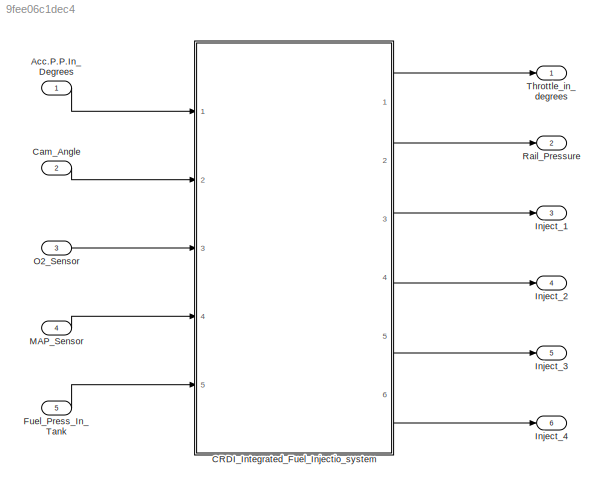
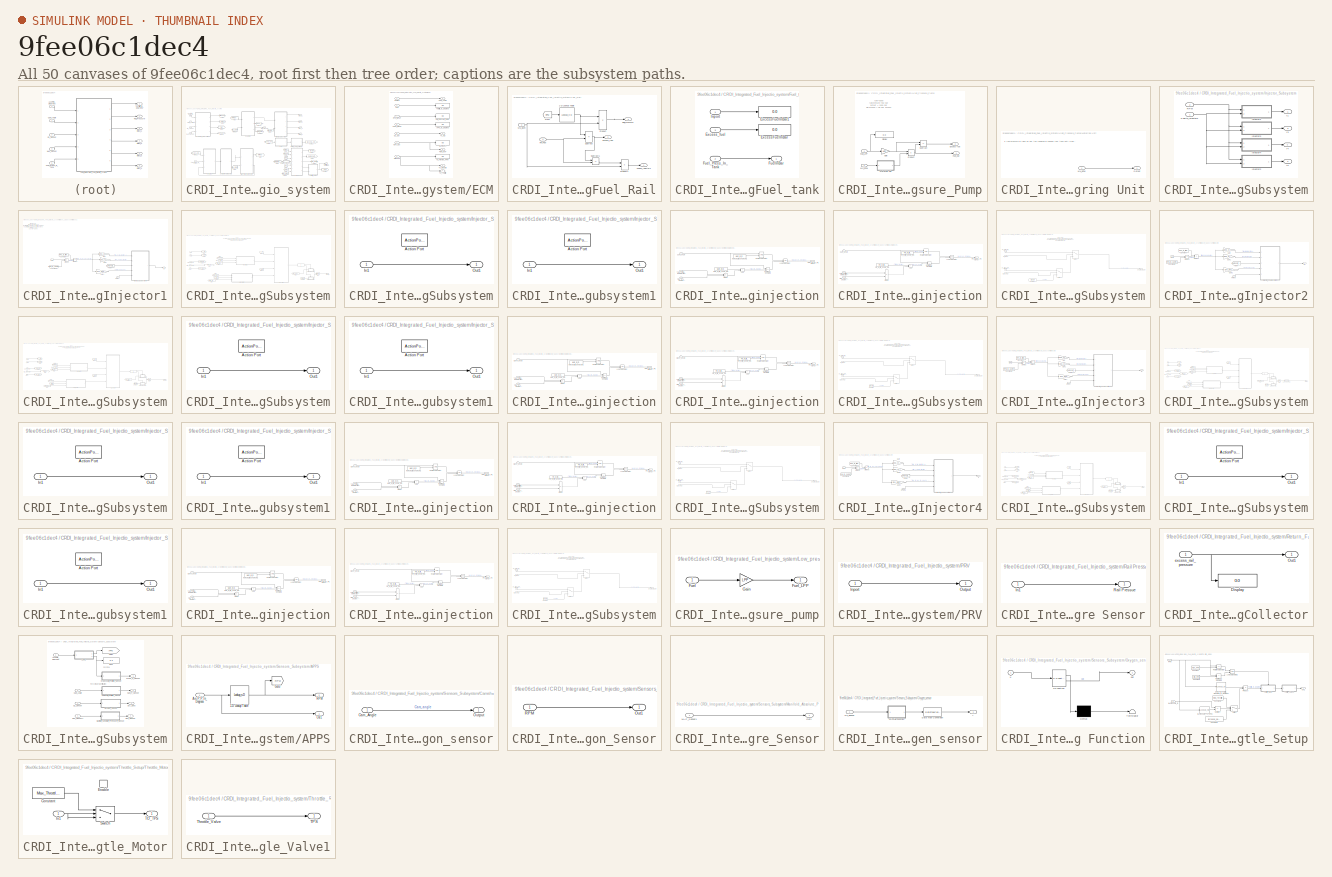
[diagram: thumbnail index - all 50 canvases of the model, root first then tree order]
MODEL slx_9fee06c1dec4
KIND model
CONFIG AbsTol = auto
CONFIG EnableMultiTasking = off
CONFIG FixedStep = 0.2
CONFIG MaxStep = auto
CONFIG MinStep = auto
CONFIG RelTol = 1e-3
CONFIG SampleTimeConstraint = Unconstrained
CONFIG SolverName = FixedStepDiscrete
CONFIG StartTime = 0.0
CONFIG StopTime = 10
BLOCK [Inport] Acc.P.P.In_Degrees
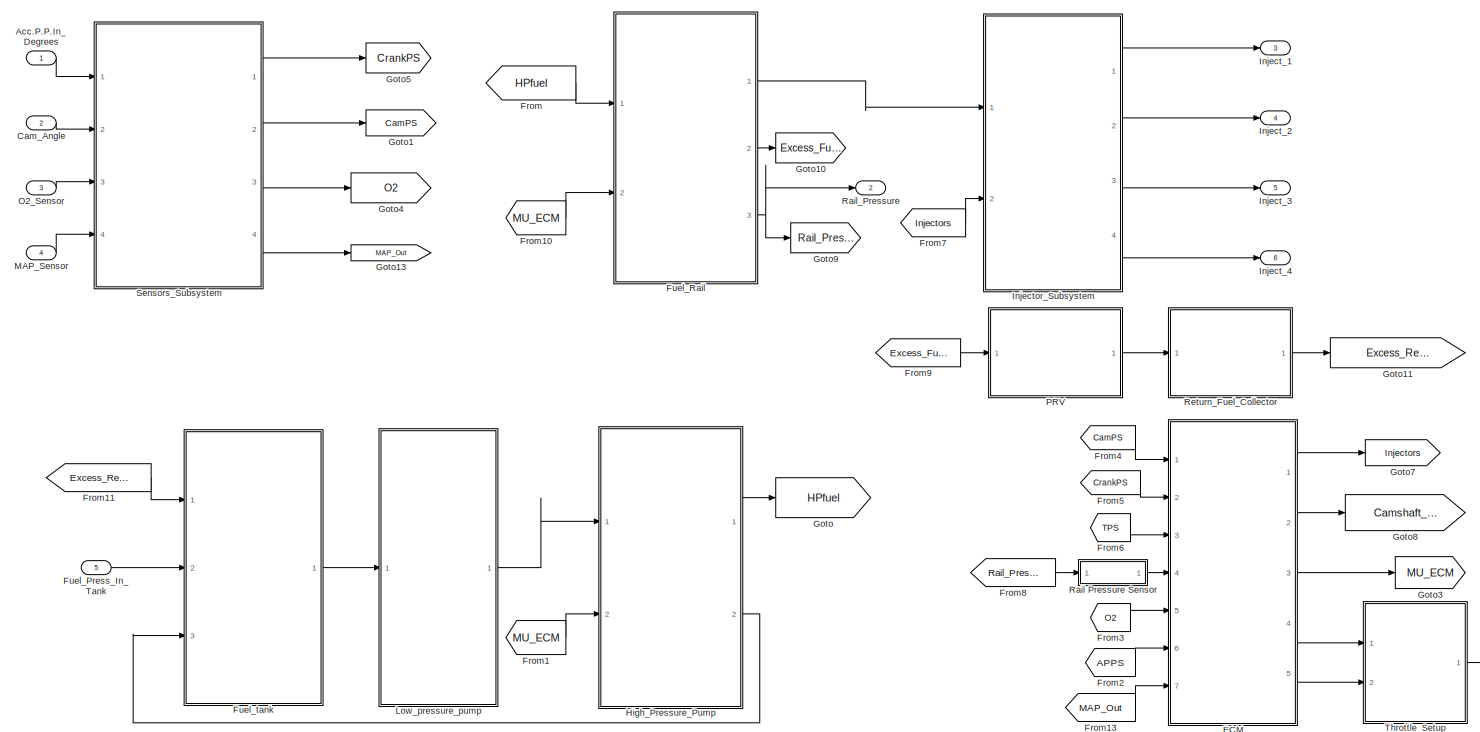
[diagram: CRDI_Integrated_Fuel_Injectio_system - part 1/2, most of the canvas]
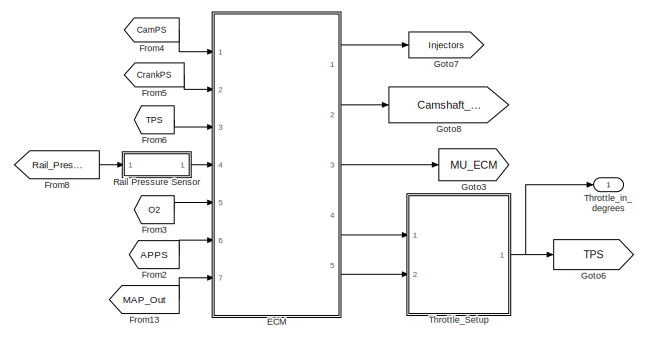
[diagram: CRDI_Integrated_Fuel_Injectio_system - part 2/2, bottom right region]
BLOCK [SubSystem] CRDI_Integrated_Fuel_Injectio_system
  Ports = [5, 6]
  RequestExecContextInheritance = off
  TreatAsAtomicUnit = on
BLOCK [Inport] CRDI_Integrated_Fuel_Injectio_system/Acc.P.P.In_Degrees
  OutDataTypeStr = single
BLOCK [Inport] CRDI_Integrated_Fuel_Injectio_system/Cam_Angle
  OutDataTypeStr = single
  Port = 2
BLOCK [SubSystem] CRDI_Integrated_Fuel_Injectio_system/ECM
  Ports = [7, 5]
  RequestExecContextInheritance = off
BLOCK [Inport] CRDI_Integrated_Fuel_Injectio_system/ECM/APPS_INPUT
  OutDataTypeStr = single
  Port = 6
BLOCK [Display] CRDI_Integrated_Fuel_Injectio_system/ECM/APPS_In_Degrees
  Decimation = 1
  Ports = [1]
BLOCK [Inport] CRDI_Integrated_Fuel_Injectio_system/ECM/CamPS
  OutDataTypeStr = single
BLOCK [Outport] CRDI_Integrated_Fuel_Injectio_system/ECM/Cam_Angle
  OutDataTypeStr = single
  Port = 2
BLOCK [Inport] CRDI_Integrated_Fuel_Injectio_system/ECM/CrankPS
  OutDataTypeStr = single
  Port = 2
BLOCK [Outport] CRDI_Integrated_Fuel_Injectio_system/ECM/From_MAP
  OutDataTypeStr = single
  Port = 5
BLOCK [Display] CRDI_Integrated_Fuel_Injectio_system/ECM/MAPInKPA
  Decimation = 1
  Ports = [1]
BLOCK [Inport] CRDI_Integrated_Fuel_Injectio_system/ECM/MAP_Out
  OutDataTypeStr = single
  Port = 7
BLOCK [Inport] CRDI_Integrated_Fuel_Injectio_system/ECM/O2_Out
  OutDataTypeStr = single
  Port = 5
BLOCK [Inport] CRDI_Integrated_Fuel_Injectio_system/ECM/RPS_INPUT
  OutDataTypeStr = single
  Port = 4
BLOCK [Display] CRDI_Integrated_Fuel_Injectio_system/ECM/Rail_Pressure_InBar
  Decimation = 1
  Ports = [1]
BLOCK [Display] CRDI_Integrated_Fuel_Injectio_system/ECM/TO_Provide_RPM
  Decimation = 1
  Ports = [1]
BLOCK [Inport] CRDI_Integrated_Fuel_Injectio_system/ECM/TPS
  OutDataTypeStr = single
  Port = 3
BLOCK [Display] CRDI_Integrated_Fuel_Injectio_system/ECM/Throttle_In_Degrees
  Decimation = 1
  Ports = [1]
BLOCK [Outport] CRDI_Integrated_Fuel_Injectio_system/ECM/To_Injectors
  OutDataTypeStr = single
BLOCK [Outport] CRDI_Integrated_Fuel_Injectio_system/ECM/To_MU
  OutDataTypeStr = single
  Port = 3
BLOCK [Outport] CRDI_Integrated_Fuel_Injectio_system/ECM/To_Throttle
  OutDataTypeStr = single
  Port = 4
BLOCK [From] CRDI_Integrated_Fuel_Injectio_system/From
  GotoTag = HPfuel
BLOCK [From] CRDI_Integrated_Fuel_Injectio_system/From1
  GotoTag = MU_ECM
  TagVisibility = global
BLOCK [From] CRDI_Integrated_Fuel_Injectio_system/From10
  GotoTag = MU_ECM
  TagVisibility = global
BLOCK [From] CRDI_Integrated_Fuel_Injectio_system/From11
  GotoTag = Excess_Return_fuel
BLOCK [From] CRDI_Integrated_Fuel_Injectio_system/From13
  GotoTag = MAP_Out
BLOCK [From] CRDI_Integrated_Fuel_Injectio_system/From2
  GotoTag = APPS
  TagVisibility = global
BLOCK [From] CRDI_Integrated_Fuel_Injectio_system/From3
  GotoTag = O2
BLOCK [From] CRDI_Integrated_Fuel_Injectio_system/From4
  GotoTag = CamPS
BLOCK [From] CRDI_Integrated_Fuel_Injectio_system/From5
  GotoTag = CrankPS
BLOCK [From] CRDI_Integrated_Fuel_Injectio_system/From6
  GotoTag = TPS
BLOCK [From] CRDI_Integrated_Fuel_Injectio_system/From7
  GotoTag = Injectors
BLOCK [From] CRDI_Integrated_Fuel_Injectio_system/From8
  GotoTag = Rail_Pressure
  TagVisibility = global
BLOCK [From] CRDI_Integrated_Fuel_Injectio_system/From9
  GotoTag = Excess_Fuel
  TagVisibility = global
BLOCK [Inport] CRDI_Integrated_Fuel_Injectio_system/Fuel_Press_In_Tank
  OutDataTypeStr = single
  Port = 5
BLOCK [SubSystem] CRDI_Integrated_Fuel_Injectio_system/Fuel_Rail
  Ports = [2, 3]
  RequestExecContextInheritance = off
BLOCK [Lookup_n-D] CRDI_Integrated_Fuel_Injectio_system/Fuel_Rail/1-D Lookup Table
  BreakpointsForDimension1 = [600\n730\n860\n990\n1120\n1250\n1380\n1510\n1640\n1770\n1900\n2030\n2160\n2290\n2420\n2550\n2680\n2810\n2940\n3070\n3200\n3330\n3460\n3590\n3720\n3850\n3980\n4110\n4240\n4370\n4500\n4630\n4760\n4890\n5020\n5150\n5280\n5410\n5540\n5670\n5800\n6000]  <repeated x3 — deduplicated; at blocks: 1-D Lookup Table, MAPressure_To_RPM, RPM_TO_Throttle_Opening_In_Degrees>
  InputPortMap = u0
  InternalRulePriority = Speed
  NumberOfTableDimensions = 1
  Ports = [1, 1]
  RndMeth = Simplest
  Table = [300\n332\n364\n396\n428\n460\n492\n524\n556\n588\n620\n652\n684\n716\n748\n780\n812\n844\n876\n908\n940\n972\n1004\n1036\n1068\n1100\n1132\n1164\n1196\n1228\n1260\n1292\n1324\n1356\n1388\n1420\n1452\n1484\n1516\n1548\n1580\n1600]
BLOCK [From] CRDI_Integrated_Fuel_Injectio_system/Fuel_Rail/From
  GotoTag = RPM
  TagVisibility = global
BLOCK [Outport] CRDI_Integrated_Fuel_Injectio_system/Fuel_Rail/FuelTo_Injectors
  OutDataTypeStr = single
BLOCK [Inport] CRDI_Integrated_Fuel_Injectio_system/Fuel_Rail/HP_Fuel
  OutDataTypeStr = single
BLOCK [Inport] CRDI_Integrated_Fuel_Injectio_system/Fuel_Rail/Mu_Ecm
  OutDataTypeStr = single
  Port = 2
BLOCK [Product] CRDI_Integrated_Fuel_Injectio_system/Fuel_Rail/Product
  Ports = [2, 1]
BLOCK [Product] CRDI_Integrated_Fuel_Injectio_system/Fuel_Rail/Product1
  Ports = [2, 1]
BLOCK [Outport] CRDI_Integrated_Fuel_Injectio_system/Fuel_Rail/Rail_Pressure
  OutDataTypeStr = single
  Port = 3
BLOCK [Sum] CRDI_Integrated_Fuel_Injectio_system/Fuel_Rail/Subtract
  IconShape = rectangular
  Inputs = -+
  Ports = [2, 1]
BLOCK [Sum] CRDI_Integrated_Fuel_Injectio_system/Fuel_Rail/Subtract1
  IconShape = rectangular
  Inputs = -+
  Ports = [2, 1]
BLOCK [Outport] CRDI_Integrated_Fuel_Injectio_system/Fuel_Rail/excess_fuel
  OutDataTypeStr = single
  Port = 2
BLOCK [SubSystem] CRDI_Integrated_Fuel_Injectio_system/Fuel_tank
  Ports = [3, 1]
  RequestExecContextInheritance = off
BLOCK [Display] CRDI_Integrated_Fuel_Injectio_system/Fuel_tank/ExcessFuelInBar
  Decimation = 1
  Ports = [1]
BLOCK [Display] CRDI_Integrated_Fuel_Injectio_system/Fuel_tank/ExcessFuelInBar1
  Decimation = 1
  Ports = [1]
BLOCK [Inport] CRDI_Integrated_Fuel_Injectio_system/Fuel_tank/Excess_fuel
  OutDataTypeStr = single
  Port = 3
BLOCK [Outport] CRDI_Integrated_Fuel_Injectio_system/Fuel_tank/FuelInBar
  OutDataTypeStr = single
BLOCK [Inport] CRDI_Integrated_Fuel_Injectio_system/Fuel_tank/Fuel_Press_In_Tank
  OutDataTypeStr = single
  Port = 2
BLOCK [Inport] CRDI_Integrated_Fuel_Injectio_system/Fuel_tank/Inport
  OutDataTypeStr = single
BLOCK [Goto] CRDI_Integrated_Fuel_Injectio_system/Goto
  GotoTag = HPfuel
BLOCK [Goto] CRDI_Integrated_Fuel_Injectio_system/Goto1
  GotoTag = CamPS
BLOCK [Goto] CRDI_Integrated_Fuel_Injectio_system/Goto10
  GotoTag = Excess_Fuel
  TagVisibility = global
BLOCK [Goto] CRDI_Integrated_Fuel_Injectio_system/Goto11
  GotoTag = Excess_Return_fuel
BLOCK [Goto] CRDI_Integrated_Fuel_Injectio_system/Goto13
  GotoTag = MAP_Out
BLOCK [Goto] CRDI_Integrated_Fuel_Injectio_system/Goto3
  GotoTag = MU_ECM
  TagVisibility = global
BLOCK [Goto] CRDI_Integrated_Fuel_Injectio_system/Goto4
  GotoTag = O2
BLOCK [Goto] CRDI_Integrated_Fuel_Injectio_system/Goto5
  GotoTag = CrankPS
  NameLocation = top
BLOCK [Goto] CRDI_Integrated_Fuel_Injectio_system/Goto6
  GotoTag = TPS
BLOCK [Goto] CRDI_Integrated_Fuel_Injectio_system/Goto7
  GotoTag = Injectors
BLOCK [Goto] CRDI_Integrated_Fuel_Injectio_system/Goto8
  GotoTag = Camshaft_angle
  TagVisibility = global
BLOCK [Goto] CRDI_Integrated_Fuel_Injectio_system/Goto9
  GotoTag = Rail_Pressure
  TagVisibility = global
BLOCK [SubSystem] CRDI_Integrated_Fuel_Injectio_system/High_Pressure_Pump
  Ports = [2, 2]
  RequestExecContextInheritance = off
BLOCK [Display] CRDI_Integrated_Fuel_Injectio_system/High_Pressure_Pump/Display
  Decimation = 1
  Ports = [1]
BLOCK [Outport] CRDI_Integrated_Fuel_Injectio_system/High_Pressure_Pump/Excess fuel
  OutDataTypeStr = single
  Port = 2
BLOCK [Inport] CRDI_Integrated_Fuel_Injectio_system/High_Pressure_Pump/Fuel_LPP
  OutDataTypeStr = single
BLOCK [Outport] CRDI_Integrated_Fuel_Injectio_system/High_Pressure_Pump/Fuel_Out
  OutDataTypeStr = single
BLOCK [Gain] CRDI_Integrated_Fuel_Injectio_system/High_Pressure_Pump/Gain
  Gain = HPP
  OutDataTypeStr = single
BLOCK [Inport] CRDI_Integrated_Fuel_Injectio_system/High_Pressure_Pump/MU_ECM
  OutDataTypeStr = single
  Port = 2
BLOCK [SubSystem] CRDI_Integrated_Fuel_Injectio_system/High_Pressure_Pump/Metering Unit
  Ports = [1, 1]
  RequestExecContextInheritance = off
BLOCK [Inport] CRDI_Integrated_Fuel_Injectio_system/High_Pressure_Pump/Metering Unit/MU_ECM
  OutDataTypeStr = single
BLOCK [Outport] CRDI_Integrated_Fuel_Injectio_system/High_Pressure_Pump/Metering Unit/Output
  OutDataTypeStr = single
BLOCK [Product] CRDI_Integrated_Fuel_Injectio_system/High_Pressure_Pump/Product
  OutDataTypeStr = single
  Ports = [2, 1]
BLOCK [Sum] CRDI_Integrated_Fuel_Injectio_system/High_Pressure_Pump/Subtract
  IconShape = rectangular
  Inputs = +-
  OutDataTypeStr = single
  Ports = [2, 1]
BLOCK [Outport] CRDI_Integrated_Fuel_Injectio_system/Inject_1
  OutDataTypeStr = single
  Port = 3
BLOCK [Outport] CRDI_Integrated_Fuel_Injectio_system/Inject_2
  OutDataTypeStr = single
  Port = 4
BLOCK [Outport] CRDI_Integrated_Fuel_Injectio_system/Inject_3
  OutDataTypeStr = single
  Port = 5
BLOCK [Outport] CRDI_Integrated_Fuel_Injectio_system/Inject_4
  OutDataTypeStr = single
  Port = 6
BLOCK [SubSystem] CRDI_Integrated_Fuel_Injectio_system/Injector_Subsystem
  Ports = [2, 4]
  RequestExecContextInheritance = off
BLOCK [Inport] CRDI_Integrated_Fuel_Injectio_system/Injector_Subsystem/Fuelto_Injectors
  OutDataTypeStr = single
BLOCK [Outport] CRDI_Integrated_Fuel_Injectio_system/Injector_Subsystem/I1
  OutDataTypeStr = single
BLOCK [Outport] CRDI_Integrated_Fuel_Injectio_system/Injector_Subsystem/I2
  OutDataTypeStr = single
  Port = 2
BLOCK [Outport] CRDI_Integrated_Fuel_Injectio_system/Injector_Subsystem/I3
  OutDataTypeStr = single
  Port = 3
BLOCK [Outport] CRDI_Integrated_Fuel_Injectio_system/Injector_Subsystem/I4
  OutDataTypeStr = single
  Port = 4
BLOCK [SubSystem] CRDI_Integrated_Fuel_Injectio_system/Injector_Subsystem/Injector1
  Ports = [2, 1]
  RequestExecContextInheritance = off
BLOCK [Constant] CRDI_Integrated_Fuel_Injectio_system/Injector_Subsystem/Injector1/Constant
  OutDataTypeStr = single
  Value = RPS_to_timeFactor
BLOCK [Constant] CRDI_Integrated_Fuel_Injectio_system/Injector_Subsystem/Injector1/Constant4
  OutDataTypeStr = single
  Value = RPM_to_CamRPS
BLOCK [Product] CRDI_Integrated_Fuel_Injectio_system/Injector_Subsystem/Injector1/Divide2
  Inputs = */
  OutDataTypeStr = single
  Ports = [2, 1]
BLOCK [Product] CRDI_Integrated_Fuel_Injectio_system/Injector_Subsystem/Injector1/Divide3
  Inputs = */
  OutDataTypeStr = single
  Ports = [2, 1]
BLOCK [From] CRDI_Integrated_Fuel_Injectio_system/Injector_Subsystem/Injector1/From4
  GotoTag = Camshaft_angle
  TagVisibility = global
BLOCK [Gain] CRDI_Integrated_Fuel_Injectio_system/Injector_Subsystem/Injector1/Gain
  Gain = Deg_of_Pre_Inj
  OutDataTypeStr = single
BLOCK [Gain] CRDI_Integrated_Fuel_Injectio_system/Injector_Subsystem/Injector1/Gain1
  Gain = Deg_of_Main_Inj
  OutDataTypeStr = single
BLOCK [Gain] CRDI_Integrated_Fuel_Injectio_system/Injector_Subsystem/Injector1/Gain2
  Gain = One_Deg_of_CamRot
  OutDataTypeStr = single
BLOCK [Inport] CRDI_Integrated_Fuel_Injectio_system/Injector_Subsystem/Injector1/HPfuel
  OutDataTypeStr = single
  Port = 2
BLOCK [Outport] CRDI_Integrated_Fuel_Injectio_system/Injector_Subsystem/Injector1/I1
  OutDataTypeStr = single
BLOCK [SubSystem] CRDI_Integrated_Fuel_Injectio_system/Injector_Subsystem/Injector1/Injector_1Subsystem
  Ports = [5, 1]
  RequestExecContextInheritance = off
  TreatAsAtomicUnit = on
BLOCK [Inport] CRDI_Integrated_Fuel_Injectio_system/Injector_Subsystem/Injector1/Injector_1Subsystem/Camshaft_angle
  Port = 3
BLOCK [Constant] CRDI_Integrated_Fuel_Injectio_system/Injector_Subsystem/Injector1/Injector_1Subsystem/Constant
  OutDataTypeStr = single
  Value = Disable
BLOCK [From] CRDI_Integrated_Fuel_Injectio_system/Injector_Subsystem/Injector1/Injector_1Subsystem/From
  GotoTag = T_Pre
BLOCK [From] CRDI_Integrated_Fuel_Injectio_system/Injector_Subsystem/Injector1/Injector_1Subsystem/From1
  GotoTag = T_Main
BLOCK [From] CRDI_Integrated_Fuel_Injectio_system/Injector_Subsystem/Injector1/Injector_1Subsystem/From12
  GotoTag = T_Pre
BLOCK [From] CRDI_Integrated_Fuel_Injectio_system/Injector_Subsystem/Injector1/Injector_1Subsystem/From13
  GotoTag = T_Main
BLOCK [From] CRDI_Integrated_Fuel_Injectio_system/Injector_Subsystem/Injector1/Injector_1Subsystem/From2
  GotoTag = Camshaft_angle
BLOCK [From] CRDI_Integrated_Fuel_Injectio_system/Injector_Subsystem/Injector1/Injector_1Subsystem/From3
  GotoTag = HP_Fuel_In_Bars
BLOCK [From] CRDI_Integrated_Fuel_Injectio_system/Injector_Subsystem/Injector1/Injector_1Subsystem/From4
  GotoTag = Camshaft_angle
BLOCK [From] CRDI_Integrated_Fuel_Injectio_system/Injector_Subsystem/Injector1/Injector_1Subsystem/From6
  GotoTag = Time_for_1_degree
BLOCK [From] CRDI_Integrated_Fuel_Injectio_system/Injector_Subsystem/Injector1/Injector_1Subsystem/From7
  GotoTag = Time_for_1_degree
BLOCK [Goto] CRDI_Integrated_Fuel_Injectio_system/Injector_Subsystem/Injector1/Injector_1Subsystem/Goto
  GotoTag = HP_Fuel_In_Bars
BLOCK [Goto] CRDI_Integrated_Fuel_Injectio_system/Injector_Subsystem/Injector1/Injector_1Subsystem/Goto1
  GotoTag = Time_for_1_degree
BLOCK [Goto] CRDI_Integrated_Fuel_Injectio_system/Injector_Subsystem/Injector1/Injector_1Subsystem/Goto10
  GotoTag = Camshaft_angle
BLOCK [Goto] CRDI_Integrated_Fuel_Injectio_system/Injector_Subsystem/Injector1/Injector_1Subsystem/Goto7
  GotoTag = T_Pre
BLOCK [Goto] CRDI_Integrated_Fuel_Injectio_system/Injector_Subsystem/Injector1/Injector_1Subsystem/Goto8
  GotoTag = T_Main
BLOCK [Inport] CRDI_Integrated_Fuel_Injectio_system/Injector_Subsystem/Injector1/Injector_1Subsystem/HPfuel
  Port = 5
BLOCK [If] CRDI_Integrated_Fuel_Injectio_system/Injector_Subsystem/Injector1/Injector_1Subsystem/If
  ElseIfExpressions = u1==0
  IfExpression = u1~=0
  Ports = [1, 2]
  ShowElse = off
BLOCK [SubSystem] CRDI_Integrated_Fuel_Injectio_system/Injector_Subsystem/Injector1/Injector_1Subsystem/If Action Subsystem
  Ports = [1, 1, 0, 0, 0, 0, 0, 1]
  RequestExecContextInheritance = off
  TreatAsAtomicUnit = on
BLOCK [ActionPort] CRDI_Integrated_Fuel_Injectio_system/Injector_Subsystem/Injector1/Injector_1Subsystem/If Action Subsystem/Action Port
  ActionPortLabel = if(u1~=0)
BLOCK [Inport] CRDI_Integrated_Fuel_Injectio_system/Injector_Subsystem/Injector1/Injector_1Subsystem/If Action Subsystem/In1
  OutDataTypeStr = single
BLOCK [Outport] CRDI_Integrated_Fuel_Injectio_system/Injector_Subsystem/Injector1/Injector_1Subsystem/If Action Subsystem/Out1
  OutDataTypeStr = single
BLOCK [SubSystem] CRDI_Integrated_Fuel_Injectio_system/Injector_Subsystem/Injector1/Injector_1Subsystem/If Action Subsystem1
  Ports = [1, 1, 0, 0, 0, 0, 0, 1]
  RequestExecContextInheritance = off
  TreatAsAtomicUnit = on
BLOCK [ActionPort] CRDI_Integrated_Fuel_Injectio_system/Injector_Subsystem/Injector1/Injector_1Subsystem/If Action Subsystem1/Action Port
  ActionPortLabel = elseif(u1==0)
BLOCK [Inport] CRDI_Integrated_Fuel_Injectio_system/Injector_Subsystem/Injector1/Injector_1Subsystem/If Action Subsystem1/In1
  OutDataTypeStr = single
BLOCK [Outport] CRDI_Integrated_Fuel_Injectio_system/Injector_Subsystem/Injector1/Injector_1Subsystem/If Action Subsystem1/Out1
  OutDataTypeStr = single
BLOCK [Outport] CRDI_Integrated_Fuel_Injectio_system/Injector_Subsystem/Injector1/Injector_1Subsystem/Injector_1
  OutDataTypeStr = single
BLOCK [SubSystem] CRDI_Integrated_Fuel_Injectio_system/Injector_Subsystem/Injector1/Injector_1Subsystem/Main_injection
  Ports = [3, 1]
  RequestExecContextInheritance = off
  TreatAsAtomicUnit = on
BLOCK [Sum] CRDI_Integrated_Fuel_Injectio_system/Injector_Subsystem/Injector1/Injector_1Subsystem/Main_injection/Add
  AccumDataTypeStr = single
  AttributesFormatString = AccumDataTypeStr=%<AccumDataTypeStr>
  IconShape = rectangular
  Ports = [2, 1]
BLOCK [Inport] CRDI_Integrated_Fuel_Injectio_system/Injector_Subsystem/Injector1/Injector_1Subsystem/Main_injection/Cam_angle
  OutDataTypeStr = single
BLOCK [Product] CRDI_Integrated_Fuel_Injectio_system/Injector_Subsystem/Injector1/Injector_1Subsystem/Main_injection/Divide
  Inputs = */
  OutDataTypeStr = single
  Ports = [2, 1]
BLOCK [Logic] CRDI_Integrated_Fuel_Injectio_system/Injector_Subsystem/Injector1/Injector_1Subsystem/Main_injection/Logical Operator
  AllPortsSameDT = off
  OutDataTypeStr = boolean
  Ports = [2, 1]
BLOCK [Constant] CRDI_Integrated_Fuel_Injectio_system/Injector_Subsystem/Injector1/Injector_1Subsystem/Main_injection/Main_Inj_trg_angle_inj1
  Value = Main_Inj_trg_angle_inj1
BLOCK [Constant] CRDI_Integrated_Fuel_Injectio_system/Injector_Subsystem/Injector1/Injector_1Subsystem/Main_injection/Main_Inj_trg_angle_inj2
  Value = Main_Inj_trg_angle_inj1
BLOCK [RelationalOperator] CRDI_Integrated_Fuel_Injectio_system/Injector_Subsystem/Injector1/Injector_1Subsystem/Main_injection/Relational Operator
  InputSameDT = off
  OutDataTypeStr = boolean
  Ports = [2, 1]
  RndMeth = Simplest
BLOCK [RelationalOperator] CRDI_Integrated_Fuel_Injectio_system/Injector_Subsystem/Injector1/Injector_1Subsystem/Main_injection/Relational Operator1
  InputSameDT = off
  Operator = <=
  OutDataTypeStr = boolean
  Ports = [2, 1]
  RndMeth = Simplest
BLOCK [Inport] CRDI_Integrated_Fuel_Injectio_system/Injector_Subsystem/Injector1/Injector_1Subsystem/Main_injection/Time_for_1_Degree
  OutDataTypeStr = single
  Port = 3
BLOCK [Inport] CRDI_Integrated_Fuel_Injectio_system/Injector_Subsystem/Injector1/Injector_1Subsystem/Main_injection/Total_ontime_maininjection
  OutDataTypeStr = single
  Port = 2
BLOCK [Outport] CRDI_Integrated_Fuel_Injectio_system/Injector_Subsystem/Injector1/Injector_1Subsystem/Main_injection/main_inj_on_off_signal
  VectorParamsAs1DForOutWhenUnconnected = off
BLOCK [Merge] CRDI_Integrated_Fuel_Injectio_system/Injector_Subsystem/Injector1/Injector_1Subsystem/Merge
  Ports = [2, 1]
BLOCK [SubSystem] CRDI_Integrated_Fuel_Injectio_system/Injector_Subsystem/Injector1/Injector_1Subsystem/Pre_injection
  Ports = [3, 1]
  RequestExecContextInheritance = off
  TreatAsAtomicUnit = on
BLOCK [Sum] CRDI_Integrated_Fuel_Injectio_system/Injector_Subsystem/Injector1/Injector_1Subsystem/Pre_injection/Add
  AccumDataTypeStr = single
  AttributesFormatString = AccumDataTypeStr=%<AccumDataTypeStr>
  IconShape = rectangular
  Ports = [2, 1]
BLOCK [Inport] CRDI_Integrated_Fuel_Injectio_system/Injector_Subsystem/Injector1/Injector_1Subsystem/Pre_injection/Cam_angle
  OutDataTypeStr = single
BLOCK [Product] CRDI_Integrated_Fuel_Injectio_system/Injector_Subsystem/Injector1/Injector_1Subsystem/Pre_injection/Divide
  Inputs = */
  OutDataTypeStr = single
  Ports = [2, 1]
BLOCK [Logic] CRDI_Integrated_Fuel_Injectio_system/Injector_Subsystem/Injector1/Injector_1Subsystem/Pre_injection/Logical Operator
  AllPortsSameDT = off
  OutDataTypeStr = boolean
  Ports = [2, 1]
BLOCK [Constant] CRDI_Integrated_Fuel_Injectio_system/Injector_Subsystem/Injector1/Injector_1Subsystem/Pre_injection/Pre_Inj_trg_angle_inj1
  Value = Pre_Inj_trg_angle_inj1
BLOCK [Constant] CRDI_Integrated_Fuel_Injectio_system/Injector_Subsystem/Injector1/Injector_1Subsystem/Pre_injection/Pre_Inj_trg_angle_inj3
  Value = Pre_Inj_trg_angle_inj1
BLOCK [RelationalOperator] CRDI_Integrated_Fuel_Injectio_system/Injector_Subsystem/Injector1/Injector_1Subsystem/Pre_injection/Relational Operator
  InputSameDT = off
  OutDataTypeStr = boolean
  Ports = [2, 1]
  RndMeth = Simplest
BLOCK [RelationalOperator] CRDI_Integrated_Fuel_Injectio_system/Injector_Subsystem/Injector1/Injector_1Subsystem/Pre_injection/Relational Operator1
  InputSameDT = off
  Operator = <=
  OutDataTypeStr = boolean
  Ports = [2, 1]
  RndMeth = Simplest
BLOCK [Inport] CRDI_Integrated_Fuel_Injectio_system/Injector_Subsystem/Injector1/Injector_1Subsystem/Pre_injection/Time_For_1_Degree
  OutDataTypeStr = single
  Port = 3
BLOCK [Inport] CRDI_Integrated_Fuel_Injectio_system/Injector_Subsystem/Injector1/Injector_1Subsystem/Pre_injection/Total_ontime_preinjection
  OutDataTypeStr = single
  Port = 2
BLOCK [Outport] CRDI_Integrated_Fuel_Injectio_system/Injector_Subsystem/Injector1/Injector_1Subsystem/Pre_injection/pre_inj_on_off_signal
  VectorParamsAs1DForOutWhenUnconnected = off
BLOCK [SubSystem] CRDI_Integrated_Fuel_Injectio_system/Injector_Subsystem/Injector1/Injector_1Subsystem/Subsystem
  Ports = [4, 1]
  RequestExecContextInheritance = off
BLOCK [Constant] CRDI_Integrated_Fuel_Injectio_system/Injector_Subsystem/Injector1/Injector_1Subsystem/Subsystem/Constant
  OutDataTypeStr = single
  Value = Disable
BLOCK [Outport] CRDI_Integrated_Fuel_Injectio_system/Injector_Subsystem/Injector1/Injector_1Subsystem/Subsystem/Enable_Disable
  OutDataTypeStr = single
  VectorParamsAs1DForOutWhenUnconnected = off
BLOCK [Inport] CRDI_Integrated_Fuel_Injectio_system/Injector_Subsystem/Injector1/Injector_1Subsystem/Subsystem/Main_Pulse
  Port = 4
BLOCK [Inport] CRDI_Integrated_Fuel_Injectio_system/Injector_Subsystem/Injector1/Injector_1Subsystem/Subsystem/On_Time_Main_Injection
  Port = 3
BLOCK [Inport] CRDI_Integrated_Fuel_Injectio_system/Injector_Subsystem/Injector1/Injector_1Subsystem/Subsystem/On_Time_Pre_Injection
BLOCK [Inport] CRDI_Integrated_Fuel_Injectio_system/Injector_Subsystem/Injector1/Injector_1Subsystem/Subsystem/Pre_Pulse
  Port = 2
BLOCK [Switch] CRDI_Integrated_Fuel_Injectio_system/Injector_Subsystem/Injector1/Injector_1Subsystem/Subsystem/Switch1
  Criteria = u2 ~= 0
  InputSameDT = off
  SaturateOnIntegerOverflow = off
BLOCK [Switch] CRDI_Integrated_Fuel_Injectio_system/Injector_Subsystem/Injector1/Injector_1Subsystem/Subsystem/Switch2
  Criteria = u2 ~= 0
  InputSameDT = off
  SaturateOnIntegerOverflow = off
BLOCK [Inport] CRDI_Integrated_Fuel_Injectio_system/Injector_Subsystem/Injector1/Injector_1Subsystem/T_Main
  Port = 2
BLOCK [Inport] CRDI_Integrated_Fuel_Injectio_system/Injector_Subsystem/Injector1/Injector_1Subsystem/T_Pre
BLOCK [Inport] CRDI_Integrated_Fuel_Injectio_system/Injector_Subsystem/Injector1/Injector_1Subsystem/Time_for_1_degree
  Port = 4
BLOCK [Inport] CRDI_Integrated_Fuel_Injectio_system/Injector_Subsystem/Injector1/RPM
  OutDataTypeStr = single
BLOCK [SubSystem] CRDI_Integrated_Fuel_Injectio_system/Injector_Subsystem/Injector2
  Ports = [2, 1]
  RequestExecContextInheritance = off
BLOCK [Constant] CRDI_Integrated_Fuel_Injectio_system/Injector_Subsystem/Injector2/Constant
  OutDataTypeStr = single
  Value = RPS_to_timeFactor
BLOCK [Constant] CRDI_Integrated_Fuel_Injectio_system/Injector_Subsystem/Injector2/Constant4
  OutDataTypeStr = single
  Value = RPM_to_CamRPS
BLOCK [Product] CRDI_Integrated_Fuel_Injectio_system/Injector_Subsystem/Injector2/Divide2
  Inputs = */
  OutDataTypeStr = single
  Ports = [2, 1]
BLOCK [Product] CRDI_Integrated_Fuel_Injectio_system/Injector_Subsystem/Injector2/Divide3
  Inputs = */
  OutDataTypeStr = single
  Ports = [2, 1]
BLOCK [From] CRDI_Integrated_Fuel_Injectio_system/Injector_Subsystem/Injector2/From4
  GotoTag = Camshaft_angle
  TagVisibility = global
BLOCK [Gain] CRDI_Integrated_Fuel_Injectio_system/Injector_Subsystem/Injector2/Gain
  Gain = Deg_of_Pre_Inj
  OutDataTypeStr = single
BLOCK [Gain] CRDI_Integrated_Fuel_Injectio_system/Injector_Subsystem/Injector2/Gain1
  Gain = Deg_of_Main_Inj
  OutDataTypeStr = single
BLOCK [Gain] CRDI_Integrated_Fuel_Injectio_system/Injector_Subsystem/Injector2/Gain2
  Gain = One_Deg_of_CamRot
  OutDataTypeStr = single
BLOCK [Inport] CRDI_Integrated_Fuel_Injectio_system/Injector_Subsystem/Injector2/HPfuel
  OutDataTypeStr = single
  Port = 2
BLOCK [Outport] CRDI_Integrated_Fuel_Injectio_system/Injector_Subsystem/Injector2/I2
  OutDataTypeStr = single
BLOCK [SubSystem] CRDI_Integrated_Fuel_Injectio_system/Injector_Subsystem/Injector2/Injector_2Subsystem
  Ports = [5, 1]
  RequestExecContextInheritance = off
  TreatAsAtomicUnit = on
BLOCK [Inport] CRDI_Integrated_Fuel_Injectio_system/Injector_Subsystem/Injector2/Injector_2Subsystem/Camshaft_angle
  Port = 3
BLOCK [Constant] CRDI_Integrated_Fuel_Injectio_system/Injector_Subsystem/Injector2/Injector_2Subsystem/Constant
  OutDataTypeStr = single
  Value = Disable
BLOCK [From] CRDI_Integrated_Fuel_Injectio_system/Injector_Subsystem/Injector2/Injector_2Subsystem/From
  GotoTag = T_Pre
BLOCK [From] CRDI_Integrated_Fuel_Injectio_system/Injector_Subsystem/Injector2/Injector_2Subsystem/From1
  GotoTag = T_Main
BLOCK [From] CRDI_Integrated_Fuel_Injectio_system/Injector_Subsystem/Injector2/Injector_2Subsystem/From12
  GotoTag = T_Pre
BLOCK [From] CRDI_Integrated_Fuel_Injectio_system/Injector_Subsystem/Injector2/Injector_2Subsystem/From13
  GotoTag = T_Main
BLOCK [From] CRDI_Integrated_Fuel_Injectio_system/Injector_Subsystem/Injector2/Injector_2Subsystem/From2
  GotoTag = Camshaft_angle
BLOCK [From] CRDI_Integrated_Fuel_Injectio_system/Injector_Subsystem/Injector2/Injector_2Subsystem/From3
  GotoTag = HP_Fuel_In_Bars
BLOCK [From] CRDI_Integrated_Fuel_Injectio_system/Injector_Subsystem/Injector2/Injector_2Subsystem/From4
  GotoTag = Camshaft_angle
BLOCK [From] CRDI_Integrated_Fuel_Injectio_system/Injector_Subsystem/Injector2/Injector_2Subsystem/From6
  GotoTag = Time_for_1_degree
BLOCK [From] CRDI_Integrated_Fuel_Injectio_system/Injector_Subsystem/Injector2/Injector_2Subsystem/From7
  GotoTag = Time_for_1_degree
BLOCK [Goto] CRDI_Integrated_Fuel_Injectio_system/Injector_Subsystem/Injector2/Injector_2Subsystem/Goto
  GotoTag = HP_Fuel_In_Bars
BLOCK [Goto] CRDI_Integrated_Fuel_Injectio_system/Injector_Subsystem/Injector2/Injector_2Subsystem/Goto1
  GotoTag = Time_for_1_degree
BLOCK [Goto] CRDI_Integrated_Fuel_Injectio_system/Injector_Subsystem/Injector2/Injector_2Subsystem/Goto10
  GotoTag = Camshaft_angle
BLOCK [Goto] CRDI_Integrated_Fuel_Injectio_system/Injector_Subsystem/Injector2/Injector_2Subsystem/Goto7
  GotoTag = T_Pre
BLOCK [Goto] CRDI_Integrated_Fuel_Injectio_system/Injector_Subsystem/Injector2/Injector_2Subsystem/Goto8
  GotoTag = T_Main
BLOCK [Inport] CRDI_Integrated_Fuel_Injectio_system/Injector_Subsystem/Injector2/Injector_2Subsystem/HPfuel
  Port = 5
BLOCK [If] CRDI_Integrated_Fuel_Injectio_system/Injector_Subsystem/Injector2/Injector_2Subsystem/If
  ElseIfExpressions = u1==0
  IfExpression = u1~=0
  Ports = [1, 2]
  ShowElse = off
BLOCK [SubSystem] CRDI_Integrated_Fuel_Injectio_system/Injector_Subsystem/Injector2/Injector_2Subsystem/If Action Subsystem
  Ports = [1, 1, 0, 0, 0, 0, 0, 1]
  RequestExecContextInheritance = off
  TreatAsAtomicUnit = on
BLOCK [ActionPort] CRDI_Integrated_Fuel_Injectio_system/Injector_Subsystem/Injector2/Injector_2Subsystem/If Action Subsystem/Action Port
  ActionPortLabel = if(u1~=0)
BLOCK [Inport] CRDI_Integrated_Fuel_Injectio_system/Injector_Subsystem/Injector2/Injector_2Subsystem/If Action Subsystem/In1
  OutDataTypeStr = single
BLOCK [Outport] CRDI_Integrated_Fuel_Injectio_system/Injector_Subsystem/Injector2/Injector_2Subsystem/If Action Subsystem/Out1
  OutDataTypeStr = single
BLOCK [SubSystem] CRDI_Integrated_Fuel_Injectio_system/Injector_Subsystem/Injector2/Injector_2Subsystem/If Action Subsystem1
  Ports = [1, 1, 0, 0, 0, 0, 0, 1]
  RequestExecContextInheritance = off
  TreatAsAtomicUnit = on
BLOCK [ActionPort] CRDI_Integrated_Fuel_Injectio_system/Injector_Subsystem/Injector2/Injector_2Subsystem/If Action Subsystem1/Action Port
  ActionPortLabel = elseif(u1==0)
BLOCK [Inport] CRDI_Integrated_Fuel_Injectio_system/Injector_Subsystem/Injector2/Injector_2Subsystem/If Action Subsystem1/In1
  OutDataTypeStr = single
BLOCK [Outport] CRDI_Integrated_Fuel_Injectio_system/Injector_Subsystem/Injector2/Injector_2Subsystem/If Action Subsystem1/Out1
  OutDataTypeStr = single
BLOCK [Outport] CRDI_Integrated_Fuel_Injectio_system/Injector_Subsystem/Injector2/Injector_2Subsystem/Injector_1
BLOCK [SubSystem] CRDI_Integrated_Fuel_Injectio_system/Injector_Subsystem/Injector2/Injector_2Subsystem/Main_injection
  Ports = [3, 1]
  RequestExecContextInheritance = off
  TreatAsAtomicUnit = on
BLOCK [Sum] CRDI_Integrated_Fuel_Injectio_system/Injector_Subsystem/Injector2/Injector_2Subsystem/Main_injection/Add
  AccumDataTypeStr = single
  AttributesFormatString = AccumDataTypeStr=%<AccumDataTypeStr>
  IconShape = rectangular
  Ports = [2, 1]
BLOCK [Inport] CRDI_Integrated_Fuel_Injectio_system/Injector_Subsystem/Injector2/Injector_2Subsystem/Main_injection/Crank_angle
  OutDataTypeStr = single
BLOCK [Product] CRDI_Integrated_Fuel_Injectio_system/Injector_Subsystem/Injector2/Injector_2Subsystem/Main_injection/Divide
  Inputs = */
  OutDataTypeStr = single
  Ports = [2, 1]
BLOCK [Logic] CRDI_Integrated_Fuel_Injectio_system/Injector_Subsystem/Injector2/Injector_2Subsystem/Main_injection/Logical Operator
  AllPortsSameDT = off
  OutDataTypeStr = boolean
  Ports = [2, 1]
BLOCK [Constant] CRDI_Integrated_Fuel_Injectio_system/Injector_Subsystem/Injector2/Injector_2Subsystem/Main_injection/Main_Inj_trg_angle_inj1
  Value = Main_Inj_trg_angle_inj2
BLOCK [Constant] CRDI_Integrated_Fuel_Injectio_system/Injector_Subsystem/Injector2/Injector_2Subsystem/Main_injection/Main_Inj_trg_angle_inj2
  Value = Main_Inj_trg_angle_inj2
BLOCK [RelationalOperator] CRDI_Integrated_Fuel_Injectio_system/Injector_Subsystem/Injector2/Injector_2Subsystem/Main_injection/Relational Operator
  InputSameDT = off
  OutDataTypeStr = boolean
  Ports = [2, 1]
  RndMeth = Simplest
BLOCK [RelationalOperator] CRDI_Integrated_Fuel_Injectio_system/Injector_Subsystem/Injector2/Injector_2Subsystem/Main_injection/Relational Operator1
  InputSameDT = off
  Operator = <=
  OutDataTypeStr = boolean
  Ports = [2, 1]
  RndMeth = Simplest
BLOCK [Inport] CRDI_Integrated_Fuel_Injectio_system/Injector_Subsystem/Injector2/Injector_2Subsystem/Main_injection/Time_for_1_Degree
  OutDataTypeStr = single
  Port = 3
BLOCK [Inport] CRDI_Integrated_Fuel_Injectio_system/Injector_Subsystem/Injector2/Injector_2Subsystem/Main_injection/Total_ontime_maininjection
  OutDataTypeStr = single
  Port = 2
BLOCK [Outport] CRDI_Integrated_Fuel_Injectio_system/Injector_Subsystem/Injector2/Injector_2Subsystem/Main_injection/main_inj_on_off_signal
  VectorParamsAs1DForOutWhenUnconnected = off
BLOCK [Merge] CRDI_Integrated_Fuel_Injectio_system/Injector_Subsystem/Injector2/Injector_2Subsystem/Merge
  Ports = [2, 1]
BLOCK [SubSystem] CRDI_Integrated_Fuel_Injectio_system/Injector_Subsystem/Injector2/Injector_2Subsystem/Pre_injection
  Ports = [3, 1]
  RequestExecContextInheritance = off
  TreatAsAtomicUnit = on
BLOCK [Sum] CRDI_Integrated_Fuel_Injectio_system/Injector_Subsystem/Injector2/Injector_2Subsystem/Pre_injection/Add
  AccumDataTypeStr = single
  AttributesFormatString = AccumDataTypeStr=%<AccumDataTypeStr>
  IconShape = rectangular
  Ports = [2, 1]
BLOCK [Inport] CRDI_Integrated_Fuel_Injectio_system/Injector_Subsystem/Injector2/Injector_2Subsystem/Pre_injection/Crank_angle
  OutDataTypeStr = single
BLOCK [Product] CRDI_Integrated_Fuel_Injectio_system/Injector_Subsystem/Injector2/Injector_2Subsystem/Pre_injection/Divide
  Inputs = */
  OutDataTypeStr = single
  Ports = [2, 1]
BLOCK [Logic] CRDI_Integrated_Fuel_Injectio_system/Injector_Subsystem/Injector2/Injector_2Subsystem/Pre_injection/Logical Operator
  AllPortsSameDT = off
  OutDataTypeStr = boolean
  Ports = [2, 1]
BLOCK [Constant] CRDI_Integrated_Fuel_Injectio_system/Injector_Subsystem/Injector2/Injector_2Subsystem/Pre_injection/Pre_Inj_trg_angle_inj1
  Value = Pre_Inj_trg_angle_inj2
BLOCK [Constant] CRDI_Integrated_Fuel_Injectio_system/Injector_Subsystem/Injector2/Injector_2Subsystem/Pre_injection/Pre_Inj_trg_angle_inj2
  Value = Pre_Inj_trg_angle_inj2
BLOCK [RelationalOperator] CRDI_Integrated_Fuel_Injectio_system/Injector_Subsystem/Injector2/Injector_2Subsystem/Pre_injection/Relational Operator
  InputSameDT = off
  OutDataTypeStr = boolean
  Ports = [2, 1]
  RndMeth = Simplest
BLOCK [RelationalOperator] CRDI_Integrated_Fuel_Injectio_system/Injector_Subsystem/Injector2/Injector_2Subsystem/Pre_injection/Relational Operator1
  InputSameDT = off
  Operator = <=
  OutDataTypeStr = boolean
  Ports = [2, 1]
  RndMeth = Simplest
BLOCK [Inport] CRDI_Integrated_Fuel_Injectio_system/Injector_Subsystem/Injector2/Injector_2Subsystem/Pre_injection/Time_For_1_Degree
  OutDataTypeStr = single
  Port = 3
BLOCK [Inport] CRDI_Integrated_Fuel_Injectio_system/Injector_Subsystem/Injector2/Injector_2Subsystem/Pre_injection/Total_ontime_preinjection
  OutDataTypeStr = single
  Port = 2
BLOCK [Outport] CRDI_Integrated_Fuel_Injectio_system/Injector_Subsystem/Injector2/Injector_2Subsystem/Pre_injection/pre_inj_on_off_signal
  VectorParamsAs1DForOutWhenUnconnected = off
BLOCK [SubSystem] CRDI_Integrated_Fuel_Injectio_system/Injector_Subsystem/Injector2/Injector_2Subsystem/Subsystem
  Ports = [4, 1]
  RequestExecContextInheritance = off
BLOCK [Constant] CRDI_Integrated_Fuel_Injectio_system/Injector_Subsystem/Injector2/Injector_2Subsystem/Subsystem/Constant
  Value = Disable
BLOCK [Outport] CRDI_Integrated_Fuel_Injectio_system/Injector_Subsystem/Injector2/Injector_2Subsystem/Subsystem/Enable_Disable
  VectorParamsAs1DForOutWhenUnconnected = off
BLOCK [Inport] CRDI_Integrated_Fuel_Injectio_system/Injector_Subsystem/Injector2/Injector_2Subsystem/Subsystem/Main_Pulse
  Port = 4
BLOCK [Inport] CRDI_Integrated_Fuel_Injectio_system/Injector_Subsystem/Injector2/Injector_2Subsystem/Subsystem/On_Time_Main_Injection
  Port = 3
BLOCK [Inport] CRDI_Integrated_Fuel_Injectio_system/Injector_Subsystem/Injector2/Injector_2Subsystem/Subsystem/On_Time_Pre_Injection
BLOCK [Inport] CRDI_Integrated_Fuel_Injectio_system/Injector_Subsystem/Injector2/Injector_2Subsystem/Subsystem/Pre_Pulse
  Port = 2
BLOCK [Switch] CRDI_Integrated_Fuel_Injectio_system/Injector_Subsystem/Injector2/Injector_2Subsystem/Subsystem/Switch1
  Criteria = u2 ~= 0
  InputSameDT = off
  SaturateOnIntegerOverflow = off
BLOCK [Switch] CRDI_Integrated_Fuel_Injectio_system/Injector_Subsystem/Injector2/Injector_2Subsystem/Subsystem/Switch2
  Criteria = u2 ~= 0
  InputSameDT = off
  SaturateOnIntegerOverflow = off
BLOCK [Inport] CRDI_Integrated_Fuel_Injectio_system/Injector_Subsystem/Injector2/Injector_2Subsystem/T_Main
  Port = 2
BLOCK [Inport] CRDI_Integrated_Fuel_Injectio_system/Injector_Subsystem/Injector2/Injector_2Subsystem/T_Pre
BLOCK [Inport] CRDI_Integrated_Fuel_Injectio_system/Injector_Subsystem/Injector2/Injector_2Subsystem/Time_for_1_degree
  Port = 4
BLOCK [Inport] CRDI_Integrated_Fuel_Injectio_system/Injector_Subsystem/Injector2/RPM
  OutDataTypeStr = single
BLOCK [SubSystem] CRDI_Integrated_Fuel_Injectio_system/Injector_Subsystem/Injector3
  Ports = [2, 1]
  RequestExecContextInheritance = off
BLOCK [Constant] CRDI_Integrated_Fuel_Injectio_system/Injector_Subsystem/Injector3/Constant
  OutDataTypeStr = single
  Value = RPS_to_timeFactor
BLOCK [Constant] CRDI_Integrated_Fuel_Injectio_system/Injector_Subsystem/Injector3/Constant4
  OutDataTypeStr = single
  Value = RPM_to_CamRPS
BLOCK [Product] CRDI_Integrated_Fuel_Injectio_system/Injector_Subsystem/Injector3/Divide2
  Inputs = */
  OutDataTypeStr = single
  Ports = [2, 1]
BLOCK [Product] CRDI_Integrated_Fuel_Injectio_system/Injector_Subsystem/Injector3/Divide3
  Inputs = */
  OutDataTypeStr = single
  Ports = [2, 1]
BLOCK [From] CRDI_Integrated_Fuel_Injectio_system/Injector_Subsystem/Injector3/From4
  GotoTag = Camshaft_angle
  TagVisibility = global
BLOCK [Gain] CRDI_Integrated_Fuel_Injectio_system/Injector_Subsystem/Injector3/Gain
  Gain = Deg_of_Pre_Inj
  OutDataTypeStr = single
BLOCK [Gain] CRDI_Integrated_Fuel_Injectio_system/Injector_Subsystem/Injector3/Gain1
  Gain = Deg_of_Main_Inj
  OutDataTypeStr = single
BLOCK [Gain] CRDI_Integrated_Fuel_Injectio_system/Injector_Subsystem/Injector3/Gain2
  Gain = One_Deg_of_CamRot
  OutDataTypeStr = single
BLOCK [Inport] CRDI_Integrated_Fuel_Injectio_system/Injector_Subsystem/Injector3/HPfuel
  OutDataTypeStr = single
  Port = 2
BLOCK [Outport] CRDI_Integrated_Fuel_Injectio_system/Injector_Subsystem/Injector3/I3
  OutDataTypeStr = single
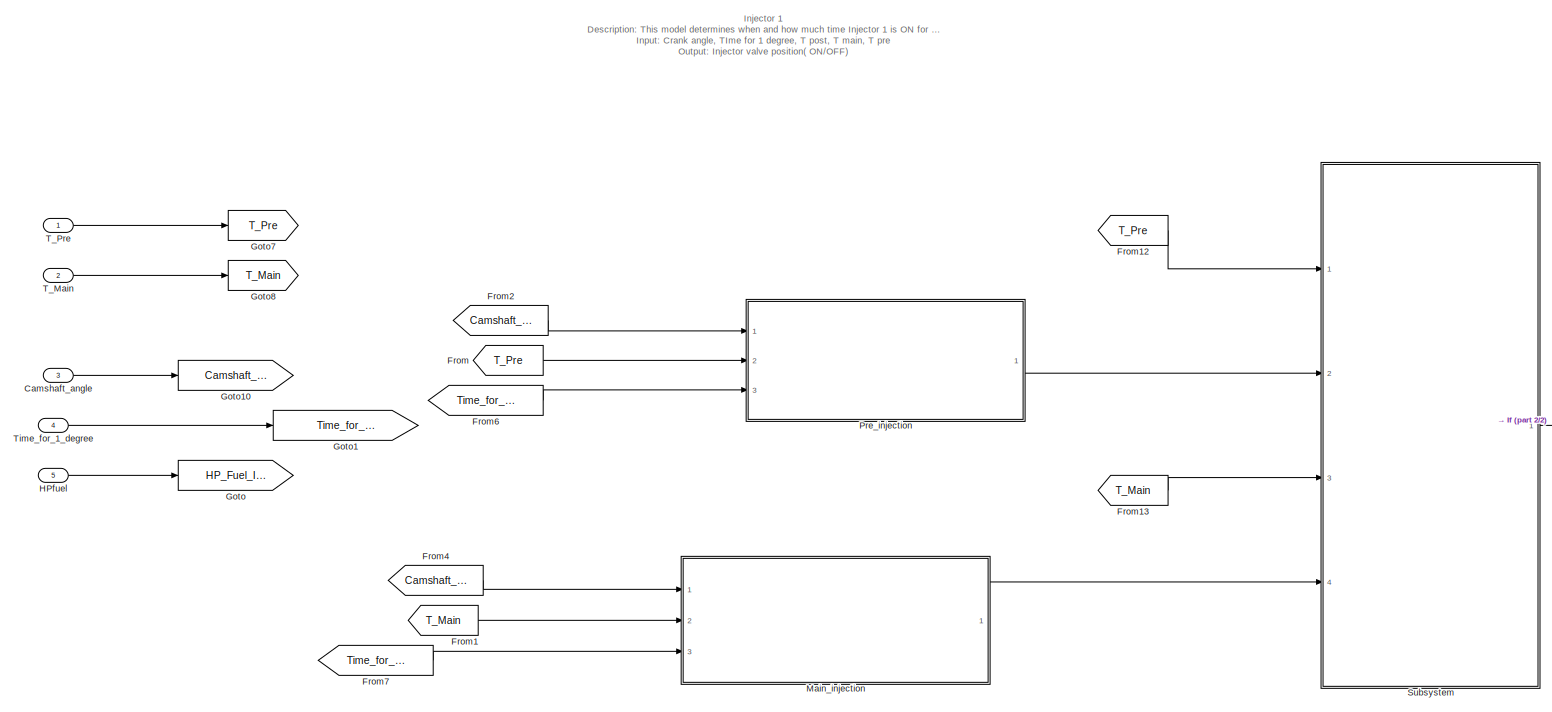
[diagram: CRDI_Integrated_Fuel_Injectio_system/Injector_Subsystem/Injector3/Injector_3Subsystem - part 1/2, left side, full height]
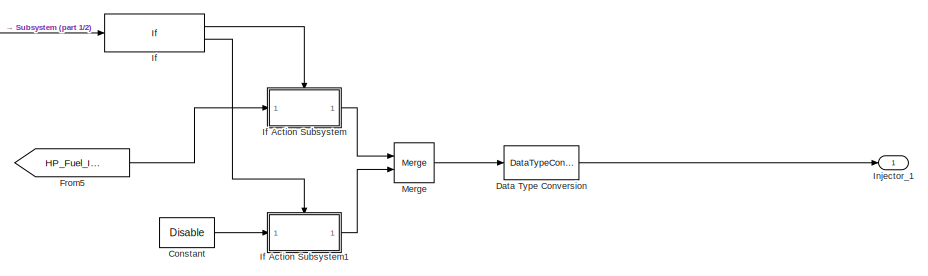
[diagram: CRDI_Integrated_Fuel_Injectio_system/Injector_Subsystem/Injector3/Injector_3Subsystem - part 2/2, bottom right region]
BLOCK [SubSystem] CRDI_Integrated_Fuel_Injectio_system/Injector_Subsystem/Injector3/Injector_3Subsystem
  Ports = [5, 1]
  RequestExecContextInheritance = off
  TreatAsAtomicUnit = on
BLOCK [Inport] CRDI_Integrated_Fuel_Injectio_system/Injector_Subsystem/Injector3/Injector_3Subsystem/Camshaft_angle
  Port = 3
BLOCK [Constant] CRDI_Integrated_Fuel_Injectio_system/Injector_Subsystem/Injector3/Injector_3Subsystem/Constant
  OutDataTypeStr = single
  Value = Disable
BLOCK [DataTypeConversion] CRDI_Integrated_Fuel_Injectio_system/Injector_Subsystem/Injector3/Injector_3Subsystem/Data Type Conversion
  RndMeth = Floor
  SaturateOnIntegerOverflow = off
BLOCK [From] CRDI_Integrated_Fuel_Injectio_system/Injector_Subsystem/Injector3/Injector_3Subsystem/From
  GotoTag = T_Pre
BLOCK [From] CRDI_Integrated_Fuel_Injectio_system/Injector_Subsystem/Injector3/Injector_3Subsystem/From1
  GotoTag = T_Main
BLOCK [From] CRDI_Integrated_Fuel_Injectio_system/Injector_Subsystem/Injector3/Injector_3Subsystem/From12
  GotoTag = T_Pre
BLOCK [From] CRDI_Integrated_Fuel_Injectio_system/Injector_Subsystem/Injector3/Injector_3Subsystem/From13
  GotoTag = T_Main
BLOCK [From] CRDI_Integrated_Fuel_Injectio_system/Injector_Subsystem/Injector3/Injector_3Subsystem/From2
  GotoTag = Camshaft_angle
BLOCK [From] CRDI_Integrated_Fuel_Injectio_system/Injector_Subsystem/Injector3/Injector_3Subsystem/From4
  GotoTag = Camshaft_angle
BLOCK [From] CRDI_Integrated_Fuel_Injectio_system/Injector_Subsystem/Injector3/Injector_3Subsystem/From5
  GotoTag = HP_Fuel_In_Bars
BLOCK [From] CRDI_Integrated_Fuel_Injectio_system/Injector_Subsystem/Injector3/Injector_3Subsystem/From6
  GotoTag = Time_for_1_degree
BLOCK [From] CRDI_Integrated_Fuel_Injectio_system/Injector_Subsystem/Injector3/Injector_3Subsystem/From7
  GotoTag = Time_for_1_degree
BLOCK [Goto] CRDI_Integrated_Fuel_Injectio_system/Injector_Subsystem/Injector3/Injector_3Subsystem/Goto
  GotoTag = HP_Fuel_In_Bars
BLOCK [Goto] CRDI_Integrated_Fuel_Injectio_system/Injector_Subsystem/Injector3/Injector_3Subsystem/Goto1
  GotoTag = Time_for_1_degree
BLOCK [Goto] CRDI_Integrated_Fuel_Injectio_system/Injector_Subsystem/Injector3/Injector_3Subsystem/Goto10
  GotoTag = Camshaft_angle
BLOCK [Goto] CRDI_Integrated_Fuel_Injectio_system/Injector_Subsystem/Injector3/Injector_3Subsystem/Goto7
  GotoTag = T_Pre
BLOCK [Goto] CRDI_Integrated_Fuel_Injectio_system/Injector_Subsystem/Injector3/Injector_3Subsystem/Goto8
  GotoTag = T_Main
BLOCK [Inport] CRDI_Integrated_Fuel_Injectio_system/Injector_Subsystem/Injector3/Injector_3Subsystem/HPfuel
  Port = 5
BLOCK [If] CRDI_Integrated_Fuel_Injectio_system/Injector_Subsystem/Injector3/Injector_3Subsystem/If
  ElseIfExpressions = u1==0
  IfExpression = u1~=0
  Ports = [1, 2]
  ShowElse = off
BLOCK [SubSystem] CRDI_Integrated_Fuel_Injectio_system/Injector_Subsystem/Injector3/Injector_3Subsystem/If Action Subsystem
  Ports = [1, 1, 0, 0, 0, 0, 0, 1]
  RequestExecContextInheritance = off
  TreatAsAtomicUnit = on
BLOCK [ActionPort] CRDI_Integrated_Fuel_Injectio_system/Injector_Subsystem/Injector3/Injector_3Subsystem/If Action Subsystem/Action Port
  ActionPortLabel = if(u1~=0)
BLOCK [Inport] CRDI_Integrated_Fuel_Injectio_system/Injector_Subsystem/Injector3/Injector_3Subsystem/If Action Subsystem/In1
  OutDataTypeStr = single
BLOCK [Outport] CRDI_Integrated_Fuel_Injectio_system/Injector_Subsystem/Injector3/Injector_3Subsystem/If Action Subsystem/Out1
  OutDataTypeStr = single
BLOCK [SubSystem] CRDI_Integrated_Fuel_Injectio_system/Injector_Subsystem/Injector3/Injector_3Subsystem/If Action Subsystem1
  Ports = [1, 1, 0, 0, 0, 0, 0, 1]
  RequestExecContextInheritance = off
  TreatAsAtomicUnit = on
BLOCK [ActionPort] CRDI_Integrated_Fuel_Injectio_system/Injector_Subsystem/Injector3/Injector_3Subsystem/If Action Subsystem1/Action Port
  ActionPortLabel = elseif(u1==0)
BLOCK [Inport] CRDI_Integrated_Fuel_Injectio_system/Injector_Subsystem/Injector3/Injector_3Subsystem/If Action Subsystem1/In1
  OutDataTypeStr = single
BLOCK [Outport] CRDI_Integrated_Fuel_Injectio_system/Injector_Subsystem/Injector3/Injector_3Subsystem/If Action Subsystem1/Out1
  OutDataTypeStr = single
BLOCK [Outport] CRDI_Integrated_Fuel_Injectio_system/Injector_Subsystem/Injector3/Injector_3Subsystem/Injector_1
BLOCK [SubSystem] CRDI_Integrated_Fuel_Injectio_system/Injector_Subsystem/Injector3/Injector_3Subsystem/Main_injection
  Ports = [3, 1]
  RequestExecContextInheritance = off
  TreatAsAtomicUnit = on
BLOCK [Sum] CRDI_Integrated_Fuel_Injectio_system/Injector_Subsystem/Injector3/Injector_3Subsystem/Main_injection/Add
  AccumDataTypeStr = single
  AttributesFormatString = AccumDataTypeStr=%<AccumDataTypeStr>
  IconShape = rectangular
  Ports = [2, 1]
BLOCK [Inport] CRDI_Integrated_Fuel_Injectio_system/Injector_Subsystem/Injector3/Injector_3Subsystem/Main_injection/Crank_angle
  OutDataTypeStr = single
BLOCK [Product] CRDI_Integrated_Fuel_Injectio_system/Injector_Subsystem/Injector3/Injector_3Subsystem/Main_injection/Divide
  Inputs = */
  OutDataTypeStr = single
  Ports = [2, 1]
BLOCK [Logic] CRDI_Integrated_Fuel_Injectio_system/Injector_Subsystem/Injector3/Injector_3Subsystem/Main_injection/Logical Operator
  AllPortsSameDT = off
  OutDataTypeStr = boolean
  Ports = [2, 1]
BLOCK [Constant] CRDI_Integrated_Fuel_Injectio_system/Injector_Subsystem/Injector3/Injector_3Subsystem/Main_injection/Main_Inj_trg_angle_inj1
  Value = Main_Inj_trg_angle_inj3
BLOCK [Constant] CRDI_Integrated_Fuel_Injectio_system/Injector_Subsystem/Injector3/Injector_3Subsystem/Main_injection/Main_Inj_trg_angle_inj2
  Value = Main_Inj_trg_angle_inj3
BLOCK [RelationalOperator] CRDI_Integrated_Fuel_Injectio_system/Injector_Subsystem/Injector3/Injector_3Subsystem/Main_injection/Relational Operator
  InputSameDT = off
  OutDataTypeStr = boolean
  Ports = [2, 1]
  RndMeth = Simplest
BLOCK [RelationalOperator] CRDI_Integrated_Fuel_Injectio_system/Injector_Subsystem/Injector3/Injector_3Subsystem/Main_injection/Relational Operator1
  InputSameDT = off
  Operator = <=
  OutDataTypeStr = boolean
  Ports = [2, 1]
  RndMeth = Simplest
BLOCK [Inport] CRDI_Integrated_Fuel_Injectio_system/Injector_Subsystem/Injector3/Injector_3Subsystem/Main_injection/Time_for_1_Degree
  OutDataTypeStr = single
  Port = 3
BLOCK [Inport] CRDI_Integrated_Fuel_Injectio_system/Injector_Subsystem/Injector3/Injector_3Subsystem/Main_injection/Total_ontime_maininjection
  OutDataTypeStr = single
  Port = 2
BLOCK [Outport] CRDI_Integrated_Fuel_Injectio_system/Injector_Subsystem/Injector3/Injector_3Subsystem/Main_injection/main_inj_on_off_signal
  VectorParamsAs1DForOutWhenUnconnected = off
BLOCK [Merge] CRDI_Integrated_Fuel_Injectio_system/Injector_Subsystem/Injector3/Injector_3Subsystem/Merge
  Ports = [2, 1]
BLOCK [SubSystem] CRDI_Integrated_Fuel_Injectio_system/Injector_Subsystem/Injector3/Injector_3Subsystem/Pre_injection
  Ports = [3, 1]
  RequestExecContextInheritance = off
  TreatAsAtomicUnit = on
BLOCK [Sum] CRDI_Integrated_Fuel_Injectio_system/Injector_Subsystem/Injector3/Injector_3Subsystem/Pre_injection/Add
  AccumDataTypeStr = single
  AttributesFormatString = AccumDataTypeStr=%<AccumDataTypeStr>
  IconShape = rectangular
  Ports = [2, 1]
BLOCK [Inport] CRDI_Integrated_Fuel_Injectio_system/Injector_Subsystem/Injector3/Injector_3Subsystem/Pre_injection/Crank_angle
  OutDataTypeStr = single
BLOCK [Product] CRDI_Integrated_Fuel_Injectio_system/Injector_Subsystem/Injector3/Injector_3Subsystem/Pre_injection/Divide
  Inputs = */
  OutDataTypeStr = single
  Ports = [2, 1]
BLOCK [Logic] CRDI_Integrated_Fuel_Injectio_system/Injector_Subsystem/Injector3/Injector_3Subsystem/Pre_injection/Logical Operator
  AllPortsSameDT = off
  OutDataTypeStr = boolean
  Ports = [2, 1]
BLOCK [Constant] CRDI_Integrated_Fuel_Injectio_system/Injector_Subsystem/Injector3/Injector_3Subsystem/Pre_injection/Pre_Inj_trg_angle_inj1
  Value = Pre_Inj_trg_angle_inj3
BLOCK [Constant] CRDI_Integrated_Fuel_Injectio_system/Injector_Subsystem/Injector3/Injector_3Subsystem/Pre_injection/Pre_Inj_trg_angle_inj2
  Value = Pre_Inj_trg_angle_inj3
BLOCK [RelationalOperator] CRDI_Integrated_Fuel_Injectio_system/Injector_Subsystem/Injector3/Injector_3Subsystem/Pre_injection/Relational Operator
  InputSameDT = off
  OutDataTypeStr = boolean
  Ports = [2, 1]
  RndMeth = Simplest
BLOCK [RelationalOperator] CRDI_Integrated_Fuel_Injectio_system/Injector_Subsystem/Injector3/Injector_3Subsystem/Pre_injection/Relational Operator1
  InputSameDT = off
  Operator = <=
  OutDataTypeStr = boolean
  Ports = [2, 1]
  RndMeth = Simplest
BLOCK [Inport] CRDI_Integrated_Fuel_Injectio_system/Injector_Subsystem/Injector3/Injector_3Subsystem/Pre_injection/Time_For_1_Degree
  OutDataTypeStr = single
  Port = 3
BLOCK [Inport] CRDI_Integrated_Fuel_Injectio_system/Injector_Subsystem/Injector3/Injector_3Subsystem/Pre_injection/Total_ontime_preinjection
  OutDataTypeStr = single
  Port = 2
BLOCK [Outport] CRDI_Integrated_Fuel_Injectio_system/Injector_Subsystem/Injector3/Injector_3Subsystem/Pre_injection/pre_inj_on_off_signal
  VectorParamsAs1DForOutWhenUnconnected = off
BLOCK [SubSystem] CRDI_Integrated_Fuel_Injectio_system/Injector_Subsystem/Injector3/Injector_3Subsystem/Subsystem
  Ports = [4, 1]
  RequestExecContextInheritance = off
BLOCK [Constant] CRDI_Integrated_Fuel_Injectio_system/Injector_Subsystem/Injector3/Injector_3Subsystem/Subsystem/Constant
  Value = Disable
BLOCK [Outport] CRDI_Integrated_Fuel_Injectio_system/Injector_Subsystem/Injector3/Injector_3Subsystem/Subsystem/Enable_Disable
  VectorParamsAs1DForOutWhenUnconnected = off
BLOCK [Inport] CRDI_Integrated_Fuel_Injectio_system/Injector_Subsystem/Injector3/Injector_3Subsystem/Subsystem/Main_Pulse
  Port = 4
BLOCK [Inport] CRDI_Integrated_Fuel_Injectio_system/Injector_Subsystem/Injector3/Injector_3Subsystem/Subsystem/On_Time_Main_Injection
  Port = 3
BLOCK [Inport] CRDI_Integrated_Fuel_Injectio_system/Injector_Subsystem/Injector3/Injector_3Subsystem/Subsystem/On_Time_Pre_Injection
BLOCK [Inport] CRDI_Integrated_Fuel_Injectio_system/Injector_Subsystem/Injector3/Injector_3Subsystem/Subsystem/Pre_Pulse
  Port = 2
BLOCK [Switch] CRDI_Integrated_Fuel_Injectio_system/Injector_Subsystem/Injector3/Injector_3Subsystem/Subsystem/Switch1
  Criteria = u2 ~= 0
  InputSameDT = off
  SaturateOnIntegerOverflow = off
BLOCK [Switch] CRDI_Integrated_Fuel_Injectio_system/Injector_Subsystem/Injector3/Injector_3Subsystem/Subsystem/Switch2
  Criteria = u2 ~= 0
  InputSameDT = off
  SaturateOnIntegerOverflow = off
BLOCK [Inport] CRDI_Integrated_Fuel_Injectio_system/Injector_Subsystem/Injector3/Injector_3Subsystem/T_Main
  Port = 2
BLOCK [Inport] CRDI_Integrated_Fuel_Injectio_system/Injector_Subsystem/Injector3/Injector_3Subsystem/T_Pre
BLOCK [Inport] CRDI_Integrated_Fuel_Injectio_system/Injector_Subsystem/Injector3/Injector_3Subsystem/Time_for_1_degree
  Port = 4
BLOCK [Inport] CRDI_Integrated_Fuel_Injectio_system/Injector_Subsystem/Injector3/RPM
  OutDataTypeStr = single
BLOCK [SubSystem] CRDI_Integrated_Fuel_Injectio_system/Injector_Subsystem/Injector4
  Ports = [2, 1]
  RequestExecContextInheritance = off
BLOCK [Constant] CRDI_Integrated_Fuel_Injectio_system/Injector_Subsystem/Injector4/Constant
  OutDataTypeStr = single
  Value = RPS_to_timeFactor
BLOCK [Constant] CRDI_Integrated_Fuel_Injectio_system/Injector_Subsystem/Injector4/Constant4
  OutDataTypeStr = single
  Value = RPM_to_CamRPS
BLOCK [Product] CRDI_Integrated_Fuel_Injectio_system/Injector_Subsystem/Injector4/Divide2
  Inputs = */
  OutDataTypeStr = single
  Ports = [2, 1]
BLOCK [Product] CRDI_Integrated_Fuel_Injectio_system/Injector_Subsystem/Injector4/Divide3
  Inputs = */
  OutDataTypeStr = single
  Ports = [2, 1]
BLOCK [From] CRDI_Integrated_Fuel_Injectio_system/Injector_Subsystem/Injector4/From4
  GotoTag = Camshaft_angle
  TagVisibility = global
BLOCK [Gain] CRDI_Integrated_Fuel_Injectio_system/Injector_Subsystem/Injector4/Gain
  Gain = Deg_of_Pre_Inj
  OutDataTypeStr = single
BLOCK [Gain] CRDI_Integrated_Fuel_Injectio_system/Injector_Subsystem/Injector4/Gain1
  Gain = Deg_of_Main_Inj
  OutDataTypeStr = single
BLOCK [Gain] CRDI_Integrated_Fuel_Injectio_system/Injector_Subsystem/Injector4/Gain2
  Gain = One_Deg_of_CamRot
  OutDataTypeStr = single
BLOCK [Inport] CRDI_Integrated_Fuel_Injectio_system/Injector_Subsystem/Injector4/HPfuel1
  OutDataTypeStr = single
  Port = 2
BLOCK [Outport] CRDI_Integrated_Fuel_Injectio_system/Injector_Subsystem/Injector4/I4
  OutDataTypeStr = single
BLOCK [SubSystem] CRDI_Integrated_Fuel_Injectio_system/Injector_Subsystem/Injector4/Injector_4Subsystem
  Ports = [5, 1]
  RequestExecContextInheritance = off
  TreatAsAtomicUnit = on
BLOCK [Inport] CRDI_Integrated_Fuel_Injectio_system/Injector_Subsystem/Injector4/Injector_4Subsystem/Camshaft_angle
  Port = 3
BLOCK [Constant] CRDI_Integrated_Fuel_Injectio_system/Injector_Subsystem/Injector4/Injector_4Subsystem/Constant
  OutDataTypeStr = single
  Value = Disable
BLOCK [From] CRDI_Integrated_Fuel_Injectio_system/Injector_Subsystem/Injector4/Injector_4Subsystem/From
  GotoTag = T_Pre
BLOCK [From] CRDI_Integrated_Fuel_Injectio_system/Injector_Subsystem/Injector4/Injector_4Subsystem/From1
  GotoTag = T_Main
BLOCK [From] CRDI_Integrated_Fuel_Injectio_system/Injector_Subsystem/Injector4/Injector_4Subsystem/From12
  GotoTag = T_Pre
BLOCK [From] CRDI_Integrated_Fuel_Injectio_system/Injector_Subsystem/Injector4/Injector_4Subsystem/From13
  GotoTag = T_Main
BLOCK [From] CRDI_Integrated_Fuel_Injectio_system/Injector_Subsystem/Injector4/Injector_4Subsystem/From2
  GotoTag = Camshaft_angle
BLOCK [From] CRDI_Integrated_Fuel_Injectio_system/Injector_Subsystem/Injector4/Injector_4Subsystem/From3
  GotoTag = HP_Fuel_In_Bars
BLOCK [From] CRDI_Integrated_Fuel_Injectio_system/Injector_Subsystem/Injector4/Injector_4Subsystem/From4
  GotoTag = Camshaft_angle
BLOCK [From] CRDI_Integrated_Fuel_Injectio_system/Injector_Subsystem/Injector4/Injector_4Subsystem/From6
  GotoTag = Time_for_1_degree
BLOCK [From] CRDI_Integrated_Fuel_Injectio_system/Injector_Subsystem/Injector4/Injector_4Subsystem/From7
  GotoTag = Time_for_1_degree
BLOCK [Goto] CRDI_Integrated_Fuel_Injectio_system/Injector_Subsystem/Injector4/Injector_4Subsystem/Goto
  GotoTag = HP_Fuel_In_Bars
BLOCK [Goto] CRDI_Integrated_Fuel_Injectio_system/Injector_Subsystem/Injector4/Injector_4Subsystem/Goto1
  GotoTag = Time_for_1_degree
BLOCK [Goto] CRDI_Integrated_Fuel_Injectio_system/Injector_Subsystem/Injector4/Injector_4Subsystem/Goto10
  GotoTag = Camshaft_angle
BLOCK [Goto] CRDI_Integrated_Fuel_Injectio_system/Injector_Subsystem/Injector4/Injector_4Subsystem/Goto7
  GotoTag = T_Pre
BLOCK [Goto] CRDI_Integrated_Fuel_Injectio_system/Injector_Subsystem/Injector4/Injector_4Subsystem/Goto8
  GotoTag = T_Main
BLOCK [Inport] CRDI_Integrated_Fuel_Injectio_system/Injector_Subsystem/Injector4/Injector_4Subsystem/HPfuel
  Port = 5
BLOCK [If] CRDI_Integrated_Fuel_Injectio_system/Injector_Subsystem/Injector4/Injector_4Subsystem/If
  ElseIfExpressions = u1==0
  IfExpression = u1~=0
  Ports = [1, 2]
  ShowElse = off
BLOCK [SubSystem] CRDI_Integrated_Fuel_Injectio_system/Injector_Subsystem/Injector4/Injector_4Subsystem/If Action Subsystem
  Ports = [1, 1, 0, 0, 0, 0, 0, 1]
  RequestExecContextInheritance = off
  TreatAsAtomicUnit = on
BLOCK [ActionPort] CRDI_Integrated_Fuel_Injectio_system/Injector_Subsystem/Injector4/Injector_4Subsystem/If Action Subsystem/Action Port
  ActionPortLabel = if(u1~=0)
BLOCK [Inport] CRDI_Integrated_Fuel_Injectio_system/Injector_Subsystem/Injector4/Injector_4Subsystem/If Action Subsystem/In1
  OutDataTypeStr = single
BLOCK [Outport] CRDI_Integrated_Fuel_Injectio_system/Injector_Subsystem/Injector4/Injector_4Subsystem/If Action Subsystem/Out1
  OutDataTypeStr = single
BLOCK [SubSystem] CRDI_Integrated_Fuel_Injectio_system/Injector_Subsystem/Injector4/Injector_4Subsystem/If Action Subsystem1
  Ports = [1, 1, 0, 0, 0, 0, 0, 1]
  RequestExecContextInheritance = off
  TreatAsAtomicUnit = on
BLOCK [ActionPort] CRDI_Integrated_Fuel_Injectio_system/Injector_Subsystem/Injector4/Injector_4Subsystem/If Action Subsystem1/Action Port
  ActionPortLabel = elseif(u1==0)
BLOCK [Inport] CRDI_Integrated_Fuel_Injectio_system/Injector_Subsystem/Injector4/Injector_4Subsystem/If Action Subsystem1/In1
  OutDataTypeStr = single
BLOCK [Outport] CRDI_Integrated_Fuel_Injectio_system/Injector_Subsystem/Injector4/Injector_4Subsystem/If Action Subsystem1/Out1
  OutDataTypeStr = single
BLOCK [Outport] CRDI_Integrated_Fuel_Injectio_system/Injector_Subsystem/Injector4/Injector_4Subsystem/Injector_1
BLOCK [SubSystem] CRDI_Integrated_Fuel_Injectio_system/Injector_Subsystem/Injector4/Injector_4Subsystem/Main_injection
  Ports = [3, 1]
  RequestExecContextInheritance = off
  TreatAsAtomicUnit = on
BLOCK [Sum] CRDI_Integrated_Fuel_Injectio_system/Injector_Subsystem/Injector4/Injector_4Subsystem/Main_injection/Add
  AccumDataTypeStr = single
  AttributesFormatString = AccumDataTypeStr=%<AccumDataTypeStr>
  IconShape = rectangular
  Ports = [2, 1]
BLOCK [Inport] CRDI_Integrated_Fuel_Injectio_system/Injector_Subsystem/Injector4/Injector_4Subsystem/Main_injection/Crank_angle
  OutDataTypeStr = single
BLOCK [Product] CRDI_Integrated_Fuel_Injectio_system/Injector_Subsystem/Injector4/Injector_4Subsystem/Main_injection/Divide
  Inputs = */
  OutDataTypeStr = single
  Ports = [2, 1]
BLOCK [Logic] CRDI_Integrated_Fuel_Injectio_system/Injector_Subsystem/Injector4/Injector_4Subsystem/Main_injection/Logical Operator
  AllPortsSameDT = off
  OutDataTypeStr = boolean
  Ports = [2, 1]
BLOCK [Constant] CRDI_Integrated_Fuel_Injectio_system/Injector_Subsystem/Injector4/Injector_4Subsystem/Main_injection/Main_Inj_trg_angle_inj1
  Value = Main_Inj_trg_angle_inj4
BLOCK [Constant] CRDI_Integrated_Fuel_Injectio_system/Injector_Subsystem/Injector4/Injector_4Subsystem/Main_injection/Main_Inj_trg_angle_inj2
  Value = Main_Inj_trg_angle_inj4
BLOCK [RelationalOperator] CRDI_Integrated_Fuel_Injectio_system/Injector_Subsystem/Injector4/Injector_4Subsystem/Main_injection/Relational Operator
  InputSameDT = off
  OutDataTypeStr = boolean
  Ports = [2, 1]
  RndMeth = Simplest
BLOCK [RelationalOperator] CRDI_Integrated_Fuel_Injectio_system/Injector_Subsystem/Injector4/Injector_4Subsystem/Main_injection/Relational Operator1
  InputSameDT = off
  Operator = <=
  OutDataTypeStr = boolean
  Ports = [2, 1]
  RndMeth = Simplest
BLOCK [Inport] CRDI_Integrated_Fuel_Injectio_system/Injector_Subsystem/Injector4/Injector_4Subsystem/Main_injection/Time_for_1_Degree
  OutDataTypeStr = single
  Port = 3
BLOCK [Inport] CRDI_Integrated_Fuel_Injectio_system/Injector_Subsystem/Injector4/Injector_4Subsystem/Main_injection/Total_ontime_maininjection
  OutDataTypeStr = single
  Port = 2
BLOCK [Outport] CRDI_Integrated_Fuel_Injectio_system/Injector_Subsystem/Injector4/Injector_4Subsystem/Main_injection/main_inj_on_off_signal
  VectorParamsAs1DForOutWhenUnconnected = off
BLOCK [Merge] CRDI_Integrated_Fuel_Injectio_system/Injector_Subsystem/Injector4/Injector_4Subsystem/Merge
  Ports = [2, 1]
BLOCK [SubSystem] CRDI_Integrated_Fuel_Injectio_system/Injector_Subsystem/Injector4/Injector_4Subsystem/Pre_injection
  Ports = [3, 1]
  RequestExecContextInheritance = off
  TreatAsAtomicUnit = on
BLOCK [Sum] CRDI_Integrated_Fuel_Injectio_system/Injector_Subsystem/Injector4/Injector_4Subsystem/Pre_injection/Add
  AccumDataTypeStr = single
  AttributesFormatString = AccumDataTypeStr=%<AccumDataTypeStr>
  IconShape = rectangular
  Ports = [2, 1]
BLOCK [Inport] CRDI_Integrated_Fuel_Injectio_system/Injector_Subsystem/Injector4/Injector_4Subsystem/Pre_injection/Crank_angle
  OutDataTypeStr = single
BLOCK [Product] CRDI_Integrated_Fuel_Injectio_system/Injector_Subsystem/Injector4/Injector_4Subsystem/Pre_injection/Divide
  Inputs = */
  OutDataTypeStr = single
  Ports = [2, 1]
BLOCK [Logic] CRDI_Integrated_Fuel_Injectio_system/Injector_Subsystem/Injector4/Injector_4Subsystem/Pre_injection/Logical Operator
  AllPortsSameDT = off
  OutDataTypeStr = boolean
  Ports = [2, 1]
BLOCK [Constant] CRDI_Integrated_Fuel_Injectio_system/Injector_Subsystem/Injector4/Injector_4Subsystem/Pre_injection/Pre_Inj_trg_angle_inj1
  Value = Pre_Inj_trg_angle_inj4
BLOCK [Constant] CRDI_Integrated_Fuel_Injectio_system/Injector_Subsystem/Injector4/Injector_4Subsystem/Pre_injection/Pre_Inj_trg_angle_inj2
  Value = Pre_Inj_trg_angle_inj4
BLOCK [RelationalOperator] CRDI_Integrated_Fuel_Injectio_system/Injector_Subsystem/Injector4/Injector_4Subsystem/Pre_injection/Relational Operator
  InputSameDT = off
  OutDataTypeStr = boolean
  Ports = [2, 1]
  RndMeth = Simplest
BLOCK [RelationalOperator] CRDI_Integrated_Fuel_Injectio_system/Injector_Subsystem/Injector4/Injector_4Subsystem/Pre_injection/Relational Operator1
  InputSameDT = off
  Operator = <=
  OutDataTypeStr = boolean
  Ports = [2, 1]
  RndMeth = Simplest
BLOCK [Inport] CRDI_Integrated_Fuel_Injectio_system/Injector_Subsystem/Injector4/Injector_4Subsystem/Pre_injection/Time_For_1_Degree
  OutDataTypeStr = single
  Port = 3
BLOCK [Inport] CRDI_Integrated_Fuel_Injectio_system/Injector_Subsystem/Injector4/Injector_4Subsystem/Pre_injection/Total_ontime_preinjection
  OutDataTypeStr = single
  Port = 2
BLOCK [Outport] CRDI_Integrated_Fuel_Injectio_system/Injector_Subsystem/Injector4/Injector_4Subsystem/Pre_injection/pre_inj_on_off_signal
  VectorParamsAs1DForOutWhenUnconnected = off
BLOCK [SubSystem] CRDI_Integrated_Fuel_Injectio_system/Injector_Subsystem/Injector4/Injector_4Subsystem/Subsystem
  Ports = [4, 1]
  RequestExecContextInheritance = off
BLOCK [Constant] CRDI_Integrated_Fuel_Injectio_system/Injector_Subsystem/Injector4/Injector_4Subsystem/Subsystem/Constant
  Value = Disable
BLOCK [Outport] CRDI_Integrated_Fuel_Injectio_system/Injector_Subsystem/Injector4/Injector_4Subsystem/Subsystem/Enable_Disable
  VectorParamsAs1DForOutWhenUnconnected = off
BLOCK [Inport] CRDI_Integrated_Fuel_Injectio_system/Injector_Subsystem/Injector4/Injector_4Subsystem/Subsystem/Main_Pulse
  Port = 4
BLOCK [Inport] CRDI_Integrated_Fuel_Injectio_system/Injector_Subsystem/Injector4/Injector_4Subsystem/Subsystem/On_Time_Main_Injection
  Port = 3
BLOCK [Inport] CRDI_Integrated_Fuel_Injectio_system/Injector_Subsystem/Injector4/Injector_4Subsystem/Subsystem/On_Time_Pre_Injection
BLOCK [Inport] CRDI_Integrated_Fuel_Injectio_system/Injector_Subsystem/Injector4/Injector_4Subsystem/Subsystem/Pre_Pulse
  Port = 2
BLOCK [Switch] CRDI_Integrated_Fuel_Injectio_system/Injector_Subsystem/Injector4/Injector_4Subsystem/Subsystem/Switch1
  Criteria = u2 ~= 0
  InputSameDT = off
  SaturateOnIntegerOverflow = off
BLOCK [Switch] CRDI_Integrated_Fuel_Injectio_system/Injector_Subsystem/Injector4/Injector_4Subsystem/Subsystem/Switch2
  Criteria = u2 ~= 0
  InputSameDT = off
  SaturateOnIntegerOverflow = off
BLOCK [Inport] CRDI_Integrated_Fuel_Injectio_system/Injector_Subsystem/Injector4/Injector_4Subsystem/T_Main
  Port = 2
BLOCK [Inport] CRDI_Integrated_Fuel_Injectio_system/Injector_Subsystem/Injector4/Injector_4Subsystem/T_Pre
BLOCK [Inport] CRDI_Integrated_Fuel_Injectio_system/Injector_Subsystem/Injector4/Injector_4Subsystem/Time_for_1_degree
  Port = 4
BLOCK [Inport] CRDI_Integrated_Fuel_Injectio_system/Injector_Subsystem/Injector4/RPM
  OutDataTypeStr = single
BLOCK [Inport] CRDI_Integrated_Fuel_Injectio_system/Injector_Subsystem/RPM
  OutDataTypeStr = single
  Port = 2
BLOCK [SubSystem] CRDI_Integrated_Fuel_Injectio_system/Low_pressure_pump
  Ports = [1, 1]
  RequestExecContextInheritance = off
BLOCK [Inport] CRDI_Integrated_Fuel_Injectio_system/Low_pressure_pump/Fuel
  OutDataTypeStr = single
BLOCK [Outport] CRDI_Integrated_Fuel_Injectio_system/Low_pressure_pump/Fuel_LPP
  OutDataTypeStr = single
BLOCK [Gain] CRDI_Integrated_Fuel_Injectio_system/Low_pressure_pump/Gain
  Gain = LPP
  OutDataTypeStr = single
BLOCK [Inport] CRDI_Integrated_Fuel_Injectio_system/MAP_Sensor
  OutDataTypeStr = single
  Port = 4
BLOCK [Inport] CRDI_Integrated_Fuel_Injectio_system/O2_Sensor
  OutDataTypeStr = single
  Port = 3
BLOCK [SubSystem] CRDI_Integrated_Fuel_Injectio_system/PRV
  Ports = [1, 1]
  RequestExecContextInheritance = off
BLOCK [Inport] CRDI_Integrated_Fuel_Injectio_system/PRV/Inport
  OutDataTypeStr = single
BLOCK [Outport] CRDI_Integrated_Fuel_Injectio_system/PRV/Output
  OutDataTypeStr = single
BLOCK [SubSystem] CRDI_Integrated_Fuel_Injectio_system/Rail Pressure Sensor
  Ports = [1, 1]
  RequestExecContextInheritance = off
BLOCK [Inport] CRDI_Integrated_Fuel_Injectio_system/Rail Pressure Sensor/In1
BLOCK [Outport] CRDI_Integrated_Fuel_Injectio_system/Rail Pressure Sensor/Rail Pressue
BLOCK [Outport] CRDI_Integrated_Fuel_Injectio_system/Rail_Pressure
  OutDataTypeStr = single
  Port = 2
BLOCK [SubSystem] CRDI_Integrated_Fuel_Injectio_system/Return_Fuel_Collector
  Ports = [1, 1]
  RequestExecContextInheritance = off
BLOCK [Display] CRDI_Integrated_Fuel_Injectio_system/Return_Fuel_Collector/Display
  Decimation = 1
  Ports = [1]
BLOCK [Outport] CRDI_Integrated_Fuel_Injectio_system/Return_Fuel_Collector/Out1
  OutDataTypeStr = single
BLOCK [Inport] CRDI_Integrated_Fuel_Injectio_system/Return_Fuel_Collector/excess_rail_pressure
  OutDataTypeStr = single
BLOCK [SubSystem] CRDI_Integrated_Fuel_Injectio_system/Sensors_Subsystem
  Ports = [4, 4]
  RequestExecContextInheritance = off
BLOCK [SubSystem] CRDI_Integrated_Fuel_Injectio_system/Sensors_Subsystem/APPS
  Ports = [1, 2]
  RequestExecContextInheritance = off
BLOCK [Lookup_n-D] CRDI_Integrated_Fuel_Injectio_system/Sensors_Subsystem/APPS/1-D Lookup Table
  BreakpointsForDimension1 = [0\n10\n12\n14\n16\n18\n20\n22\n24\n26\n28\n30\n32\n34\n36\n38\n40\n42\n44\n46\n48\n50\n52\n54\n56\n58\n60\n62\n64\n66\n68\n70\n72\n74\n76\n78\n80\n82\n84\n86\n88\n90]
  BreakpointsForDimension1DataTypeStr = double
  ExtrapMethod = Clip
  InputPortMap = u0
  InternalRulePriority = Speed
  NumberOfTableDimensions = 1
  Ports = [1, 1]
  RndMeth = Simplest
  Table = [600\n730\n860\n990\n1120\n1250\n1380\n1510\n1640\n1770\n1900\n2030\n2160\n2290\n2420\n2550\n2680\n2810\n2940\n3070\n3200\n3330\n3460\n3590\n3720\n3850\n3980\n4110\n4240\n4370\n4500\n4630\n4760\n4890\n5020\n5150\n5280\n5410\n5540\n5670\n5800\n6000]
  TableDataTypeStr = double
BLOCK [Inport] CRDI_Integrated_Fuel_Injectio_system/Sensors_Subsystem/APPS/Acc.P.P.In_Degrees
  OutDataTypeStr = single
BLOCK [Goto] CRDI_Integrated_Fuel_Injectio_system/Sensors_Subsystem/APPS/Goto
  GotoTag = RPM
  TagVisibility = global
BLOCK [Outport] CRDI_Integrated_Fuel_Injectio_system/Sensors_Subsystem/APPS/Out1
  OutDataTypeStr = single
BLOCK [Outport] CRDI_Integrated_Fuel_Injectio_system/Sensors_Subsystem/APPS/RPM
  OutDataTypeStr = single
  Port = 2
BLOCK [Inport] CRDI_Integrated_Fuel_Injectio_system/Sensors_Subsystem/Acc.P.P.In_Degrees
  OutDataTypeStr = single
BLOCK [Inport] CRDI_Integrated_Fuel_Injectio_system/Sensors_Subsystem/Cam_Angle
  OutDataTypeStr = single
  Port = 2
BLOCK [Outport] CRDI_Integrated_Fuel_Injectio_system/Sensors_Subsystem/Cam_P_Sensor
  Port = 2
BLOCK [SubSystem] CRDI_Integrated_Fuel_Injectio_system/Sensors_Subsystem/Camshaft_position_sensor
  Ports = [1, 1]
  RequestExecContextInheritance = off
BLOCK [Inport] CRDI_Integrated_Fuel_Injectio_system/Sensors_Subsystem/Camshaft_position_sensor/Cam_Angle
  OutDataTypeStr = single
BLOCK [Outport] CRDI_Integrated_Fuel_Injectio_system/Sensors_Subsystem/Camshaft_position_sensor/Output
  OutDataTypeStr = single
BLOCK [Outport] CRDI_Integrated_Fuel_Injectio_system/Sensors_Subsystem/Crank_P_Sensor
  OutDataTypeStr = single
BLOCK [SubSystem] CRDI_Integrated_Fuel_Injectio_system/Sensors_Subsystem/Crankshaft_Position_Sensor
  Ports = [1, 1]
  RequestExecContextInheritance = off
BLOCK [Outport] CRDI_Integrated_Fuel_Injectio_system/Sensors_Subsystem/Crankshaft_Position_Sensor/Out1
  OutDataTypeStr = single
BLOCK [Inport] CRDI_Integrated_Fuel_Injectio_system/Sensors_Subsystem/Crankshaft_Position_Sensor/RPM
  OutDataTypeStr = single
BLOCK [Goto] CRDI_Integrated_Fuel_Injectio_system/Sensors_Subsystem/Goto2
  GotoTag = APPS
  TagVisibility = global
BLOCK [Outport] CRDI_Integrated_Fuel_Injectio_system/Sensors_Subsystem/MAP_Sensor
  OutDataTypeStr = single
  Port = 4
BLOCK [Inport] CRDI_Integrated_Fuel_Injectio_system/Sensors_Subsystem/MAP_Sensor1
  OutDataTypeStr = single
  Port = 4
BLOCK [SubSystem] CRDI_Integrated_Fuel_Injectio_system/Sensors_Subsystem/Manifold_Absolute_Pressure_Sensor
  Ports = [1, 1]
  RequestExecContextInheritance = off
BLOCK [Inport] CRDI_Integrated_Fuel_Injectio_system/Sensors_Subsystem/Manifold_Absolute_Pressure_Sensor/MAP_Sensor1
  OutDataTypeStr = single
BLOCK [Outport] CRDI_Integrated_Fuel_Injectio_system/Sensors_Subsystem/Manifold_Absolute_Pressure_Sensor/Out1
  OutDataTypeStr = single
BLOCK [Inport] CRDI_Integrated_Fuel_Injectio_system/Sensors_Subsystem/O2_Sensor
  OutDataTypeStr = single
  Port = 3
BLOCK [Outport] CRDI_Integrated_Fuel_Injectio_system/Sensors_Subsystem/Oxy_Sens
  Port = 3
BLOCK [SubSystem] CRDI_Integrated_Fuel_Injectio_system/Sensors_Subsystem/Oxygen_sensor
  Ports = [1, 1]
  RequestExecContextInheritance = off
BLOCK [DataTypeConversion] CRDI_Integrated_Fuel_Injectio_system/Sensors_Subsystem/Oxygen_sensor/Data Type Conversion
  OutDataTypeStr = single
  RndMeth = Floor
  SaturateOnIntegerOverflow = off
BLOCK [SubSystem] CRDI_Integrated_Fuel_Injectio_system/Sensors_Subsystem/Oxygen_sensor/MATLAB Function
  ErrorFcn = Stateflow.Translate.translate
  PermitHierarchicalResolution = ExplicitOnly
  Ports = [1, 1]
  RequestExecContextInheritance = off
  SFBlockType = MATLAB Function
  TreatAsAtomicUnit = on
BLOCK [Demux] CRDI_Integrated_Fuel_Injectio_system/Sensors_Subsystem/Oxygen_sensor/MATLAB Function/ Demux 
  Outputs = 1
  Ports = [1, 1]
BLOCK [S-Function] CRDI_Integrated_Fuel_Injectio_system/Sensors_Subsystem/Oxygen_sensor/MATLAB Function/ SFunction 
  EnableBusSupport = on
  FunctionName = sf_sfun
  PortCounts = [1 2]
  Ports = [1, 2]
  SFcnIsStateOwnerBlock = off
  SFunctionDeploymentMode = off
  Tag = Stateflow S-Function 2
BLOCK [Terminator] CRDI_Integrated_Fuel_Injectio_system/Sensors_Subsystem/Oxygen_sensor/MATLAB Function/ Terminator 
BLOCK [Outport] CRDI_Integrated_Fuel_Injectio_system/Sensors_Subsystem/Oxygen_sensor/MATLAB Function/out
BLOCK [Inport] CRDI_Integrated_Fuel_Injectio_system/Sensors_Subsystem/Oxygen_sensor/MATLAB Function/u
BLOCK [Inport] CRDI_Integrated_Fuel_Injectio_system/Sensors_Subsystem/Oxygen_sensor/O2_Sensor
  OutDataTypeStr = single
BLOCK [Outport] CRDI_Integrated_Fuel_Injectio_system/Sensors_Subsystem/Oxygen_sensor/y
  OutDataTypeStr = single
BLOCK [Display] CRDI_Integrated_Fuel_Injectio_system/Sensors_Subsystem/RPM
  Decimation = 1
  Ports = [1]
BLOCK [SubSystem] CRDI_Integrated_Fuel_Injectio_system/Throttle_Setup
  Ports = [2, 1]
  RequestExecContextInheritance = off
BLOCK [Constant] CRDI_Integrated_Fuel_Injectio_system/Throttle_Setup/Constant
  OutDataTypeStr = single
  Value = Max_RPM
BLOCK [Constant] CRDI_Integrated_Fuel_Injectio_system/Throttle_Setup/Constant1
  OutDataTypeStr = single
  Value = Min_RPM
BLOCK [Constant] CRDI_Integrated_Fuel_Injectio_system/Throttle_Setup/Constant2
  OutDataTypeStr = single
  Value = Req_Throttle
BLOCK [Constant] CRDI_Integrated_Fuel_Injectio_system/Throttle_Setup/Constant3
  OutDataTypeStr = single
  Value = Increase_percent_Throttle
BLOCK [Logic] CRDI_Integrated_Fuel_Injectio_system/Throttle_Setup/Logical Operator1
  AllPortsSameDT = off
  OutDataTypeStr = boolean
  Ports = [2, 1]
BLOCK [Inport] CRDI_Integrated_Fuel_Injectio_system/Throttle_Setup/MAPressure_In
  OutDataTypeStr = single
  Port = 2
BLOCK [Lookup_n-D] CRDI_Integrated_Fuel_Injectio_system/Throttle_Setup/MAPressure_To_RPM
  InputPortMap = u0
  InternalRulePriority = Speed
  NumberOfTableDimensions = 1
  Ports = [1, 1]
  RndMeth = Simplest
  Table = [24\n24.2\n24.3\n24.5\n24.6\n24.8\n24.9\n25.1\n25.2\n25.4\n25.5\n25.7\n25.8\n26.0\n26.1\n26.3\n26.4\n26.6\n26.7\n26.9\n27.0\n27.2\n27.3\n27.5\n27.6\n27.8\n27.9\n28.1\n28.2\n28.4\n28.5\n28.7\n28.8\n29.0\n29.1\n29.3\n29.4\n29.5\n29.7\n29.8\n29.9\n30]
BLOCK [Product] CRDI_Integrated_Fuel_Injectio_system/Throttle_Setup/Product
  OutDataTypeStr = single
  Ports = [2, 1]
BLOCK [Inport] CRDI_Integrated_Fuel_Injectio_system/Throttle_Setup/RPM
  OutDataTypeStr = single
BLOCK [Lookup_n-D] CRDI_Integrated_Fuel_Injectio_system/Throttle_Setup/RPM_TO_Throttle_Opening_In_Degrees
  InputPortMap = u0
  InternalRulePriority = Speed
  NumberOfTableDimensions = 1
  Ports = [1, 1]
  RndMeth = Simplest
  Table = [8\n10\n12\n14\n16\n18\n20\n22\n24\n26\n28\n30\n32\n34\n36\n38\n40\n42\n44\n46\n48\n50\n52\n54\n56\n58\n60\n62\n64\n66\n68\n70\n72\n74\n76\n78\n80\n82\n84\n86\n88\n90]
BLOCK [RelationalOperator] CRDI_Integrated_Fuel_Injectio_system/Throttle_Setup/Relational Operator
  InputSameDT = off
  Operator = <=
  OutDataTypeStr = boolean
  Ports = [2, 1]
  RndMeth = Simplest
BLOCK [RelationalOperator] CRDI_Integrated_Fuel_Injectio_system/Throttle_Setup/Relational Operator1
  InputSameDT = off
  Operator = >
  OutDataTypeStr = boolean
  Ports = [2, 1]
  RndMeth = Simplest
BLOCK [Sum] CRDI_Integrated_Fuel_Injectio_system/Throttle_Setup/Subtract
  IconShape = rectangular
  Inputs = +-
  OutDataTypeStr = single
  Ports = [2, 1]
BLOCK [Switch] CRDI_Integrated_Fuel_Injectio_system/Throttle_Setup/Switch
  InputSameDT = off
  OutDataTypeStr = single
  SaturateOnIntegerOverflow = off
BLOCK [Outport] CRDI_Integrated_Fuel_Injectio_system/Throttle_Setup/TPS
  OutDataTypeStr = single
BLOCK [SubSystem] CRDI_Integrated_Fuel_Injectio_system/Throttle_Setup/Throttle_Motor
  Ports = [1, 1, 1]
  RequestExecContextInheritance = off
  TreatAsAtomicUnit = on
BLOCK [Constant] CRDI_Integrated_Fuel_Injectio_system/Throttle_Setup/Throttle_Motor/Constant
  OutDataTypeStr = single
  Value = Max_Throttle_Deg
BLOCK [EnablePort] CRDI_Integrated_Fuel_Injectio_system/Throttle_Setup/Throttle_Motor/Enable
  Ports = []
BLOCK [Inport] CRDI_Integrated_Fuel_Injectio_system/Throttle_Setup/Throttle_Motor/In1
  OutDataTypeStr = single
BLOCK [Switch] CRDI_Integrated_Fuel_Injectio_system/Throttle_Setup/Throttle_Motor/Switch
  Criteria = u2 > Threshold
  InputSameDT = off
  OutDataTypeStr = single
  SaturateOnIntegerOverflow = off
  Threshold = 90
BLOCK [Outport] CRDI_Integrated_Fuel_Injectio_system/Throttle_Setup/Throttle_Motor/TO_TPS
  OutDataTypeStr = single
BLOCK [SubSystem] CRDI_Integrated_Fuel_Injectio_system/Throttle_Setup/Throttle_Valve1
  Ports = [1, 1]
  RequestExecContextInheritance = off
BLOCK [Outport] CRDI_Integrated_Fuel_Injectio_system/Throttle_Setup/Throttle_Valve1/TPS
  OutDataTypeStr = single
BLOCK [Inport] CRDI_Integrated_Fuel_Injectio_system/Throttle_Setup/Throttle_Valve1/Throttle_Valve
  OutDataTypeStr = single
BLOCK [Outport] CRDI_Integrated_Fuel_Injectio_system/Throttle_in_degrees
  OutDataTypeStr = single
BLOCK [Inport] Cam_Angle
  Port = 2
BLOCK [Inport] Fuel_Press_In_Tank
  Port = 5
BLOCK [Outport] Inject_1
  OutDataTypeStr = single
  Port = 3
BLOCK [Outport] Inject_2
  OutDataTypeStr = single
  Port = 4
BLOCK [Outport] Inject_3
  OutDataTypeStr = single
  Port = 5
BLOCK [Outport] Inject_4
  OutDataTypeStr = single
  Port = 6
BLOCK [Inport] MAP_Sensor
  Port = 4
BLOCK [Inport] O2_Sensor
  Port = 3
BLOCK [Outport] Rail_Pressure
  OutDataTypeStr = single
  Port = 2
BLOCK [Outport] Throttle_in_degrees
  OutDataTypeStr = single
ANNOTATION CRDI_Integrated_Fuel_Injectio_system/High_Pressure_Pump: rpm=3000 rail pressure 902 bar output = 1000 bar difference = 98 bar excess
ANNOTATION CRDI_Integrated_Fuel_Injectio_system/High_Pressure_Pump/Metering Unit: if fuel pressure in rail is as per the required in specific rpm then duty cycle is 15 % if pressure is more duty cylce will increase to 20 % until pressure in rail is as per required
ANNOTATION CRDI_Integrated_Fuel_Injectio_system/Injector_Subsystem/Injector1: RPM = 600, RPS=600/60=10 No. of rotations of crankshaft =10 per sec No. of rotations of camshaft = 5 per sec 1 rotation = .1 sec 1 cycle = .2 sec
ANNOTATION CRDI_Integrated_Fuel_Injectio_system/Injector_Subsystem/Injector1/Injector_1Subsystem: Injector 1 Description: This model determines when and how much time Injector 1 is ON for combustion of fuel Input: Crank angle, TIme for 1 degree, T post, T main, T pre Output: Injector valve position( ON/OFF)
ANNOTATION CRDI_Integrated_Fuel_Injectio_system/Injector_Subsystem/Injector1/Injector_1Subsystem/Subsystem: Subsystem Description: Integrates Pre, Main, Post Injection to single output Input: On time for pre Injection, On time for main Injection, On time for post Injection, Pre Pulse, Main Pulse, Post Pulse Output: On time for Injection
ANNOTATION CRDI_Integrated_Fuel_Injectio_system/Injector_Subsystem/Injector2/Injector_2Subsystem: Injector 1 Description: This model determines when and how much time Injector 1 is ON for combustion of fuel Input: Crank angle, TIme for 1 degree, T post, T main, T pre Output: Injector valve position( ON/OFF)
ANNOTATION CRDI_Integrated_Fuel_Injectio_system/Injector_Subsystem/Injector2/Injector_2Subsystem/Subsystem: Subsystem Description: Integrates Pre, Main, Post Injection to single output Input: On time for pre Injection, On time for main Injection, On time for post Injection, Pre Pulse, Main Pulse, Post Pulse Output: On time for Injection
ANNOTATION CRDI_Integrated_Fuel_Injectio_system/Injector_Subsystem/Injector3/Injector_3Subsystem: Injector 1 Description: This model determines when and how much time Injector 1 is ON for combustion of fuel Input: Crank angle, TIme for 1 degree, T post, T main, T pre Output: Injector valve position( ON/OFF)
ANNOTATION CRDI_Integrated_Fuel_Injectio_system/Injector_Subsystem/Injector3/Injector_3Subsystem/Subsystem: Subsystem Description: Integrates Pre, Main, Post Injection to single output Input: On time for pre Injection, On time for main Injection, On time for post Injection, Pre Pulse, Main Pulse, Post Pulse Output: On time for Injection
ANNOTATION CRDI_Integrated_Fuel_Injectio_system/Injector_Subsystem/Injector4/Injector_4Subsystem: Injector 1 Description: This model determines when and how much time Injector 1 is ON for combustion of fuel Input: Crank angle, TIme for 1 degree, T post, T main, T pre Output: Injector valve position( ON/OFF)
ANNOTATION CRDI_Integrated_Fuel_Injectio_system/Injector_Subsystem/Injector4/Injector_4Subsystem/Subsystem: Subsystem Description: Integrates Pre, Main, Post Injection to single output Input: On time for pre Injection, On time for main Injection, On time for post Injection, Pre Pulse, Main Pulse, Post Pulse Output: On time for Injection
ANNOTATION CRDI_Integrated_Fuel_Injectio_system/Sensors_Subsystem: For Cylinder Identification
ANNOTATION CRDI_Integrated_Fuel_Injectio_system/Sensors_Subsystem: For RPM
LINE Acc.P.P.In_Degrees:1 -> CRDI_Integrated_Fuel_Injectio_system:1
LINE CRDI_Integrated_Fuel_Injectio_system/Acc.P.P.In_Degrees:1 -> CRDI_Integrated_Fuel_Injectio_system/Sensors_Subsystem:1
LINE CRDI_Integrated_Fuel_Injectio_system/Cam_Angle:1 -> CRDI_Integrated_Fuel_Injectio_system/Sensors_Subsystem:2
LINE CRDI_Integrated_Fuel_Injectio_system/ECM/APPS_INPUT:1 -> CRDI_Integrated_Fuel_Injectio_system/ECM/APPS_In_Degrees:1
LINE CRDI_Integrated_Fuel_Injectio_system/ECM/CamPS:1 -> CRDI_Integrated_Fuel_Injectio_system/ECM/Cam_Angle:1
NET CRDI_Integrated_Fuel_Injectio_system/ECM/CrankPS:1 -> CRDI_Integrated_Fuel_Injectio_system/ECM/TO_Provide_RPM:1, CRDI_Integrated_Fuel_Injectio_system/ECM/To_Injectors:1, CRDI_Integrated_Fuel_Injectio_system/ECM/To_Throttle:1
NET CRDI_Integrated_Fuel_Injectio_system/ECM/MAP_Out:1 -> CRDI_Integrated_Fuel_Injectio_system/ECM/From_MAP:1, CRDI_Integrated_Fuel_Injectio_system/ECM/MAPInKPA:1
LINE CRDI_Integrated_Fuel_Injectio_system/ECM/O2_Out:1 -> CRDI_Integrated_Fuel_Injectio_system/ECM/To_MU:1
LINE CRDI_Integrated_Fuel_Injectio_system/ECM/RPS_INPUT:1 -> CRDI_Integrated_Fuel_Injectio_system/ECM/Rail_Pressure_InBar:1
LINE CRDI_Integrated_Fuel_Injectio_system/ECM/TPS:1 -> CRDI_Integrated_Fuel_Injectio_system/ECM/Throttle_In_Degrees:1
LINE CRDI_Integrated_Fuel_Injectio_system/ECM:1 -> CRDI_Integrated_Fuel_Injectio_system/Goto7:1
LINE CRDI_Integrated_Fuel_Injectio_system/ECM:2 -> CRDI_Integrated_Fuel_Injectio_system/Goto8:1
LINE CRDI_Integrated_Fuel_Injectio_system/ECM:3 -> CRDI_Integrated_Fuel_Injectio_system/Goto3:1
LINE CRDI_Integrated_Fuel_Injectio_system/ECM:4 -> CRDI_Integrated_Fuel_Injectio_system/Throttle_Setup:1
LINE CRDI_Integrated_Fuel_Injectio_system/ECM:5 -> CRDI_Integrated_Fuel_Injectio_system/Throttle_Setup:2
LINE CRDI_Integrated_Fuel_Injectio_system/From10:1 -> CRDI_Integrated_Fuel_Injectio_system/Fuel_Rail:2
LINE CRDI_Integrated_Fuel_Injectio_system/From11:1 -> CRDI_Integrated_Fuel_Injectio_system/Fuel_tank:1
LINE CRDI_Integrated_Fuel_Injectio_system/From13:1 -> CRDI_Integrated_Fuel_Injectio_system/ECM:7
LINE CRDI_Integrated_Fuel_Injectio_system/From1:1 -> CRDI_Integrated_Fuel_Injectio_system/High_Pressure_Pump:2
LINE CRDI_Integrated_Fuel_Injectio_system/From2:1 -> CRDI_Integrated_Fuel_Injectio_system/ECM:6
LINE CRDI_Integrated_Fuel_Injectio_system/From3:1 -> CRDI_Integrated_Fuel_Injectio_system/ECM:5
LINE CRDI_Integrated_Fuel_Injectio_system/From4:1 -> CRDI_Integrated_Fuel_Injectio_system/ECM:1
LINE CRDI_Integrated_Fuel_Injectio_system/From5:1 -> CRDI_Integrated_Fuel_Injectio_system/ECM:2
LINE CRDI_Integrated_Fuel_Injectio_system/From6:1 -> CRDI_Integrated_Fuel_Injectio_system/ECM:3
LINE CRDI_Integrated_Fuel_Injectio_system/From7:1 -> CRDI_Integrated_Fuel_Injectio_system/Injector_Subsystem:2
LINE CRDI_Integrated_Fuel_Injectio_system/From8:1 -> CRDI_Integrated_Fuel_Injectio_system/Rail Pressure Sensor:1
LINE CRDI_Integrated_Fuel_Injectio_system/From9:1 -> CRDI_Integrated_Fuel_Injectio_system/PRV:1
LINE CRDI_Integrated_Fuel_Injectio_system/From:1 -> CRDI_Integrated_Fuel_Injectio_system/Fuel_Rail:1
LINE CRDI_Integrated_Fuel_Injectio_system/Fuel_Press_In_Tank:1 -> CRDI_Integrated_Fuel_Injectio_system/Fuel_tank:2
NET CRDI_Integrated_Fuel_Injectio_system/Fuel_Rail/1-D Lookup Table:1 -> CRDI_Integrated_Fuel_Injectio_system/Fuel_Rail/Product:1, CRDI_Integrated_Fuel_Injectio_system/Fuel_Rail/Subtract:1
LINE CRDI_Integrated_Fuel_Injectio_system/Fuel_Rail/From:1 -> CRDI_Integrated_Fuel_Injectio_system/Fuel_Rail/1-D Lookup Table:1
NET CRDI_Integrated_Fuel_Injectio_system/Fuel_Rail/HP_Fuel:1 -> CRDI_Integrated_Fuel_Injectio_system/Fuel_Rail/Subtract1:2, CRDI_Integrated_Fuel_Injectio_system/Fuel_Rail/Subtract:2
NET CRDI_Integrated_Fuel_Injectio_system/Fuel_Rail/Mu_Ecm:1 -> CRDI_Integrated_Fuel_Injectio_system/Fuel_Rail/Product1:2, CRDI_Integrated_Fuel_Injectio_system/Fuel_Rail/Product:2
LINE CRDI_Integrated_Fuel_Injectio_system/Fuel_Rail/Product1:1 -> CRDI_Integrated_Fuel_Injectio_system/Fuel_Rail/FuelTo_Injectors:1
LINE CRDI_Integrated_Fuel_Injectio_system/Fuel_Rail/Product:1 -> CRDI_Integrated_Fuel_Injectio_system/Fuel_Rail/Rail_Pressure:1
LINE CRDI_Integrated_Fuel_Injectio_system/Fuel_Rail/Subtract1:1 -> CRDI_Integrated_Fuel_Injectio_system/Fuel_Rail/Product1:1
NET CRDI_Integrated_Fuel_Injectio_system/Fuel_Rail/Subtract:1 -> CRDI_Integrated_Fuel_Injectio_system/Fuel_Rail/Subtract1:1, CRDI_Integrated_Fuel_Injectio_system/Fuel_Rail/excess_fuel:1
LINE CRDI_Integrated_Fuel_Injectio_system/Fuel_Rail:1 -> CRDI_Integrated_Fuel_Injectio_system/Injector_Subsystem:1
LINE CRDI_Integrated_Fuel_Injectio_system/Fuel_Rail:2 -> CRDI_Integrated_Fuel_Injectio_system/Goto10:1
NET CRDI_Integrated_Fuel_Injectio_system/Fuel_Rail:3 -> CRDI_Integrated_Fuel_Injectio_system/Goto9:1, CRDI_Integrated_Fuel_Injectio_system/Rail_Pressure:1
LINE CRDI_Integrated_Fuel_Injectio_system/Fuel_tank/Excess_fuel:1 -> CRDI_Integrated_Fuel_Injectio_system/Fuel_tank/ExcessFuelInBar:1
LINE CRDI_Integrated_Fuel_Injectio_system/Fuel_tank/Fuel_Press_In_Tank:1 -> CRDI_Integrated_Fuel_Injectio_system/Fuel_tank/FuelInBar:1
LINE CRDI_Integrated_Fuel_Injectio_system/Fuel_tank/Inport:1 -> CRDI_Integrated_Fuel_Injectio_system/Fuel_tank/ExcessFuelInBar1:1
LINE CRDI_Integrated_Fuel_Injectio_system/Fuel_tank:1 -> CRDI_Integrated_Fuel_Injectio_system/Low_pressure_pump:1
NET CRDI_Integrated_Fuel_Injectio_system/High_Pressure_Pump/Fuel_LPP:1 -> CRDI_Integrated_Fuel_Injectio_system/High_Pressure_Pump/Display:1, CRDI_Integrated_Fuel_Injectio_system/High_Pressure_Pump/Gain:1
NET CRDI_Integrated_Fuel_Injectio_system/High_Pressure_Pump/Gain:1 -> CRDI_Integrated_Fuel_Injectio_system/High_Pressure_Pump/Product:1, CRDI_Integrated_Fuel_Injectio_system/High_Pressure_Pump/Subtract:1
LINE CRDI_Integrated_Fuel_Injectio_system/High_Pressure_Pump/MU_ECM:1 -> CRDI_Integrated_Fuel_Injectio_system/High_Pressure_Pump/Metering Unit:1
LINE CRDI_Integrated_Fuel_Injectio_system/High_Pressure_Pump/Metering Unit/MU_ECM:1 -> CRDI_Integrated_Fuel_Injectio_system/High_Pressure_Pump/Metering Unit/Output:1
LINE CRDI_Integrated_Fuel_Injectio_system/High_Pressure_Pump/Metering Unit:1 -> CRDI_Integrated_Fuel_Injectio_system/High_Pressure_Pump/Product:2
NET CRDI_Integrated_Fuel_Injectio_system/High_Pressure_Pump/Product:1 -> CRDI_Integrated_Fuel_Injectio_system/High_Pressure_Pump/Fuel_Out:1, CRDI_Integrated_Fuel_Injectio_system/High_Pressure_Pump/Subtract:2
LINE CRDI_Integrated_Fuel_Injectio_system/High_Pressure_Pump/Subtract:1 -> CRDI_Integrated_Fuel_Injectio_system/High_Pressure_Pump/Excess fuel:1
LINE CRDI_Integrated_Fuel_Injectio_system/High_Pressure_Pump:1 -> CRDI_Integrated_Fuel_Injectio_system/Goto:1
LINE CRDI_Integrated_Fuel_Injectio_system/High_Pressure_Pump:2 -> CRDI_Integrated_Fuel_Injectio_system/Fuel_tank:3
NET CRDI_Integrated_Fuel_Injectio_system/Injector_Subsystem/Fuelto_Injectors:1 -> CRDI_Integrated_Fuel_Injectio_system/Injector_Subsystem/Injector1:2, CRDI_Integrated_Fuel_Injectio_system/Injector_Subsystem/Injector2:2, CRDI_Integrated_Fuel_Injectio_system/Injector_Subsystem/Injector3:2, CRDI_Integrated_Fuel_Injectio_system/Injector_Subsystem/Injector4:2
LINE CRDI_Integrated_Fuel_Injectio_system/Injector_Subsystem/Injector1/Constant4:1 -> CRDI_Integrated_Fuel_Injectio_system/Injector_Subsystem/Injector1/Divide2:2
LINE CRDI_Integrated_Fuel_Injectio_system/Injector_Subsystem/Injector1/Constant:1 -> CRDI_Integrated_Fuel_Injectio_system/Injector_Subsystem/Injector1/Divide3:1
LINE CRDI_Integrated_Fuel_Injectio_system/Injector_Subsystem/Injector1/Divide2:1 -> CRDI_Integrated_Fuel_Injectio_system/Injector_Subsystem/Injector1/Divide3:2
NET CRDI_Integrated_Fuel_Injectio_system/Injector_Subsystem/Injector1/Divide3:1 -> CRDI_Integrated_Fuel_Injectio_system/Injector_Subsystem/Injector1/Gain1:1, CRDI_Integrated_Fuel_Injectio_system/Injector_Subsystem/Injector1/Gain2:1, CRDI_Integrated_Fuel_Injectio_system/Injector_Subsystem/Injector1/Gain:1
LINE CRDI_Integrated_Fuel_Injectio_system/Injector_Subsystem/Injector1/From4:1 -> CRDI_Integrated_Fuel_Injectio_system/Injector_Subsystem/Injector1/Injector_1Subsystem:3
LINE CRDI_Integrated_Fuel_Injectio_system/Injector_Subsystem/Injector1/Gain1:1 -> CRDI_Integrated_Fuel_Injectio_system/Injector_Subsystem/Injector1/Injector_1Subsystem:2
LINE CRDI_Integrated_Fuel_Injectio_system/Injector_Subsystem/Injector1/Gain2:1 -> CRDI_Integrated_Fuel_Injectio_system/Injector_Subsystem/Injector1/Injector_1Subsystem:4
LINE CRDI_Integrated_Fuel_Injectio_system/Injector_Subsystem/Injector1/Gain:1 -> CRDI_Integrated_Fuel_Injectio_system/Injector_Subsystem/Injector1/Injector_1Subsystem:1
LINE CRDI_Integrated_Fuel_Injectio_system/Injector_Subsystem/Injector1/HPfuel:1 -> CRDI_Integrated_Fuel_Injectio_system/Injector_Subsystem/Injector1/Injector_1Subsystem:5
LINE CRDI_Integrated_Fuel_Injectio_system/Injector_Subsystem/Injector1/Injector_1Subsystem/Camshaft_angle:1 -> CRDI_Integrated_Fuel_Injectio_system/Injector_Subsystem/Injector1/Injector_1Subsystem/Goto10:1
LINE CRDI_Integrated_Fuel_Injectio_system/Injector_Subsystem/Injector1/Injector_1Subsystem/Constant:1 -> CRDI_Integrated_Fuel_Injectio_system/Injector_Subsystem/Injector1/Injector_1Subsystem/If Action Subsystem1:1
LINE CRDI_Integrated_Fuel_Injectio_system/Injector_Subsystem/Injector1/Injector_1Subsystem/From12:1 -> CRDI_Integrated_Fuel_Injectio_system/Injector_Subsystem/Injector1/Injector_1Subsystem/Subsystem:1
LINE CRDI_Integrated_Fuel_Injectio_system/Injector_Subsystem/Injector1/Injector_1Subsystem/From13:1 -> CRDI_Integrated_Fuel_Injectio_system/Injector_Subsystem/Injector1/Injector_1Subsystem/Subsystem:3
LINE CRDI_Integrated_Fuel_Injectio_system/Injector_Subsystem/Injector1/Injector_1Subsystem/From1:1 -> CRDI_Integrated_Fuel_Injectio_system/Injector_Subsystem/Injector1/Injector_1Subsystem/Main_injection:2
LINE CRDI_Integrated_Fuel_Injectio_system/Injector_Subsystem/Injector1/Injector_1Subsystem/From2:1 -> CRDI_Integrated_Fuel_Injectio_system/Injector_Subsystem/Injector1/Injector_1Subsystem/Pre_injection:1
LINE CRDI_Integrated_Fuel_Injectio_system/Injector_Subsystem/Injector1/Injector_1Subsystem/From3:1 -> CRDI_Integrated_Fuel_Injectio_system/Injector_Subsystem/Injector1/Injector_1Subsystem/If Action Subsystem:1
LINE CRDI_Integrated_Fuel_Injectio_system/Injector_Subsystem/Injector1/Injector_1Subsystem/From4:1 -> CRDI_Integrated_Fuel_Injectio_system/Injector_Subsystem/Injector1/Injector_1Subsystem/Main_injection:1
LINE CRDI_Integrated_Fuel_Injectio_system/Injector_Subsystem/Injector1/Injector_1Subsystem/From6:1 -> CRDI_Integrated_Fuel_Injectio_system/Injector_Subsystem/Injector1/Injector_1Subsystem/Pre_injection:3
LINE CRDI_Integrated_Fuel_Injectio_system/Injector_Subsystem/Injector1/Injector_1Subsystem/From7:1 -> CRDI_Integrated_Fuel_Injectio_system/Injector_Subsystem/Injector1/Injector_1Subsystem/Main_injection:3
LINE CRDI_Integrated_Fuel_Injectio_system/Injector_Subsystem/Injector1/Injector_1Subsystem/From:1 -> CRDI_Integrated_Fuel_Injectio_system/Injector_Subsystem/Injector1/Injector_1Subsystem/Pre_injection:2
LINE CRDI_Integrated_Fuel_Injectio_system/Injector_Subsystem/Injector1/Injector_1Subsystem/HPfuel:1 -> CRDI_Integrated_Fuel_Injectio_system/Injector_Subsystem/Injector1/Injector_1Subsystem/Goto:1
LINE CRDI_Integrated_Fuel_Injectio_system/Injector_Subsystem/Injector1/Injector_1Subsystem/If Action Subsystem/In1:1 -> CRDI_Integrated_Fuel_Injectio_system/Injector_Subsystem/Injector1/Injector_1Subsystem/If Action Subsystem/Out1:1
LINE CRDI_Integrated_Fuel_Injectio_system/Injector_Subsystem/Injector1/Injector_1Subsystem/If Action Subsystem1/In1:1 -> CRDI_Integrated_Fuel_Injectio_system/Injector_Subsystem/Injector1/Injector_1Subsystem/If Action Subsystem1/Out1:1
LINE CRDI_Integrated_Fuel_Injectio_system/Injector_Subsystem/Injector1/Injector_1Subsystem/If Action Subsystem1:1 -> CRDI_Integrated_Fuel_Injectio_system/Injector_Subsystem/Injector1/Injector_1Subsystem/Merge:2
LINE CRDI_Integrated_Fuel_Injectio_system/Injector_Subsystem/Injector1/Injector_1Subsystem/If Action Subsystem:1 -> CRDI_Integrated_Fuel_Injectio_system/Injector_Subsystem/Injector1/Injector_1Subsystem/Merge:1
LINE CRDI_Integrated_Fuel_Injectio_system/Injector_Subsystem/Injector1/Injector_1Subsystem/If:1 -> CRDI_Integrated_Fuel_Injectio_system/Injector_Subsystem/Injector1/Injector_1Subsystem/If Action Subsystem:ifaction
LINE CRDI_Integrated_Fuel_Injectio_system/Injector_Subsystem/Injector1/Injector_1Subsystem/If:2 -> CRDI_Integrated_Fuel_Injectio_system/Injector_Subsystem/Injector1/Injector_1Subsystem/If Action Subsystem1:ifaction
LINE CRDI_Integrated_Fuel_Injectio_system/Injector_Subsystem/Injector1/Injector_1Subsystem/Main_injection/Add:1 -> CRDI_Integrated_Fuel_Injectio_system/Injector_Subsystem/Injector1/Injector_1Subsystem/Main_injection/Relational Operator1:2
NET CRDI_Integrated_Fuel_Injectio_system/Injector_Subsystem/Injector1/Injector_1Subsystem/Main_injection/Cam_angle:1 -> CRDI_Integrated_Fuel_Injectio_system/Injector_Subsystem/Injector1/Injector_1Subsystem/Main_injection/Relational Operator1:1, CRDI_Integrated_Fuel_Injectio_system/Injector_Subsystem/Injector1/Injector_1Subsystem/Main_injection/Relational Operator:1
LINE CRDI_Integrated_Fuel_Injectio_system/Injector_Subsystem/Injector1/Injector_1Subsystem/Main_injection/Divide:1 -> CRDI_Integrated_Fuel_Injectio_system/Injector_Subsystem/Injector1/Injector_1Subsystem/Main_injection/Add:2
LINE CRDI_Integrated_Fuel_Injectio_system/Injector_Subsystem/Injector1/Injector_1Subsystem/Main_injection/Logical Operator:1 -> CRDI_Integrated_Fuel_Injectio_system/Injector_Subsystem/Injector1/Injector_1Subsystem/Main_injection/main_inj_on_off_signal:1
LINE CRDI_Integrated_Fuel_Injectio_system/Injector_Subsystem/Injector1/Injector_1Subsystem/Main_injection/Main_Inj_trg_angle_inj1:1 -> CRDI_Integrated_Fuel_Injectio_system/Injector_Subsystem/Injector1/Injector_1Subsystem/Main_injection/Relational Operator:2
LINE CRDI_Integrated_Fuel_Injectio_system/Injector_Subsystem/Injector1/Injector_1Subsystem/Main_injection/Main_Inj_trg_angle_inj2:1 -> CRDI_Integrated_Fuel_Injectio_system/Injector_Subsystem/Injector1/Injector_1Subsystem/Main_injection/Add:1
LINE CRDI_Integrated_Fuel_Injectio_system/Injector_Subsystem/Injector1/Injector_1Subsystem/Main_injection/Relational Operator1:1 -> CRDI_Integrated_Fuel_Injectio_system/Injector_Subsystem/Injector1/Injector_1Subsystem/Main_injection/Logical Operator:2
LINE CRDI_Integrated_Fuel_Injectio_system/Injector_Subsystem/Injector1/Injector_1Subsystem/Main_injection/Relational Operator:1 -> CRDI_Integrated_Fuel_Injectio_system/Injector_Subsystem/Injector1/Injector_1Subsystem/Main_injection/Logical Operator:1
LINE CRDI_Integrated_Fuel_Injectio_system/Injector_Subsystem/Injector1/Injector_1Subsystem/Main_injection/Time_for_1_Degree:1 -> CRDI_Integrated_Fuel_Injectio_system/Injector_Subsystem/Injector1/Injector_1Subsystem/Main_injection/Divide:2
LINE CRDI_Integrated_Fuel_Injectio_system/Injector_Subsystem/Injector1/Injector_1Subsystem/Main_injection/Total_ontime_maininjection:1 -> CRDI_Integrated_Fuel_Injectio_system/Injector_Subsystem/Injector1/Injector_1Subsystem/Main_injection/Divide:1
LINE CRDI_Integrated_Fuel_Injectio_system/Injector_Subsystem/Injector1/Injector_1Subsystem/Main_injection:1 -> CRDI_Integrated_Fuel_Injectio_system/Injector_Subsystem/Injector1/Injector_1Subsystem/Subsystem:4
LINE CRDI_Integrated_Fuel_Injectio_system/Injector_Subsystem/Injector1/Injector_1Subsystem/Merge:1 -> CRDI_Integrated_Fuel_Injectio_system/Injector_Subsystem/Injector1/Injector_1Subsystem/Injector_1:1
LINE CRDI_Integrated_Fuel_Injectio_system/Injector_Subsystem/Injector1/Injector_1Subsystem/Pre_injection/Add:1 -> CRDI_Integrated_Fuel_Injectio_system/Injector_Subsystem/Injector1/Injector_1Subsystem/Pre_injection/Relational Operator1:2
NET CRDI_Integrated_Fuel_Injectio_system/Injector_Subsystem/Injector1/Injector_1Subsystem/Pre_injection/Cam_angle:1 -> CRDI_Integrated_Fuel_Injectio_system/Injector_Subsystem/Injector1/Injector_1Subsystem/Pre_injection/Relational Operator1:1, CRDI_Integrated_Fuel_Injectio_system/Injector_Subsystem/Injector1/Injector_1Subsystem/Pre_injection/Relational Operator:1
LINE CRDI_Integrated_Fuel_Injectio_system/Injector_Subsystem/Injector1/Injector_1Subsystem/Pre_injection/Divide:1 -> CRDI_Integrated_Fuel_Injectio_system/Injector_Subsystem/Injector1/Injector_1Subsystem/Pre_injection/Add:2
LINE CRDI_Integrated_Fuel_Injectio_system/Injector_Subsystem/Injector1/Injector_1Subsystem/Pre_injection/Logical Operator:1 -> CRDI_Integrated_Fuel_Injectio_system/Injector_Subsystem/Injector1/Injector_1Subsystem/Pre_injection/pre_inj_on_off_signal:1
LINE CRDI_Integrated_Fuel_Injectio_system/Injector_Subsystem/Injector1/Injector_1Subsystem/Pre_injection/Pre_Inj_trg_angle_inj1:1 -> CRDI_Integrated_Fuel_Injectio_system/Injector_Subsystem/Injector1/Injector_1Subsystem/Pre_injection/Relational Operator:2
LINE CRDI_Integrated_Fuel_Injectio_system/Injector_Subsystem/Injector1/Injector_1Subsystem/Pre_injection/Pre_Inj_trg_angle_inj3:1 -> CRDI_Integrated_Fuel_Injectio_system/Injector_Subsystem/Injector1/Injector_1Subsystem/Pre_injection/Add:1
LINE CRDI_Integrated_Fuel_Injectio_system/Injector_Subsystem/Injector1/Injector_1Subsystem/Pre_injection/Relational Operator1:1 -> CRDI_Integrated_Fuel_Injectio_system/Injector_Subsystem/Injector1/Injector_1Subsystem/Pre_injection/Logical Operator:2
LINE CRDI_Integrated_Fuel_Injectio_system/Injector_Subsystem/Injector1/Injector_1Subsystem/Pre_injection/Relational Operator:1 -> CRDI_Integrated_Fuel_Injectio_system/Injector_Subsystem/Injector1/Injector_1Subsystem/Pre_injection/Logical Operator:1
LINE CRDI_Integrated_Fuel_Injectio_system/Injector_Subsystem/Injector1/Injector_1Subsystem/Pre_injection/Time_For_1_Degree:1 -> CRDI_Integrated_Fuel_Injectio_system/Injector_Subsystem/Injector1/Injector_1Subsystem/Pre_injection/Divide:2
LINE CRDI_Integrated_Fuel_Injectio_system/Injector_Subsystem/Injector1/Injector_1Subsystem/Pre_injection/Total_ontime_preinjection:1 -> CRDI_Integrated_Fuel_Injectio_system/Injector_Subsystem/Injector1/Injector_1Subsystem/Pre_injection/Divide:1
LINE CRDI_Integrated_Fuel_Injectio_system/Injector_Subsystem/Injector1/Injector_1Subsystem/Pre_injection:1 -> CRDI_Integrated_Fuel_Injectio_system/Injector_Subsystem/Injector1/Injector_1Subsystem/Subsystem:2
LINE CRDI_Integrated_Fuel_Injectio_system/Injector_Subsystem/Injector1/Injector_1Subsystem/Subsystem/Constant:1 -> CRDI_Integrated_Fuel_Injectio_system/Injector_Subsystem/Injector1/Injector_1Subsystem/Subsystem/Switch2:3
LINE CRDI_Integrated_Fuel_Injectio_system/Injector_Subsystem/Injector1/Injector_1Subsystem/Subsystem/Main_Pulse:1 -> CRDI_Integrated_Fuel_Injectio_system/Injector_Subsystem/Injector1/Injector_1Subsystem/Subsystem/Switch2:2
LINE CRDI_Integrated_Fuel_Injectio_system/Injector_Subsystem/Injector1/Injector_1Subsystem/Subsystem/On_Time_Main_Injection:1 -> CRDI_Integrated_Fuel_Injectio_system/Injector_Subsystem/Injector1/Injector_1Subsystem/Subsystem/Switch2:1
LINE CRDI_Integrated_Fuel_Injectio_system/Injector_Subsystem/Injector1/Injector_1Subsystem/Subsystem/On_Time_Pre_Injection:1 -> CRDI_Integrated_Fuel_Injectio_system/Injector_Subsystem/Injector1/Injector_1Subsystem/Subsystem/Switch1:1
LINE CRDI_Integrated_Fuel_Injectio_system/Injector_Subsystem/Injector1/Injector_1Subsystem/Subsystem/Pre_Pulse:1 -> CRDI_Integrated_Fuel_Injectio_system/Injector_Subsystem/Injector1/Injector_1Subsystem/Subsystem/Switch1:2
LINE CRDI_Integrated_Fuel_Injectio_system/Injector_Subsystem/Injector1/Injector_1Subsystem/Subsystem/Switch1:1 -> CRDI_Integrated_Fuel_Injectio_system/Injector_Subsystem/Injector1/Injector_1Subsystem/Subsystem/Enable_Disable:1
LINE CRDI_Integrated_Fuel_Injectio_system/Injector_Subsystem/Injector1/Injector_1Subsystem/Subsystem/Switch2:1 -> CRDI_Integrated_Fuel_Injectio_system/Injector_Subsystem/Injector1/Injector_1Subsystem/Subsystem/Switch1:3
LINE CRDI_Integrated_Fuel_Injectio_system/Injector_Subsystem/Injector1/Injector_1Subsystem/Subsystem:1 -> CRDI_Integrated_Fuel_Injectio_system/Injector_Subsystem/Injector1/Injector_1Subsystem/If:1
LINE CRDI_Integrated_Fuel_Injectio_system/Injector_Subsystem/Injector1/Injector_1Subsystem/T_Main:1 -> CRDI_Integrated_Fuel_Injectio_system/Injector_Subsystem/Injector1/Injector_1Subsystem/Goto8:1
LINE CRDI_Integrated_Fuel_Injectio_system/Injector_Subsystem/Injector1/Injector_1Subsystem/T_Pre:1 -> CRDI_Integrated_Fuel_Injectio_system/Injector_Subsystem/Injector1/Injector_1Subsystem/Goto7:1
LINE CRDI_Integrated_Fuel_Injectio_system/Injector_Subsystem/Injector1/Injector_1Subsystem/Time_for_1_degree:1 -> CRDI_Integrated_Fuel_Injectio_system/Injector_Subsystem/Injector1/Injector_1Subsystem/Goto1:1
LINE CRDI_Integrated_Fuel_Injectio_system/Injector_Subsystem/Injector1/Injector_1Subsystem:1 -> CRDI_Integrated_Fuel_Injectio_system/Injector_Subsystem/Injector1/I1:1
LINE CRDI_Integrated_Fuel_Injectio_system/Injector_Subsystem/Injector1/RPM:1 -> CRDI_Integrated_Fuel_Injectio_system/Injector_Subsystem/Injector1/Divide2:1
LINE CRDI_Integrated_Fuel_Injectio_system/Injector_Subsystem/Injector1:1 -> CRDI_Integrated_Fuel_Injectio_system/Injector_Subsystem/I1:1
LINE CRDI_Integrated_Fuel_Injectio_system/Injector_Subsystem/Injector2/Constant4:1 -> CRDI_Integrated_Fuel_Injectio_system/Injector_Subsystem/Injector2/Divide2:2
LINE CRDI_Integrated_Fuel_Injectio_system/Injector_Subsystem/Injector2/Constant:1 -> CRDI_Integrated_Fuel_Injectio_system/Injector_Subsystem/Injector2/Divide3:1
LINE CRDI_Integrated_Fuel_Injectio_system/Injector_Subsystem/Injector2/Divide2:1 -> CRDI_Integrated_Fuel_Injectio_system/Injector_Subsystem/Injector2/Divide3:2
NET CRDI_Integrated_Fuel_Injectio_system/Injector_Subsystem/Injector2/Divide3:1 -> CRDI_Integrated_Fuel_Injectio_system/Injector_Subsystem/Injector2/Gain1:1, CRDI_Integrated_Fuel_Injectio_system/Injector_Subsystem/Injector2/Gain2:1, CRDI_Integrated_Fuel_Injectio_system/Injector_Subsystem/Injector2/Gain:1
LINE CRDI_Integrated_Fuel_Injectio_system/Injector_Subsystem/Injector2/From4:1 -> CRDI_Integrated_Fuel_Injectio_system/Injector_Subsystem/Injector2/Injector_2Subsystem:3
LINE CRDI_Integrated_Fuel_Injectio_system/Injector_Subsystem/Injector2/Gain1:1 -> CRDI_Integrated_Fuel_Injectio_system/Injector_Subsystem/Injector2/Injector_2Subsystem:2
LINE CRDI_Integrated_Fuel_Injectio_system/Injector_Subsystem/Injector2/Gain2:1 -> CRDI_Integrated_Fuel_Injectio_system/Injector_Subsystem/Injector2/Injector_2Subsystem:4
LINE CRDI_Integrated_Fuel_Injectio_system/Injector_Subsystem/Injector2/Gain:1 -> CRDI_Integrated_Fuel_Injectio_system/Injector_Subsystem/Injector2/Injector_2Subsystem:1
LINE CRDI_Integrated_Fuel_Injectio_system/Injector_Subsystem/Injector2/HPfuel:1 -> CRDI_Integrated_Fuel_Injectio_system/Injector_Subsystem/Injector2/Injector_2Subsystem:5
LINE CRDI_Integrated_Fuel_Injectio_system/Injector_Subsystem/Injector2/Injector_2Subsystem/Camshaft_angle:1 -> CRDI_Integrated_Fuel_Injectio_system/Injector_Subsystem/Injector2/Injector_2Subsystem/Goto10:1
LINE CRDI_Integrated_Fuel_Injectio_system/Injector_Subsystem/Injector2/Injector_2Subsystem/Constant:1 -> CRDI_Integrated_Fuel_Injectio_system/Injector_Subsystem/Injector2/Injector_2Subsystem/If Action Subsystem1:1
LINE CRDI_Integrated_Fuel_Injectio_system/Injector_Subsystem/Injector2/Injector_2Subsystem/From12:1 -> CRDI_Integrated_Fuel_Injectio_system/Injector_Subsystem/Injector2/Injector_2Subsystem/Subsystem:1
LINE CRDI_Integrated_Fuel_Injectio_system/Injector_Subsystem/Injector2/Injector_2Subsystem/From13:1 -> CRDI_Integrated_Fuel_Injectio_system/Injector_Subsystem/Injector2/Injector_2Subsystem/Subsystem:3
LINE CRDI_Integrated_Fuel_Injectio_system/Injector_Subsystem/Injector2/Injector_2Subsystem/From1:1 -> CRDI_Integrated_Fuel_Injectio_system/Injector_Subsystem/Injector2/Injector_2Subsystem/Main_injection:2
LINE CRDI_Integrated_Fuel_Injectio_system/Injector_Subsystem/Injector2/Injector_2Subsystem/From2:1 -> CRDI_Integrated_Fuel_Injectio_system/Injector_Subsystem/Injector2/Injector_2Subsystem/Pre_injection:1
LINE CRDI_Integrated_Fuel_Injectio_system/Injector_Subsystem/Injector2/Injector_2Subsystem/From3:1 -> CRDI_Integrated_Fuel_Injectio_system/Injector_Subsystem/Injector2/Injector_2Subsystem/If Action Subsystem:1
LINE CRDI_Integrated_Fuel_Injectio_system/Injector_Subsystem/Injector2/Injector_2Subsystem/From4:1 -> CRDI_Integrated_Fuel_Injectio_system/Injector_Subsystem/Injector2/Injector_2Subsystem/Main_injection:1
LINE CRDI_Integrated_Fuel_Injectio_system/Injector_Subsystem/Injector2/Injector_2Subsystem/From6:1 -> CRDI_Integrated_Fuel_Injectio_system/Injector_Subsystem/Injector2/Injector_2Subsystem/Pre_injection:3
LINE CRDI_Integrated_Fuel_Injectio_system/Injector_Subsystem/Injector2/Injector_2Subsystem/From7:1 -> CRDI_Integrated_Fuel_Injectio_system/Injector_Subsystem/Injector2/Injector_2Subsystem/Main_injection:3
LINE CRDI_Integrated_Fuel_Injectio_system/Injector_Subsystem/Injector2/Injector_2Subsystem/From:1 -> CRDI_Integrated_Fuel_Injectio_system/Injector_Subsystem/Injector2/Injector_2Subsystem/Pre_injection:2
LINE CRDI_Integrated_Fuel_Injectio_system/Injector_Subsystem/Injector2/Injector_2Subsystem/HPfuel:1 -> CRDI_Integrated_Fuel_Injectio_system/Injector_Subsystem/Injector2/Injector_2Subsystem/Goto:1
LINE CRDI_Integrated_Fuel_Injectio_system/Injector_Subsystem/Injector2/Injector_2Subsystem/If Action Subsystem/In1:1 -> CRDI_Integrated_Fuel_Injectio_system/Injector_Subsystem/Injector2/Injector_2Subsystem/If Action Subsystem/Out1:1
LINE CRDI_Integrated_Fuel_Injectio_system/Injector_Subsystem/Injector2/Injector_2Subsystem/If Action Subsystem1/In1:1 -> CRDI_Integrated_Fuel_Injectio_system/Injector_Subsystem/Injector2/Injector_2Subsystem/If Action Subsystem1/Out1:1
LINE CRDI_Integrated_Fuel_Injectio_system/Injector_Subsystem/Injector2/Injector_2Subsystem/If Action Subsystem1:1 -> CRDI_Integrated_Fuel_Injectio_system/Injector_Subsystem/Injector2/Injector_2Subsystem/Merge:2
LINE CRDI_Integrated_Fuel_Injectio_system/Injector_Subsystem/Injector2/Injector_2Subsystem/If Action Subsystem:1 -> CRDI_Integrated_Fuel_Injectio_system/Injector_Subsystem/Injector2/Injector_2Subsystem/Merge:1
LINE CRDI_Integrated_Fuel_Injectio_system/Injector_Subsystem/Injector2/Injector_2Subsystem/If:1 -> CRDI_Integrated_Fuel_Injectio_system/Injector_Subsystem/Injector2/Injector_2Subsystem/If Action Subsystem:ifaction
LINE CRDI_Integrated_Fuel_Injectio_system/Injector_Subsystem/Injector2/Injector_2Subsystem/If:2 -> CRDI_Integrated_Fuel_Injectio_system/Injector_Subsystem/Injector2/Injector_2Subsystem/If Action Subsystem1:ifaction
LINE CRDI_Integrated_Fuel_Injectio_system/Injector_Subsystem/Injector2/Injector_2Subsystem/Main_injection/Add:1 -> CRDI_Integrated_Fuel_Injectio_system/Injector_Subsystem/Injector2/Injector_2Subsystem/Main_injection/Relational Operator1:2
NET CRDI_Integrated_Fuel_Injectio_system/Injector_Subsystem/Injector2/Injector_2Subsystem/Main_injection/Crank_angle:1 -> CRDI_Integrated_Fuel_Injectio_system/Injector_Subsystem/Injector2/Injector_2Subsystem/Main_injection/Relational Operator1:1, CRDI_Integrated_Fuel_Injectio_system/Injector_Subsystem/Injector2/Injector_2Subsystem/Main_injection/Relational Operator:1
LINE CRDI_Integrated_Fuel_Injectio_system/Injector_Subsystem/Injector2/Injector_2Subsystem/Main_injection/Divide:1 -> CRDI_Integrated_Fuel_Injectio_system/Injector_Subsystem/Injector2/Injector_2Subsystem/Main_injection/Add:2
LINE CRDI_Integrated_Fuel_Injectio_system/Injector_Subsystem/Injector2/Injector_2Subsystem/Main_injection/Logical Operator:1 -> CRDI_Integrated_Fuel_Injectio_system/Injector_Subsystem/Injector2/Injector_2Subsystem/Main_injection/main_inj_on_off_signal:1
LINE CRDI_Integrated_Fuel_Injectio_system/Injector_Subsystem/Injector2/Injector_2Subsystem/Main_injection/Main_Inj_trg_angle_inj1:1 -> CRDI_Integrated_Fuel_Injectio_system/Injector_Subsystem/Injector2/Injector_2Subsystem/Main_injection/Relational Operator:2
LINE CRDI_Integrated_Fuel_Injectio_system/Injector_Subsystem/Injector2/Injector_2Subsystem/Main_injection/Main_Inj_trg_angle_inj2:1 -> CRDI_Integrated_Fuel_Injectio_system/Injector_Subsystem/Injector2/Injector_2Subsystem/Main_injection/Add:1
LINE CRDI_Integrated_Fuel_Injectio_system/Injector_Subsystem/Injector2/Injector_2Subsystem/Main_injection/Relational Operator1:1 -> CRDI_Integrated_Fuel_Injectio_system/Injector_Subsystem/Injector2/Injector_2Subsystem/Main_injection/Logical Operator:2
LINE CRDI_Integrated_Fuel_Injectio_system/Injector_Subsystem/Injector2/Injector_2Subsystem/Main_injection/Relational Operator:1 -> CRDI_Integrated_Fuel_Injectio_system/Injector_Subsystem/Injector2/Injector_2Subsystem/Main_injection/Logical Operator:1
LINE CRDI_Integrated_Fuel_Injectio_system/Injector_Subsystem/Injector2/Injector_2Subsystem/Main_injection/Time_for_1_Degree:1 -> CRDI_Integrated_Fuel_Injectio_system/Injector_Subsystem/Injector2/Injector_2Subsystem/Main_injection/Divide:2
LINE CRDI_Integrated_Fuel_Injectio_system/Injector_Subsystem/Injector2/Injector_2Subsystem/Main_injection/Total_ontime_maininjection:1 -> CRDI_Integrated_Fuel_Injectio_system/Injector_Subsystem/Injector2/Injector_2Subsystem/Main_injection/Divide:1
LINE CRDI_Integrated_Fuel_Injectio_system/Injector_Subsystem/Injector2/Injector_2Subsystem/Main_injection:1 -> CRDI_Integrated_Fuel_Injectio_system/Injector_Subsystem/Injector2/Injector_2Subsystem/Subsystem:4
LINE CRDI_Integrated_Fuel_Injectio_system/Injector_Subsystem/Injector2/Injector_2Subsystem/Merge:1 -> CRDI_Integrated_Fuel_Injectio_system/Injector_Subsystem/Injector2/Injector_2Subsystem/Injector_1:1
LINE CRDI_Integrated_Fuel_Injectio_system/Injector_Subsystem/Injector2/Injector_2Subsystem/Pre_injection/Add:1 -> CRDI_Integrated_Fuel_Injectio_system/Injector_Subsystem/Injector2/Injector_2Subsystem/Pre_injection/Relational Operator1:2
NET CRDI_Integrated_Fuel_Injectio_system/Injector_Subsystem/Injector2/Injector_2Subsystem/Pre_injection/Crank_angle:1 -> CRDI_Integrated_Fuel_Injectio_system/Injector_Subsystem/Injector2/Injector_2Subsystem/Pre_injection/Relational Operator1:1, CRDI_Integrated_Fuel_Injectio_system/Injector_Subsystem/Injector2/Injector_2Subsystem/Pre_injection/Relational Operator:1
LINE CRDI_Integrated_Fuel_Injectio_system/Injector_Subsystem/Injector2/Injector_2Subsystem/Pre_injection/Divide:1 -> CRDI_Integrated_Fuel_Injectio_system/Injector_Subsystem/Injector2/Injector_2Subsystem/Pre_injection/Add:2
LINE CRDI_Integrated_Fuel_Injectio_system/Injector_Subsystem/Injector2/Injector_2Subsystem/Pre_injection/Logical Operator:1 -> CRDI_Integrated_Fuel_Injectio_system/Injector_Subsystem/Injector2/Injector_2Subsystem/Pre_injection/pre_inj_on_off_signal:1
LINE CRDI_Integrated_Fuel_Injectio_system/Injector_Subsystem/Injector2/Injector_2Subsystem/Pre_injection/Pre_Inj_trg_angle_inj1:1 -> CRDI_Integrated_Fuel_Injectio_system/Injector_Subsystem/Injector2/Injector_2Subsystem/Pre_injection/Relational Operator:2
LINE CRDI_Integrated_Fuel_Injectio_system/Injector_Subsystem/Injector2/Injector_2Subsystem/Pre_injection/Pre_Inj_trg_angle_inj2:1 -> CRDI_Integrated_Fuel_Injectio_system/Injector_Subsystem/Injector2/Injector_2Subsystem/Pre_injection/Add:1
LINE CRDI_Integrated_Fuel_Injectio_system/Injector_Subsystem/Injector2/Injector_2Subsystem/Pre_injection/Relational Operator1:1 -> CRDI_Integrated_Fuel_Injectio_system/Injector_Subsystem/Injector2/Injector_2Subsystem/Pre_injection/Logical Operator:2
LINE CRDI_Integrated_Fuel_Injectio_system/Injector_Subsystem/Injector2/Injector_2Subsystem/Pre_injection/Relational Operator:1 -> CRDI_Integrated_Fuel_Injectio_system/Injector_Subsystem/Injector2/Injector_2Subsystem/Pre_injection/Logical Operator:1
LINE CRDI_Integrated_Fuel_Injectio_system/Injector_Subsystem/Injector2/Injector_2Subsystem/Pre_injection/Time_For_1_Degree:1 -> CRDI_Integrated_Fuel_Injectio_system/Injector_Subsystem/Injector2/Injector_2Subsystem/Pre_injection/Divide:2
LINE CRDI_Integrated_Fuel_Injectio_system/Injector_Subsystem/Injector2/Injector_2Subsystem/Pre_injection/Total_ontime_preinjection:1 -> CRDI_Integrated_Fuel_Injectio_system/Injector_Subsystem/Injector2/Injector_2Subsystem/Pre_injection/Divide:1
LINE CRDI_Integrated_Fuel_Injectio_system/Injector_Subsystem/Injector2/Injector_2Subsystem/Pre_injection:1 -> CRDI_Integrated_Fuel_Injectio_system/Injector_Subsystem/Injector2/Injector_2Subsystem/Subsystem:2
LINE CRDI_Integrated_Fuel_Injectio_system/Injector_Subsystem/Injector2/Injector_2Subsystem/Subsystem/Constant:1 -> CRDI_Integrated_Fuel_Injectio_system/Injector_Subsystem/Injector2/Injector_2Subsystem/Subsystem/Switch2:3
LINE CRDI_Integrated_Fuel_Injectio_system/Injector_Subsystem/Injector2/Injector_2Subsystem/Subsystem/Main_Pulse:1 -> CRDI_Integrated_Fuel_Injectio_system/Injector_Subsystem/Injector2/Injector_2Subsystem/Subsystem/Switch2:2
LINE CRDI_Integrated_Fuel_Injectio_system/Injector_Subsystem/Injector2/Injector_2Subsystem/Subsystem/On_Time_Main_Injection:1 -> CRDI_Integrated_Fuel_Injectio_system/Injector_Subsystem/Injector2/Injector_2Subsystem/Subsystem/Switch2:1
LINE CRDI_Integrated_Fuel_Injectio_system/Injector_Subsystem/Injector2/Injector_2Subsystem/Subsystem/On_Time_Pre_Injection:1 -> CRDI_Integrated_Fuel_Injectio_system/Injector_Subsystem/Injector2/Injector_2Subsystem/Subsystem/Switch1:1
LINE CRDI_Integrated_Fuel_Injectio_system/Injector_Subsystem/Injector2/Injector_2Subsystem/Subsystem/Pre_Pulse:1 -> CRDI_Integrated_Fuel_Injectio_system/Injector_Subsystem/Injector2/Injector_2Subsystem/Subsystem/Switch1:2
LINE CRDI_Integrated_Fuel_Injectio_system/Injector_Subsystem/Injector2/Injector_2Subsystem/Subsystem/Switch1:1 -> CRDI_Integrated_Fuel_Injectio_system/Injector_Subsystem/Injector2/Injector_2Subsystem/Subsystem/Enable_Disable:1
LINE CRDI_Integrated_Fuel_Injectio_system/Injector_Subsystem/Injector2/Injector_2Subsystem/Subsystem/Switch2:1 -> CRDI_Integrated_Fuel_Injectio_system/Injector_Subsystem/Injector2/Injector_2Subsystem/Subsystem/Switch1:3
LINE CRDI_Integrated_Fuel_Injectio_system/Injector_Subsystem/Injector2/Injector_2Subsystem/Subsystem:1 -> CRDI_Integrated_Fuel_Injectio_system/Injector_Subsystem/Injector2/Injector_2Subsystem/If:1
LINE CRDI_Integrated_Fuel_Injectio_system/Injector_Subsystem/Injector2/Injector_2Subsystem/T_Main:1 -> CRDI_Integrated_Fuel_Injectio_system/Injector_Subsystem/Injector2/Injector_2Subsystem/Goto8:1
LINE CRDI_Integrated_Fuel_Injectio_system/Injector_Subsystem/Injector2/Injector_2Subsystem/T_Pre:1 -> CRDI_Integrated_Fuel_Injectio_system/Injector_Subsystem/Injector2/Injector_2Subsystem/Goto7:1
LINE CRDI_Integrated_Fuel_Injectio_system/Injector_Subsystem/Injector2/Injector_2Subsystem/Time_for_1_degree:1 -> CRDI_Integrated_Fuel_Injectio_system/Injector_Subsystem/Injector2/Injector_2Subsystem/Goto1:1
LINE CRDI_Integrated_Fuel_Injectio_system/Injector_Subsystem/Injector2/Injector_2Subsystem:1 -> CRDI_Integrated_Fuel_Injectio_system/Injector_Subsystem/Injector2/I2:1
LINE CRDI_Integrated_Fuel_Injectio_system/Injector_Subsystem/Injector2/RPM:1 -> CRDI_Integrated_Fuel_Injectio_system/Injector_Subsystem/Injector2/Divide2:1
LINE CRDI_Integrated_Fuel_Injectio_system/Injector_Subsystem/Injector2:1 -> CRDI_Integrated_Fuel_Injectio_system/Injector_Subsystem/I2:1
LINE CRDI_Integrated_Fuel_Injectio_system/Injector_Subsystem/Injector3/Constant4:1 -> CRDI_Integrated_Fuel_Injectio_system/Injector_Subsystem/Injector3/Divide2:2
LINE CRDI_Integrated_Fuel_Injectio_system/Injector_Subsystem/Injector3/Constant:1 -> CRDI_Integrated_Fuel_Injectio_system/Injector_Subsystem/Injector3/Divide3:1
LINE CRDI_Integrated_Fuel_Injectio_system/Injector_Subsystem/Injector3/Divide2:1 -> CRDI_Integrated_Fuel_Injectio_system/Injector_Subsystem/Injector3/Divide3:2
NET CRDI_Integrated_Fuel_Injectio_system/Injector_Subsystem/Injector3/Divide3:1 -> CRDI_Integrated_Fuel_Injectio_system/Injector_Subsystem/Injector3/Gain1:1, CRDI_Integrated_Fuel_Injectio_system/Injector_Subsystem/Injector3/Gain2:1, CRDI_Integrated_Fuel_Injectio_system/Injector_Subsystem/Injector3/Gain:1
LINE CRDI_Integrated_Fuel_Injectio_system/Injector_Subsystem/Injector3/From4:1 -> CRDI_Integrated_Fuel_Injectio_system/Injector_Subsystem/Injector3/Injector_3Subsystem:3
LINE CRDI_Integrated_Fuel_Injectio_system/Injector_Subsystem/Injector3/Gain1:1 -> CRDI_Integrated_Fuel_Injectio_system/Injector_Subsystem/Injector3/Injector_3Subsystem:2
LINE CRDI_Integrated_Fuel_Injectio_system/Injector_Subsystem/Injector3/Gain2:1 -> CRDI_Integrated_Fuel_Injectio_system/Injector_Subsystem/Injector3/Injector_3Subsystem:4
LINE CRDI_Integrated_Fuel_Injectio_system/Injector_Subsystem/Injector3/Gain:1 -> CRDI_Integrated_Fuel_Injectio_system/Injector_Subsystem/Injector3/Injector_3Subsystem:1
LINE CRDI_Integrated_Fuel_Injectio_system/Injector_Subsystem/Injector3/HPfuel:1 -> CRDI_Integrated_Fuel_Injectio_system/Injector_Subsystem/Injector3/Injector_3Subsystem:5
LINE CRDI_Integrated_Fuel_Injectio_system/Injector_Subsystem/Injector3/Injector_3Subsystem/Camshaft_angle:1 -> CRDI_Integrated_Fuel_Injectio_system/Injector_Subsystem/Injector3/Injector_3Subsystem/Goto10:1
LINE CRDI_Integrated_Fuel_Injectio_system/Injector_Subsystem/Injector3/Injector_3Subsystem/Constant:1 -> CRDI_Integrated_Fuel_Injectio_system/Injector_Subsystem/Injector3/Injector_3Subsystem/If Action Subsystem1:1
LINE CRDI_Integrated_Fuel_Injectio_system/Injector_Subsystem/Injector3/Injector_3Subsystem/Data Type Conversion:1 -> CRDI_Integrated_Fuel_Injectio_system/Injector_Subsystem/Injector3/Injector_3Subsystem/Injector_1:1
LINE CRDI_Integrated_Fuel_Injectio_system/Injector_Subsystem/Injector3/Injector_3Subsystem/From12:1 -> CRDI_Integrated_Fuel_Injectio_system/Injector_Subsystem/Injector3/Injector_3Subsystem/Subsystem:1
LINE CRDI_Integrated_Fuel_Injectio_system/Injector_Subsystem/Injector3/Injector_3Subsystem/From13:1 -> CRDI_Integrated_Fuel_Injectio_system/Injector_Subsystem/Injector3/Injector_3Subsystem/Subsystem:3
LINE CRDI_Integrated_Fuel_Injectio_system/Injector_Subsystem/Injector3/Injector_3Subsystem/From1:1 -> CRDI_Integrated_Fuel_Injectio_system/Injector_Subsystem/Injector3/Injector_3Subsystem/Main_injection:2
LINE CRDI_Integrated_Fuel_Injectio_system/Injector_Subsystem/Injector3/Injector_3Subsystem/From2:1 -> CRDI_Integrated_Fuel_Injectio_system/Injector_Subsystem/Injector3/Injector_3Subsystem/Pre_injection:1
LINE CRDI_Integrated_Fuel_Injectio_system/Injector_Subsystem/Injector3/Injector_3Subsystem/From4:1 -> CRDI_Integrated_Fuel_Injectio_system/Injector_Subsystem/Injector3/Injector_3Subsystem/Main_injection:1
LINE CRDI_Integrated_Fuel_Injectio_system/Injector_Subsystem/Injector3/Injector_3Subsystem/From5:1 -> CRDI_Integrated_Fuel_Injectio_system/Injector_Subsystem/Injector3/Injector_3Subsystem/If Action Subsystem:1
LINE CRDI_Integrated_Fuel_Injectio_system/Injector_Subsystem/Injector3/Injector_3Subsystem/From6:1 -> CRDI_Integrated_Fuel_Injectio_system/Injector_Subsystem/Injector3/Injector_3Subsystem/Pre_injection:3
LINE CRDI_Integrated_Fuel_Injectio_system/Injector_Subsystem/Injector3/Injector_3Subsystem/From7:1 -> CRDI_Integrated_Fuel_Injectio_system/Injector_Subsystem/Injector3/Injector_3Subsystem/Main_injection:3
LINE CRDI_Integrated_Fuel_Injectio_system/Injector_Subsystem/Injector3/Injector_3Subsystem/From:1 -> CRDI_Integrated_Fuel_Injectio_system/Injector_Subsystem/Injector3/Injector_3Subsystem/Pre_injection:2
LINE CRDI_Integrated_Fuel_Injectio_system/Injector_Subsystem/Injector3/Injector_3Subsystem/HPfuel:1 -> CRDI_Integrated_Fuel_Injectio_system/Injector_Subsystem/Injector3/Injector_3Subsystem/Goto:1
LINE CRDI_Integrated_Fuel_Injectio_system/Injector_Subsystem/Injector3/Injector_3Subsystem/If Action Subsystem/In1:1 -> CRDI_Integrated_Fuel_Injectio_system/Injector_Subsystem/Injector3/Injector_3Subsystem/If Action Subsystem/Out1:1
LINE CRDI_Integrated_Fuel_Injectio_system/Injector_Subsystem/Injector3/Injector_3Subsystem/If Action Subsystem1/In1:1 -> CRDI_Integrated_Fuel_Injectio_system/Injector_Subsystem/Injector3/Injector_3Subsystem/If Action Subsystem1/Out1:1
LINE CRDI_Integrated_Fuel_Injectio_system/Injector_Subsystem/Injector3/Injector_3Subsystem/If Action Subsystem1:1 -> CRDI_Integrated_Fuel_Injectio_system/Injector_Subsystem/Injector3/Injector_3Subsystem/Merge:2
LINE CRDI_Integrated_Fuel_Injectio_system/Injector_Subsystem/Injector3/Injector_3Subsystem/If Action Subsystem:1 -> CRDI_Integrated_Fuel_Injectio_system/Injector_Subsystem/Injector3/Injector_3Subsystem/Merge:1
LINE CRDI_Integrated_Fuel_Injectio_system/Injector_Subsystem/Injector3/Injector_3Subsystem/If:1 -> CRDI_Integrated_Fuel_Injectio_system/Injector_Subsystem/Injector3/Injector_3Subsystem/If Action Subsystem:ifaction
LINE CRDI_Integrated_Fuel_Injectio_system/Injector_Subsystem/Injector3/Injector_3Subsystem/If:2 -> CRDI_Integrated_Fuel_Injectio_system/Injector_Subsystem/Injector3/Injector_3Subsystem/If Action Subsystem1:ifaction
LINE CRDI_Integrated_Fuel_Injectio_system/Injector_Subsystem/Injector3/Injector_3Subsystem/Main_injection/Add:1 -> CRDI_Integrated_Fuel_Injectio_system/Injector_Subsystem/Injector3/Injector_3Subsystem/Main_injection/Relational Operator1:2
NET CRDI_Integrated_Fuel_Injectio_system/Injector_Subsystem/Injector3/Injector_3Subsystem/Main_injection/Crank_angle:1 -> CRDI_Integrated_Fuel_Injectio_system/Injector_Subsystem/Injector3/Injector_3Subsystem/Main_injection/Relational Operator1:1, CRDI_Integrated_Fuel_Injectio_system/Injector_Subsystem/Injector3/Injector_3Subsystem/Main_injection/Relational Operator:1
LINE CRDI_Integrated_Fuel_Injectio_system/Injector_Subsystem/Injector3/Injector_3Subsystem/Main_injection/Divide:1 -> CRDI_Integrated_Fuel_Injectio_system/Injector_Subsystem/Injector3/Injector_3Subsystem/Main_injection/Add:2
LINE CRDI_Integrated_Fuel_Injectio_system/Injector_Subsystem/Injector3/Injector_3Subsystem/Main_injection/Logical Operator:1 -> CRDI_Integrated_Fuel_Injectio_system/Injector_Subsystem/Injector3/Injector_3Subsystem/Main_injection/main_inj_on_off_signal:1
LINE CRDI_Integrated_Fuel_Injectio_system/Injector_Subsystem/Injector3/Injector_3Subsystem/Main_injection/Main_Inj_trg_angle_inj1:1 -> CRDI_Integrated_Fuel_Injectio_system/Injector_Subsystem/Injector3/Injector_3Subsystem/Main_injection/Relational Operator:2
LINE CRDI_Integrated_Fuel_Injectio_system/Injector_Subsystem/Injector3/Injector_3Subsystem/Main_injection/Main_Inj_trg_angle_inj2:1 -> CRDI_Integrated_Fuel_Injectio_system/Injector_Subsystem/Injector3/Injector_3Subsystem/Main_injection/Add:1
LINE CRDI_Integrated_Fuel_Injectio_system/Injector_Subsystem/Injector3/Injector_3Subsystem/Main_injection/Relational Operator1:1 -> CRDI_Integrated_Fuel_Injectio_system/Injector_Subsystem/Injector3/Injector_3Subsystem/Main_injection/Logical Operator:2
LINE CRDI_Integrated_Fuel_Injectio_system/Injector_Subsystem/Injector3/Injector_3Subsystem/Main_injection/Relational Operator:1 -> CRDI_Integrated_Fuel_Injectio_system/Injector_Subsystem/Injector3/Injector_3Subsystem/Main_injection/Logical Operator:1
LINE CRDI_Integrated_Fuel_Injectio_system/Injector_Subsystem/Injector3/Injector_3Subsystem/Main_injection/Time_for_1_Degree:1 -> CRDI_Integrated_Fuel_Injectio_system/Injector_Subsystem/Injector3/Injector_3Subsystem/Main_injection/Divide:2
LINE CRDI_Integrated_Fuel_Injectio_system/Injector_Subsystem/Injector3/Injector_3Subsystem/Main_injection/Total_ontime_maininjection:1 -> CRDI_Integrated_Fuel_Injectio_system/Injector_Subsystem/Injector3/Injector_3Subsystem/Main_injection/Divide:1
LINE CRDI_Integrated_Fuel_Injectio_system/Injector_Subsystem/Injector3/Injector_3Subsystem/Main_injection:1 -> CRDI_Integrated_Fuel_Injectio_system/Injector_Subsystem/Injector3/Injector_3Subsystem/Subsystem:4
LINE CRDI_Integrated_Fuel_Injectio_system/Injector_Subsystem/Injector3/Injector_3Subsystem/Merge:1 -> CRDI_Integrated_Fuel_Injectio_system/Injector_Subsystem/Injector3/Injector_3Subsystem/Data Type Conversion:1
LINE CRDI_Integrated_Fuel_Injectio_system/Injector_Subsystem/Injector3/Injector_3Subsystem/Pre_injection/Add:1 -> CRDI_Integrated_Fuel_Injectio_system/Injector_Subsystem/Injector3/Injector_3Subsystem/Pre_injection/Relational Operator1:2
NET CRDI_Integrated_Fuel_Injectio_system/Injector_Subsystem/Injector3/Injector_3Subsystem/Pre_injection/Crank_angle:1 -> CRDI_Integrated_Fuel_Injectio_system/Injector_Subsystem/Injector3/Injector_3Subsystem/Pre_injection/Relational Operator1:1, CRDI_Integrated_Fuel_Injectio_system/Injector_Subsystem/Injector3/Injector_3Subsystem/Pre_injection/Relational Operator:1
LINE CRDI_Integrated_Fuel_Injectio_system/Injector_Subsystem/Injector3/Injector_3Subsystem/Pre_injection/Divide:1 -> CRDI_Integrated_Fuel_Injectio_system/Injector_Subsystem/Injector3/Injector_3Subsystem/Pre_injection/Add:2
LINE CRDI_Integrated_Fuel_Injectio_system/Injector_Subsystem/Injector3/Injector_3Subsystem/Pre_injection/Logical Operator:1 -> CRDI_Integrated_Fuel_Injectio_system/Injector_Subsystem/Injector3/Injector_3Subsystem/Pre_injection/pre_inj_on_off_signal:1
LINE CRDI_Integrated_Fuel_Injectio_system/Injector_Subsystem/Injector3/Injector_3Subsystem/Pre_injection/Pre_Inj_trg_angle_inj1:1 -> CRDI_Integrated_Fuel_Injectio_system/Injector_Subsystem/Injector3/Injector_3Subsystem/Pre_injection/Relational Operator:2
LINE CRDI_Integrated_Fuel_Injectio_system/Injector_Subsystem/Injector3/Injector_3Subsystem/Pre_injection/Pre_Inj_trg_angle_inj2:1 -> CRDI_Integrated_Fuel_Injectio_system/Injector_Subsystem/Injector3/Injector_3Subsystem/Pre_injection/Add:1
LINE CRDI_Integrated_Fuel_Injectio_system/Injector_Subsystem/Injector3/Injector_3Subsystem/Pre_injection/Relational Operator1:1 -> CRDI_Integrated_Fuel_Injectio_system/Injector_Subsystem/Injector3/Injector_3Subsystem/Pre_injection/Logical Operator:2
LINE CRDI_Integrated_Fuel_Injectio_system/Injector_Subsystem/Injector3/Injector_3Subsystem/Pre_injection/Relational Operator:1 -> CRDI_Integrated_Fuel_Injectio_system/Injector_Subsystem/Injector3/Injector_3Subsystem/Pre_injection/Logical Operator:1
LINE CRDI_Integrated_Fuel_Injectio_system/Injector_Subsystem/Injector3/Injector_3Subsystem/Pre_injection/Time_For_1_Degree:1 -> CRDI_Integrated_Fuel_Injectio_system/Injector_Subsystem/Injector3/Injector_3Subsystem/Pre_injection/Divide:2
LINE CRDI_Integrated_Fuel_Injectio_system/Injector_Subsystem/Injector3/Injector_3Subsystem/Pre_injection/Total_ontime_preinjection:1 -> CRDI_Integrated_Fuel_Injectio_system/Injector_Subsystem/Injector3/Injector_3Subsystem/Pre_injection/Divide:1
LINE CRDI_Integrated_Fuel_Injectio_system/Injector_Subsystem/Injector3/Injector_3Subsystem/Pre_injection:1 -> CRDI_Integrated_Fuel_Injectio_system/Injector_Subsystem/Injector3/Injector_3Subsystem/Subsystem:2
LINE CRDI_Integrated_Fuel_Injectio_system/Injector_Subsystem/Injector3/Injector_3Subsystem/Subsystem/Constant:1 -> CRDI_Integrated_Fuel_Injectio_system/Injector_Subsystem/Injector3/Injector_3Subsystem/Subsystem/Switch2:3
LINE CRDI_Integrated_Fuel_Injectio_system/Injector_Subsystem/Injector3/Injector_3Subsystem/Subsystem/Main_Pulse:1 -> CRDI_Integrated_Fuel_Injectio_system/Injector_Subsystem/Injector3/Injector_3Subsystem/Subsystem/Switch2:2
LINE CRDI_Integrated_Fuel_Injectio_system/Injector_Subsystem/Injector3/Injector_3Subsystem/Subsystem/On_Time_Main_Injection:1 -> CRDI_Integrated_Fuel_Injectio_system/Injector_Subsystem/Injector3/Injector_3Subsystem/Subsystem/Switch2:1
LINE CRDI_Integrated_Fuel_Injectio_system/Injector_Subsystem/Injector3/Injector_3Subsystem/Subsystem/On_Time_Pre_Injection:1 -> CRDI_Integrated_Fuel_Injectio_system/Injector_Subsystem/Injector3/Injector_3Subsystem/Subsystem/Switch1:1
LINE CRDI_Integrated_Fuel_Injectio_system/Injector_Subsystem/Injector3/Injector_3Subsystem/Subsystem/Pre_Pulse:1 -> CRDI_Integrated_Fuel_Injectio_system/Injector_Subsystem/Injector3/Injector_3Subsystem/Subsystem/Switch1:2
LINE CRDI_Integrated_Fuel_Injectio_system/Injector_Subsystem/Injector3/Injector_3Subsystem/Subsystem/Switch1:1 -> CRDI_Integrated_Fuel_Injectio_system/Injector_Subsystem/Injector3/Injector_3Subsystem/Subsystem/Enable_Disable:1
LINE CRDI_Integrated_Fuel_Injectio_system/Injector_Subsystem/Injector3/Injector_3Subsystem/Subsystem/Switch2:1 -> CRDI_Integrated_Fuel_Injectio_system/Injector_Subsystem/Injector3/Injector_3Subsystem/Subsystem/Switch1:3
LINE CRDI_Integrated_Fuel_Injectio_system/Injector_Subsystem/Injector3/Injector_3Subsystem/Subsystem:1 -> CRDI_Integrated_Fuel_Injectio_system/Injector_Subsystem/Injector3/Injector_3Subsystem/If:1
LINE CRDI_Integrated_Fuel_Injectio_system/Injector_Subsystem/Injector3/Injector_3Subsystem/T_Main:1 -> CRDI_Integrated_Fuel_Injectio_system/Injector_Subsystem/Injector3/Injector_3Subsystem/Goto8:1
LINE CRDI_Integrated_Fuel_Injectio_system/Injector_Subsystem/Injector3/Injector_3Subsystem/T_Pre:1 -> CRDI_Integrated_Fuel_Injectio_system/Injector_Subsystem/Injector3/Injector_3Subsystem/Goto7:1
LINE CRDI_Integrated_Fuel_Injectio_system/Injector_Subsystem/Injector3/Injector_3Subsystem/Time_for_1_degree:1 -> CRDI_Integrated_Fuel_Injectio_system/Injector_Subsystem/Injector3/Injector_3Subsystem/Goto1:1
LINE CRDI_Integrated_Fuel_Injectio_system/Injector_Subsystem/Injector3/Injector_3Subsystem:1 -> CRDI_Integrated_Fuel_Injectio_system/Injector_Subsystem/Injector3/I3:1
LINE CRDI_Integrated_Fuel_Injectio_system/Injector_Subsystem/Injector3/RPM:1 -> CRDI_Integrated_Fuel_Injectio_system/Injector_Subsystem/Injector3/Divide2:1
LINE CRDI_Integrated_Fuel_Injectio_system/Injector_Subsystem/Injector3:1 -> CRDI_Integrated_Fuel_Injectio_system/Injector_Subsystem/I3:1
LINE CRDI_Integrated_Fuel_Injectio_system/Injector_Subsystem/Injector4/Constant4:1 -> CRDI_Integrated_Fuel_Injectio_system/Injector_Subsystem/Injector4/Divide2:2
LINE CRDI_Integrated_Fuel_Injectio_system/Injector_Subsystem/Injector4/Constant:1 -> CRDI_Integrated_Fuel_Injectio_system/Injector_Subsystem/Injector4/Divide3:1
LINE CRDI_Integrated_Fuel_Injectio_system/Injector_Subsystem/Injector4/Divide2:1 -> CRDI_Integrated_Fuel_Injectio_system/Injector_Subsystem/Injector4/Divide3:2
NET CRDI_Integrated_Fuel_Injectio_system/Injector_Subsystem/Injector4/Divide3:1 -> CRDI_Integrated_Fuel_Injectio_system/Injector_Subsystem/Injector4/Gain1:1, CRDI_Integrated_Fuel_Injectio_system/Injector_Subsystem/Injector4/Gain2:1, CRDI_Integrated_Fuel_Injectio_system/Injector_Subsystem/Injector4/Gain:1
LINE CRDI_Integrated_Fuel_Injectio_system/Injector_Subsystem/Injector4/From4:1 -> CRDI_Integrated_Fuel_Injectio_system/Injector_Subsystem/Injector4/Injector_4Subsystem:3
LINE CRDI_Integrated_Fuel_Injectio_system/Injector_Subsystem/Injector4/Gain1:1 -> CRDI_Integrated_Fuel_Injectio_system/Injector_Subsystem/Injector4/Injector_4Subsystem:2
LINE CRDI_Integrated_Fuel_Injectio_system/Injector_Subsystem/Injector4/Gain2:1 -> CRDI_Integrated_Fuel_Injectio_system/Injector_Subsystem/Injector4/Injector_4Subsystem:4
LINE CRDI_Integrated_Fuel_Injectio_system/Injector_Subsystem/Injector4/Gain:1 -> CRDI_Integrated_Fuel_Injectio_system/Injector_Subsystem/Injector4/Injector_4Subsystem:1
LINE CRDI_Integrated_Fuel_Injectio_system/Injector_Subsystem/Injector4/HPfuel1:1 -> CRDI_Integrated_Fuel_Injectio_system/Injector_Subsystem/Injector4/Injector_4Subsystem:5
LINE CRDI_Integrated_Fuel_Injectio_system/Injector_Subsystem/Injector4/Injector_4Subsystem/Camshaft_angle:1 -> CRDI_Integrated_Fuel_Injectio_system/Injector_Subsystem/Injector4/Injector_4Subsystem/Goto10:1
LINE CRDI_Integrated_Fuel_Injectio_system/Injector_Subsystem/Injector4/Injector_4Subsystem/Constant:1 -> CRDI_Integrated_Fuel_Injectio_system/Injector_Subsystem/Injector4/Injector_4Subsystem/If Action Subsystem1:1
LINE CRDI_Integrated_Fuel_Injectio_system/Injector_Subsystem/Injector4/Injector_4Subsystem/From12:1 -> CRDI_Integrated_Fuel_Injectio_system/Injector_Subsystem/Injector4/Injector_4Subsystem/Subsystem:1
LINE CRDI_Integrated_Fuel_Injectio_system/Injector_Subsystem/Injector4/Injector_4Subsystem/From13:1 -> CRDI_Integrated_Fuel_Injectio_system/Injector_Subsystem/Injector4/Injector_4Subsystem/Subsystem:3
LINE CRDI_Integrated_Fuel_Injectio_system/Injector_Subsystem/Injector4/Injector_4Subsystem/From1:1 -> CRDI_Integrated_Fuel_Injectio_system/Injector_Subsystem/Injector4/Injector_4Subsystem/Main_injection:2
LINE CRDI_Integrated_Fuel_Injectio_system/Injector_Subsystem/Injector4/Injector_4Subsystem/From2:1 -> CRDI_Integrated_Fuel_Injectio_system/Injector_Subsystem/Injector4/Injector_4Subsystem/Pre_injection:1
LINE CRDI_Integrated_Fuel_Injectio_system/Injector_Subsystem/Injector4/Injector_4Subsystem/From3:1 -> CRDI_Integrated_Fuel_Injectio_system/Injector_Subsystem/Injector4/Injector_4Subsystem/If Action Subsystem:1
LINE CRDI_Integrated_Fuel_Injectio_system/Injector_Subsystem/Injector4/Injector_4Subsystem/From4:1 -> CRDI_Integrated_Fuel_Injectio_system/Injector_Subsystem/Injector4/Injector_4Subsystem/Main_injection:1
LINE CRDI_Integrated_Fuel_Injectio_system/Injector_Subsystem/Injector4/Injector_4Subsystem/From6:1 -> CRDI_Integrated_Fuel_Injectio_system/Injector_Subsystem/Injector4/Injector_4Subsystem/Pre_injection:3
LINE CRDI_Integrated_Fuel_Injectio_system/Injector_Subsystem/Injector4/Injector_4Subsystem/From7:1 -> CRDI_Integrated_Fuel_Injectio_system/Injector_Subsystem/Injector4/Injector_4Subsystem/Main_injection:3
LINE CRDI_Integrated_Fuel_Injectio_system/Injector_Subsystem/Injector4/Injector_4Subsystem/From:1 -> CRDI_Integrated_Fuel_Injectio_system/Injector_Subsystem/Injector4/Injector_4Subsystem/Pre_injection:2
LINE CRDI_Integrated_Fuel_Injectio_system/Injector_Subsystem/Injector4/Injector_4Subsystem/HPfuel:1 -> CRDI_Integrated_Fuel_Injectio_system/Injector_Subsystem/Injector4/Injector_4Subsystem/Goto:1
LINE CRDI_Integrated_Fuel_Injectio_system/Injector_Subsystem/Injector4/Injector_4Subsystem/If Action Subsystem/In1:1 -> CRDI_Integrated_Fuel_Injectio_system/Injector_Subsystem/Injector4/Injector_4Subsystem/If Action Subsystem/Out1:1
LINE CRDI_Integrated_Fuel_Injectio_system/Injector_Subsystem/Injector4/Injector_4Subsystem/If Action Subsystem1/In1:1 -> CRDI_Integrated_Fuel_Injectio_system/Injector_Subsystem/Injector4/Injector_4Subsystem/If Action Subsystem1/Out1:1
LINE CRDI_Integrated_Fuel_Injectio_system/Injector_Subsystem/Injector4/Injector_4Subsystem/If Action Subsystem1:1 -> CRDI_Integrated_Fuel_Injectio_system/Injector_Subsystem/Injector4/Injector_4Subsystem/Merge:2
LINE CRDI_Integrated_Fuel_Injectio_system/Injector_Subsystem/Injector4/Injector_4Subsystem/If Action Subsystem:1 -> CRDI_Integrated_Fuel_Injectio_system/Injector_Subsystem/Injector4/Injector_4Subsystem/Merge:1
LINE CRDI_Integrated_Fuel_Injectio_system/Injector_Subsystem/Injector4/Injector_4Subsystem/If:1 -> CRDI_Integrated_Fuel_Injectio_system/Injector_Subsystem/Injector4/Injector_4Subsystem/If Action Subsystem:ifaction
LINE CRDI_Integrated_Fuel_Injectio_system/Injector_Subsystem/Injector4/Injector_4Subsystem/If:2 -> CRDI_Integrated_Fuel_Injectio_system/Injector_Subsystem/Injector4/Injector_4Subsystem/If Action Subsystem1:ifaction
LINE CRDI_Integrated_Fuel_Injectio_system/Injector_Subsystem/Injector4/Injector_4Subsystem/Main_injection/Add:1 -> CRDI_Integrated_Fuel_Injectio_system/Injector_Subsystem/Injector4/Injector_4Subsystem/Main_injection/Relational Operator1:2
NET CRDI_Integrated_Fuel_Injectio_system/Injector_Subsystem/Injector4/Injector_4Subsystem/Main_injection/Crank_angle:1 -> CRDI_Integrated_Fuel_Injectio_system/Injector_Subsystem/Injector4/Injector_4Subsystem/Main_injection/Relational Operator1:1, CRDI_Integrated_Fuel_Injectio_system/Injector_Subsystem/Injector4/Injector_4Subsystem/Main_injection/Relational Operator:1
LINE CRDI_Integrated_Fuel_Injectio_system/Injector_Subsystem/Injector4/Injector_4Subsystem/Main_injection/Divide:1 -> CRDI_Integrated_Fuel_Injectio_system/Injector_Subsystem/Injector4/Injector_4Subsystem/Main_injection/Add:2
LINE CRDI_Integrated_Fuel_Injectio_system/Injector_Subsystem/Injector4/Injector_4Subsystem/Main_injection/Logical Operator:1 -> CRDI_Integrated_Fuel_Injectio_system/Injector_Subsystem/Injector4/Injector_4Subsystem/Main_injection/main_inj_on_off_signal:1
LINE CRDI_Integrated_Fuel_Injectio_system/Injector_Subsystem/Injector4/Injector_4Subsystem/Main_injection/Main_Inj_trg_angle_inj1:1 -> CRDI_Integrated_Fuel_Injectio_system/Injector_Subsystem/Injector4/Injector_4Subsystem/Main_injection/Relational Operator:2
LINE CRDI_Integrated_Fuel_Injectio_system/Injector_Subsystem/Injector4/Injector_4Subsystem/Main_injection/Main_Inj_trg_angle_inj2:1 -> CRDI_Integrated_Fuel_Injectio_system/Injector_Subsystem/Injector4/Injector_4Subsystem/Main_injection/Add:1
LINE CRDI_Integrated_Fuel_Injectio_system/Injector_Subsystem/Injector4/Injector_4Subsystem/Main_injection/Relational Operator1:1 -> CRDI_Integrated_Fuel_Injectio_system/Injector_Subsystem/Injector4/Injector_4Subsystem/Main_injection/Logical Operator:2
LINE CRDI_Integrated_Fuel_Injectio_system/Injector_Subsystem/Injector4/Injector_4Subsystem/Main_injection/Relational Operator:1 -> CRDI_Integrated_Fuel_Injectio_system/Injector_Subsystem/Injector4/Injector_4Subsystem/Main_injection/Logical Operator:1
LINE CRDI_Integrated_Fuel_Injectio_system/Injector_Subsystem/Injector4/Injector_4Subsystem/Main_injection/Time_for_1_Degree:1 -> CRDI_Integrated_Fuel_Injectio_system/Injector_Subsystem/Injector4/Injector_4Subsystem/Main_injection/Divide:2
LINE CRDI_Integrated_Fuel_Injectio_system/Injector_Subsystem/Injector4/Injector_4Subsystem/Main_injection/Total_ontime_maininjection:1 -> CRDI_Integrated_Fuel_Injectio_system/Injector_Subsystem/Injector4/Injector_4Subsystem/Main_injection/Divide:1
LINE CRDI_Integrated_Fuel_Injectio_system/Injector_Subsystem/Injector4/Injector_4Subsystem/Main_injection:1 -> CRDI_Integrated_Fuel_Injectio_system/Injector_Subsystem/Injector4/Injector_4Subsystem/Subsystem:4
LINE CRDI_Integrated_Fuel_Injectio_system/Injector_Subsystem/Injector4/Injector_4Subsystem/Merge:1 -> CRDI_Integrated_Fuel_Injectio_system/Injector_Subsystem/Injector4/Injector_4Subsystem/Injector_1:1
LINE CRDI_Integrated_Fuel_Injectio_system/Injector_Subsystem/Injector4/Injector_4Subsystem/Pre_injection/Add:1 -> CRDI_Integrated_Fuel_Injectio_system/Injector_Subsystem/Injector4/Injector_4Subsystem/Pre_injection/Relational Operator1:2
NET CRDI_Integrated_Fuel_Injectio_system/Injector_Subsystem/Injector4/Injector_4Subsystem/Pre_injection/Crank_angle:1 -> CRDI_Integrated_Fuel_Injectio_system/Injector_Subsystem/Injector4/Injector_4Subsystem/Pre_injection/Relational Operator1:1, CRDI_Integrated_Fuel_Injectio_system/Injector_Subsystem/Injector4/Injector_4Subsystem/Pre_injection/Relational Operator:1
LINE CRDI_Integrated_Fuel_Injectio_system/Injector_Subsystem/Injector4/Injector_4Subsystem/Pre_injection/Divide:1 -> CRDI_Integrated_Fuel_Injectio_system/Injector_Subsystem/Injector4/Injector_4Subsystem/Pre_injection/Add:2
LINE CRDI_Integrated_Fuel_Injectio_system/Injector_Subsystem/Injector4/Injector_4Subsystem/Pre_injection/Logical Operator:1 -> CRDI_Integrated_Fuel_Injectio_system/Injector_Subsystem/Injector4/Injector_4Subsystem/Pre_injection/pre_inj_on_off_signal:1
LINE CRDI_Integrated_Fuel_Injectio_system/Injector_Subsystem/Injector4/Injector_4Subsystem/Pre_injection/Pre_Inj_trg_angle_inj1:1 -> CRDI_Integrated_Fuel_Injectio_system/Injector_Subsystem/Injector4/Injector_4Subsystem/Pre_injection/Relational Operator:2
LINE CRDI_Integrated_Fuel_Injectio_system/Injector_Subsystem/Injector4/Injector_4Subsystem/Pre_injection/Pre_Inj_trg_angle_inj2:1 -> CRDI_Integrated_Fuel_Injectio_system/Injector_Subsystem/Injector4/Injector_4Subsystem/Pre_injection/Add:1
LINE CRDI_Integrated_Fuel_Injectio_system/Injector_Subsystem/Injector4/Injector_4Subsystem/Pre_injection/Relational Operator1:1 -> CRDI_Integrated_Fuel_Injectio_system/Injector_Subsystem/Injector4/Injector_4Subsystem/Pre_injection/Logical Operator:2
LINE CRDI_Integrated_Fuel_Injectio_system/Injector_Subsystem/Injector4/Injector_4Subsystem/Pre_injection/Relational Operator:1 -> CRDI_Integrated_Fuel_Injectio_system/Injector_Subsystem/Injector4/Injector_4Subsystem/Pre_injection/Logical Operator:1
LINE CRDI_Integrated_Fuel_Injectio_system/Injector_Subsystem/Injector4/Injector_4Subsystem/Pre_injection/Time_For_1_Degree:1 -> CRDI_Integrated_Fuel_Injectio_system/Injector_Subsystem/Injector4/Injector_4Subsystem/Pre_injection/Divide:2
LINE CRDI_Integrated_Fuel_Injectio_system/Injector_Subsystem/Injector4/Injector_4Subsystem/Pre_injection/Total_ontime_preinjection:1 -> CRDI_Integrated_Fuel_Injectio_system/Injector_Subsystem/Injector4/Injector_4Subsystem/Pre_injection/Divide:1
LINE CRDI_Integrated_Fuel_Injectio_system/Injector_Subsystem/Injector4/Injector_4Subsystem/Pre_injection:1 -> CRDI_Integrated_Fuel_Injectio_system/Injector_Subsystem/Injector4/Injector_4Subsystem/Subsystem:2
LINE CRDI_Integrated_Fuel_Injectio_system/Injector_Subsystem/Injector4/Injector_4Subsystem/Subsystem/Constant:1 -> CRDI_Integrated_Fuel_Injectio_system/Injector_Subsystem/Injector4/Injector_4Subsystem/Subsystem/Switch2:3
LINE CRDI_Integrated_Fuel_Injectio_system/Injector_Subsystem/Injector4/Injector_4Subsystem/Subsystem/Main_Pulse:1 -> CRDI_Integrated_Fuel_Injectio_system/Injector_Subsystem/Injector4/Injector_4Subsystem/Subsystem/Switch2:2
LINE CRDI_Integrated_Fuel_Injectio_system/Injector_Subsystem/Injector4/Injector_4Subsystem/Subsystem/On_Time_Main_Injection:1 -> CRDI_Integrated_Fuel_Injectio_system/Injector_Subsystem/Injector4/Injector_4Subsystem/Subsystem/Switch2:1
LINE CRDI_Integrated_Fuel_Injectio_system/Injector_Subsystem/Injector4/Injector_4Subsystem/Subsystem/On_Time_Pre_Injection:1 -> CRDI_Integrated_Fuel_Injectio_system/Injector_Subsystem/Injector4/Injector_4Subsystem/Subsystem/Switch1:1
LINE CRDI_Integrated_Fuel_Injectio_system/Injector_Subsystem/Injector4/Injector_4Subsystem/Subsystem/Pre_Pulse:1 -> CRDI_Integrated_Fuel_Injectio_system/Injector_Subsystem/Injector4/Injector_4Subsystem/Subsystem/Switch1:2
LINE CRDI_Integrated_Fuel_Injectio_system/Injector_Subsystem/Injector4/Injector_4Subsystem/Subsystem/Switch1:1 -> CRDI_Integrated_Fuel_Injectio_system/Injector_Subsystem/Injector4/Injector_4Subsystem/Subsystem/Enable_Disable:1
LINE CRDI_Integrated_Fuel_Injectio_system/Injector_Subsystem/Injector4/Injector_4Subsystem/Subsystem/Switch2:1 -> CRDI_Integrated_Fuel_Injectio_system/Injector_Subsystem/Injector4/Injector_4Subsystem/Subsystem/Switch1:3
LINE CRDI_Integrated_Fuel_Injectio_system/Injector_Subsystem/Injector4/Injector_4Subsystem/Subsystem:1 -> CRDI_Integrated_Fuel_Injectio_system/Injector_Subsystem/Injector4/Injector_4Subsystem/If:1
LINE CRDI_Integrated_Fuel_Injectio_system/Injector_Subsystem/Injector4/Injector_4Subsystem/T_Main:1 -> CRDI_Integrated_Fuel_Injectio_system/Injector_Subsystem/Injector4/Injector_4Subsystem/Goto8:1
LINE CRDI_Integrated_Fuel_Injectio_system/Injector_Subsystem/Injector4/Injector_4Subsystem/T_Pre:1 -> CRDI_Integrated_Fuel_Injectio_system/Injector_Subsystem/Injector4/Injector_4Subsystem/Goto7:1
LINE CRDI_Integrated_Fuel_Injectio_system/Injector_Subsystem/Injector4/Injector_4Subsystem/Time_for_1_degree:1 -> CRDI_Integrated_Fuel_Injectio_system/Injector_Subsystem/Injector4/Injector_4Subsystem/Goto1:1
LINE CRDI_Integrated_Fuel_Injectio_system/Injector_Subsystem/Injector4/Injector_4Subsystem:1 -> CRDI_Integrated_Fuel_Injectio_system/Injector_Subsystem/Injector4/I4:1
LINE CRDI_Integrated_Fuel_Injectio_system/Injector_Subsystem/Injector4/RPM:1 -> CRDI_Integrated_Fuel_Injectio_system/Injector_Subsystem/Injector4/Divide2:1
LINE CRDI_Integrated_Fuel_Injectio_system/Injector_Subsystem/Injector4:1 -> CRDI_Integrated_Fuel_Injectio_system/Injector_Subsystem/I4:1
NET CRDI_Integrated_Fuel_Injectio_system/Injector_Subsystem/RPM:1 -> CRDI_Integrated_Fuel_Injectio_system/Injector_Subsystem/Injector1:1, CRDI_Integrated_Fuel_Injectio_system/Injector_Subsystem/Injector2:1, CRDI_Integrated_Fuel_Injectio_system/Injector_Subsystem/Injector3:1, CRDI_Integrated_Fuel_Injectio_system/Injector_Subsystem/Injector4:1
LINE CRDI_Integrated_Fuel_Injectio_system/Injector_Subsystem:1 -> CRDI_Integrated_Fuel_Injectio_system/Inject_1:1
LINE CRDI_Integrated_Fuel_Injectio_system/Injector_Subsystem:2 -> CRDI_Integrated_Fuel_Injectio_system/Inject_2:1
LINE CRDI_Integrated_Fuel_Injectio_system/Injector_Subsystem:3 -> CRDI_Integrated_Fuel_Injectio_system/Inject_3:1
LINE CRDI_Integrated_Fuel_Injectio_system/Injector_Subsystem:4 -> CRDI_Integrated_Fuel_Injectio_system/Inject_4:1
LINE CRDI_Integrated_Fuel_Injectio_system/Low_pressure_pump/Fuel:1 -> CRDI_Integrated_Fuel_Injectio_system/Low_pressure_pump/Gain:1
LINE CRDI_Integrated_Fuel_Injectio_system/Low_pressure_pump/Gain:1 -> CRDI_Integrated_Fuel_Injectio_system/Low_pressure_pump/Fuel_LPP:1
LINE CRDI_Integrated_Fuel_Injectio_system/Low_pressure_pump:1 -> CRDI_Integrated_Fuel_Injectio_system/High_Pressure_Pump:1
LINE CRDI_Integrated_Fuel_Injectio_system/MAP_Sensor:1 -> CRDI_Integrated_Fuel_Injectio_system/Sensors_Subsystem:4
LINE CRDI_Integrated_Fuel_Injectio_system/O2_Sensor:1 -> CRDI_Integrated_Fuel_Injectio_system/Sensors_Subsystem:3
LINE CRDI_Integrated_Fuel_Injectio_system/PRV/Inport:1 -> CRDI_Integrated_Fuel_Injectio_system/PRV/Output:1
LINE CRDI_Integrated_Fuel_Injectio_system/PRV:1 -> CRDI_Integrated_Fuel_Injectio_system/Return_Fuel_Collector:1
LINE CRDI_Integrated_Fuel_Injectio_system/Rail Pressure Sensor/In1:1 -> CRDI_Integrated_Fuel_Injectio_system/Rail Pressure Sensor/Rail Pressue:1
LINE CRDI_Integrated_Fuel_Injectio_system/Rail Pressure Sensor:1 -> CRDI_Integrated_Fuel_Injectio_system/ECM:4
NET CRDI_Integrated_Fuel_Injectio_system/Return_Fuel_Collector/excess_rail_pressure:1 -> CRDI_Integrated_Fuel_Injectio_system/Return_Fuel_Collector/Display:1, CRDI_Integrated_Fuel_Injectio_system/Return_Fuel_Collector/Out1:1
LINE CRDI_Integrated_Fuel_Injectio_system/Return_Fuel_Collector:1 -> CRDI_Integrated_Fuel_Injectio_system/Goto11:1
NET CRDI_Integrated_Fuel_Injectio_system/Sensors_Subsystem/APPS/1-D Lookup Table:1 -> CRDI_Integrated_Fuel_Injectio_system/Sensors_Subsystem/APPS/Goto:1, CRDI_Integrated_Fuel_Injectio_system/Sensors_Subsystem/APPS/RPM:1
NET CRDI_Integrated_Fuel_Injectio_system/Sensors_Subsystem/APPS/Acc.P.P.In_Degrees:1 -> CRDI_Integrated_Fuel_Injectio_system/Sensors_Subsystem/APPS/1-D Lookup Table:1, CRDI_Integrated_Fuel_Injectio_system/Sensors_Subsystem/APPS/Out1:1
LINE CRDI_Integrated_Fuel_Injectio_system/Sensors_Subsystem/APPS:1 -> CRDI_Integrated_Fuel_Injectio_system/Sensors_Subsystem/Goto2:1
NET CRDI_Integrated_Fuel_Injectio_system/Sensors_Subsystem/APPS:2 -> CRDI_Integrated_Fuel_Injectio_system/Sensors_Subsystem/Crankshaft_Position_Sensor:1, CRDI_Integrated_Fuel_Injectio_system/Sensors_Subsystem/RPM:1
LINE CRDI_Integrated_Fuel_Injectio_system/Sensors_Subsystem/Acc.P.P.In_Degrees:1 -> CRDI_Integrated_Fuel_Injectio_system/Sensors_Subsystem/APPS:1
LINE CRDI_Integrated_Fuel_Injectio_system/Sensors_Subsystem/Cam_Angle:1 -> CRDI_Integrated_Fuel_Injectio_system/Sensors_Subsystem/Camshaft_position_sensor:1
LINE CRDI_Integrated_Fuel_Injectio_system/Sensors_Subsystem/Camshaft_position_sensor/Cam_Angle:1 -> CRDI_Integrated_Fuel_Injectio_system/Sensors_Subsystem/Camshaft_position_sensor/Output:1
LINE CRDI_Integrated_Fuel_Injectio_system/Sensors_Subsystem/Camshaft_position_sensor:1 -> CRDI_Integrated_Fuel_Injectio_system/Sensors_Subsystem/Cam_P_Sensor:1
LINE CRDI_Integrated_Fuel_Injectio_system/Sensors_Subsystem/Crankshaft_Position_Sensor/RPM:1 -> CRDI_Integrated_Fuel_Injectio_system/Sensors_Subsystem/Crankshaft_Position_Sensor/Out1:1
LINE CRDI_Integrated_Fuel_Injectio_system/Sensors_Subsystem/Crankshaft_Position_Sensor:1 -> CRDI_Integrated_Fuel_Injectio_system/Sensors_Subsystem/Crank_P_Sensor:1
LINE CRDI_Integrated_Fuel_Injectio_system/Sensors_Subsystem/MAP_Sensor1:1 -> CRDI_Integrated_Fuel_Injectio_system/Sensors_Subsystem/Manifold_Absolute_Pressure_Sensor:1
LINE CRDI_Integrated_Fuel_Injectio_system/Sensors_Subsystem/Manifold_Absolute_Pressure_Sensor/MAP_Sensor1:1 -> CRDI_Integrated_Fuel_Injectio_system/Sensors_Subsystem/Manifold_Absolute_Pressure_Sensor/Out1:1
LINE CRDI_Integrated_Fuel_Injectio_system/Sensors_Subsystem/Manifold_Absolute_Pressure_Sensor:1 -> CRDI_Integrated_Fuel_Injectio_system/Sensors_Subsystem/MAP_Sensor:1
LINE CRDI_Integrated_Fuel_Injectio_system/Sensors_Subsystem/O2_Sensor:1 -> CRDI_Integrated_Fuel_Injectio_system/Sensors_Subsystem/Oxygen_sensor:1
LINE CRDI_Integrated_Fuel_Injectio_system/Sensors_Subsystem/Oxygen_sensor/Data Type Conversion:1 -> CRDI_Integrated_Fuel_Injectio_system/Sensors_Subsystem/Oxygen_sensor/y:1
LINE CRDI_Integrated_Fuel_Injectio_system/Sensors_Subsystem/Oxygen_sensor/MATLAB Function:1 -> CRDI_Integrated_Fuel_Injectio_system/Sensors_Subsystem/Oxygen_sensor/Data Type Conversion:1
LINE CRDI_Integrated_Fuel_Injectio_system/Sensors_Subsystem/Oxygen_sensor/O2_Sensor:1 -> CRDI_Integrated_Fuel_Injectio_system/Sensors_Subsystem/Oxygen_sensor/MATLAB Function:1
LINE CRDI_Integrated_Fuel_Injectio_system/Sensors_Subsystem/Oxygen_sensor:1 -> CRDI_Integrated_Fuel_Injectio_system/Sensors_Subsystem/Oxy_Sens:1
LINE CRDI_Integrated_Fuel_Injectio_system/Sensors_Subsystem:1 -> CRDI_Integrated_Fuel_Injectio_system/Goto5:1
LINE CRDI_Integrated_Fuel_Injectio_system/Sensors_Subsystem:2 -> CRDI_Integrated_Fuel_Injectio_system/Goto1:1
LINE CRDI_Integrated_Fuel_Injectio_system/Sensors_Subsystem:3 -> CRDI_Integrated_Fuel_Injectio_system/Goto4:1
LINE CRDI_Integrated_Fuel_Injectio_system/Sensors_Subsystem:4 -> CRDI_Integrated_Fuel_Injectio_system/Goto13:1
LINE CRDI_Integrated_Fuel_Injectio_system/Throttle_Setup/Constant1:1 -> CRDI_Integrated_Fuel_Injectio_system/Throttle_Setup/Relational Operator1:2
LINE CRDI_Integrated_Fuel_Injectio_system/Throttle_Setup/Constant2:1 -> CRDI_Integrated_Fuel_Injectio_system/Throttle_Setup/Switch:1
LINE CRDI_Integrated_Fuel_Injectio_system/Throttle_Setup/Constant3:1 -> CRDI_Integrated_Fuel_Injectio_system/Throttle_Setup/Switch:3
LINE CRDI_Integrated_Fuel_Injectio_system/Throttle_Setup/Constant:1 -> CRDI_Integrated_Fuel_Injectio_system/Throttle_Setup/Relational Operator:2
LINE CRDI_Integrated_Fuel_Injectio_system/Throttle_Setup/Logical Operator1:1 -> CRDI_Integrated_Fuel_Injectio_system/Throttle_Setup/Throttle_Motor:enable
LINE CRDI_Integrated_Fuel_Injectio_system/Throttle_Setup/MAPressure_In:1 -> CRDI_Integrated_Fuel_Injectio_system/Throttle_Setup/Subtract:1
LINE CRDI_Integrated_Fuel_Injectio_system/Throttle_Setup/MAPressure_To_RPM:1 -> CRDI_Integrated_Fuel_Injectio_system/Throttle_Setup/Subtract:2
LINE CRDI_Integrated_Fuel_Injectio_system/Throttle_Setup/Product:1 -> CRDI_Integrated_Fuel_Injectio_system/Throttle_Setup/Throttle_Motor:1
NET CRDI_Integrated_Fuel_Injectio_system/Throttle_Setup/RPM:1 -> CRDI_Integrated_Fuel_Injectio_system/Throttle_Setup/MAPressure_To_RPM:1, CRDI_Integrated_Fuel_Injectio_system/Throttle_Setup/RPM_TO_Throttle_Opening_In_Degrees:1, CRDI_Integrated_Fuel_Injectio_system/Throttle_Setup/Relational Operator1:1, CRDI_Integrated_Fuel_Injectio_system/Throttle_Setup/Relational Operator:1
LINE CRDI_Integrated_Fuel_Injectio_system/Throttle_Setup/RPM_TO_Throttle_Opening_In_Degrees:1 -> CRDI_Integrated_Fuel_Injectio_system/Throttle_Setup/Product:1
LINE CRDI_Integrated_Fuel_Injectio_system/Throttle_Setup/Relational Operator1:1 -> CRDI_Integrated_Fuel_Injectio_system/Throttle_Setup/Logical Operator1:2
LINE CRDI_Integrated_Fuel_Injectio_system/Throttle_Setup/Relational Operator:1 -> CRDI_Integrated_Fuel_Injectio_system/Throttle_Setup/Logical Operator1:1
LINE CRDI_Integrated_Fuel_Injectio_system/Throttle_Setup/Subtract:1 -> CRDI_Integrated_Fuel_Injectio_system/Throttle_Setup/Switch:2
LINE CRDI_Integrated_Fuel_Injectio_system/Throttle_Setup/Switch:1 -> CRDI_Integrated_Fuel_Injectio_system/Throttle_Setup/Product:2
LINE CRDI_Integrated_Fuel_Injectio_system/Throttle_Setup/Throttle_Motor/Constant:1 -> CRDI_Integrated_Fuel_Injectio_system/Throttle_Setup/Throttle_Motor/Switch:1
NET CRDI_Integrated_Fuel_Injectio_system/Throttle_Setup/Throttle_Motor/In1:1 -> CRDI_Integrated_Fuel_Injectio_system/Throttle_Setup/Throttle_Motor/Switch:2, CRDI_Integrated_Fuel_Injectio_system/Throttle_Setup/Throttle_Motor/Switch:3
LINE CRDI_Integrated_Fuel_Injectio_system/Throttle_Setup/Throttle_Motor/Switch:1 -> CRDI_Integrated_Fuel_Injectio_system/Throttle_Setup/Throttle_Motor/TO_TPS:1
LINE CRDI_Integrated_Fuel_Injectio_system/Throttle_Setup/Throttle_Motor:1 -> CRDI_Integrated_Fuel_Injectio_system/Throttle_Setup/Throttle_Valve1:1
LINE CRDI_Integrated_Fuel_Injectio_system/Throttle_Setup/Throttle_Valve1/Throttle_Valve:1 -> CRDI_Integrated_Fuel_Injectio_system/Throttle_Setup/Throttle_Valve1/TPS:1
LINE CRDI_Integrated_Fuel_Injectio_system/Throttle_Setup/Throttle_Valve1:1 -> CRDI_Integrated_Fuel_Injectio_system/Throttle_Setup/TPS:1
NET CRDI_Integrated_Fuel_Injectio_system/Throttle_Setup:1 -> CRDI_Integrated_Fuel_Injectio_system/Goto6:1, CRDI_Integrated_Fuel_Injectio_system/Throttle_in_degrees:1
LINE CRDI_Integrated_Fuel_Injectio_system:1 -> Throttle_in_degrees:1
LINE CRDI_Integrated_Fuel_Injectio_system:2 -> Rail_Pressure:1
LINE CRDI_Integrated_Fuel_Injectio_system:3 -> Inject_1:1
LINE CRDI_Integrated_Fuel_Injectio_system:4 -> Inject_2:1
LINE CRDI_Integrated_Fuel_Injectio_system:5 -> Inject_3:1
LINE CRDI_Integrated_Fuel_Injectio_system:6 -> Inject_4:1
LINE Cam_Angle:1 -> CRDI_Integrated_Fuel_Injectio_system:2
LINE Fuel_Press_In_Tank:1 -> CRDI_Integrated_Fuel_Injectio_system:5
LINE MAP_Sensor:1 -> CRDI_Integrated_Fuel_Injectio_system:4
LINE O2_Sensor:1 -> CRDI_Integrated_Fuel_Injectio_system:3
note: NET lines group one-source signal fan-out (src -> all destinations, sorted); 1:1 wires keep LINE
CHART CRDI_Integrated_Fuel_Injectio_system/Sensors_Subsystem/Oxygen_sensor/MATLAB Function states=1 transitions=1
  STATE_LABEL 'eML_blk_kernel()'
  STATE_LABEL 'SCRIPT:\nfunction out = fcn(u)\n%#codegen\n\nif (u>0.65)\ny = 0.95;\nelseif (u<=0.65 && u>=0.25)\n    y = 1;\nelse\n    y=1.05;\nend\n\nout=y;'
CHART  states=0 transitions=0
